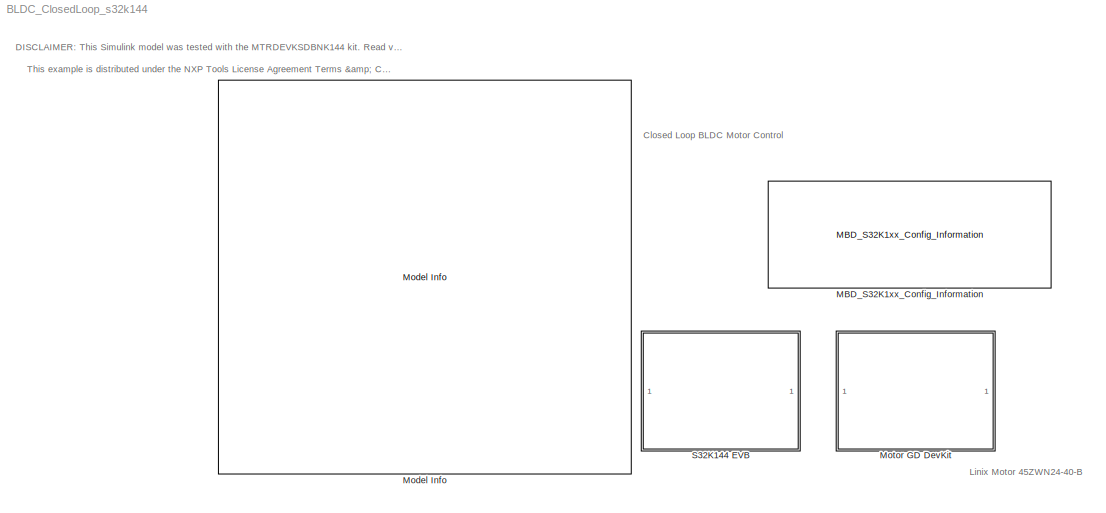
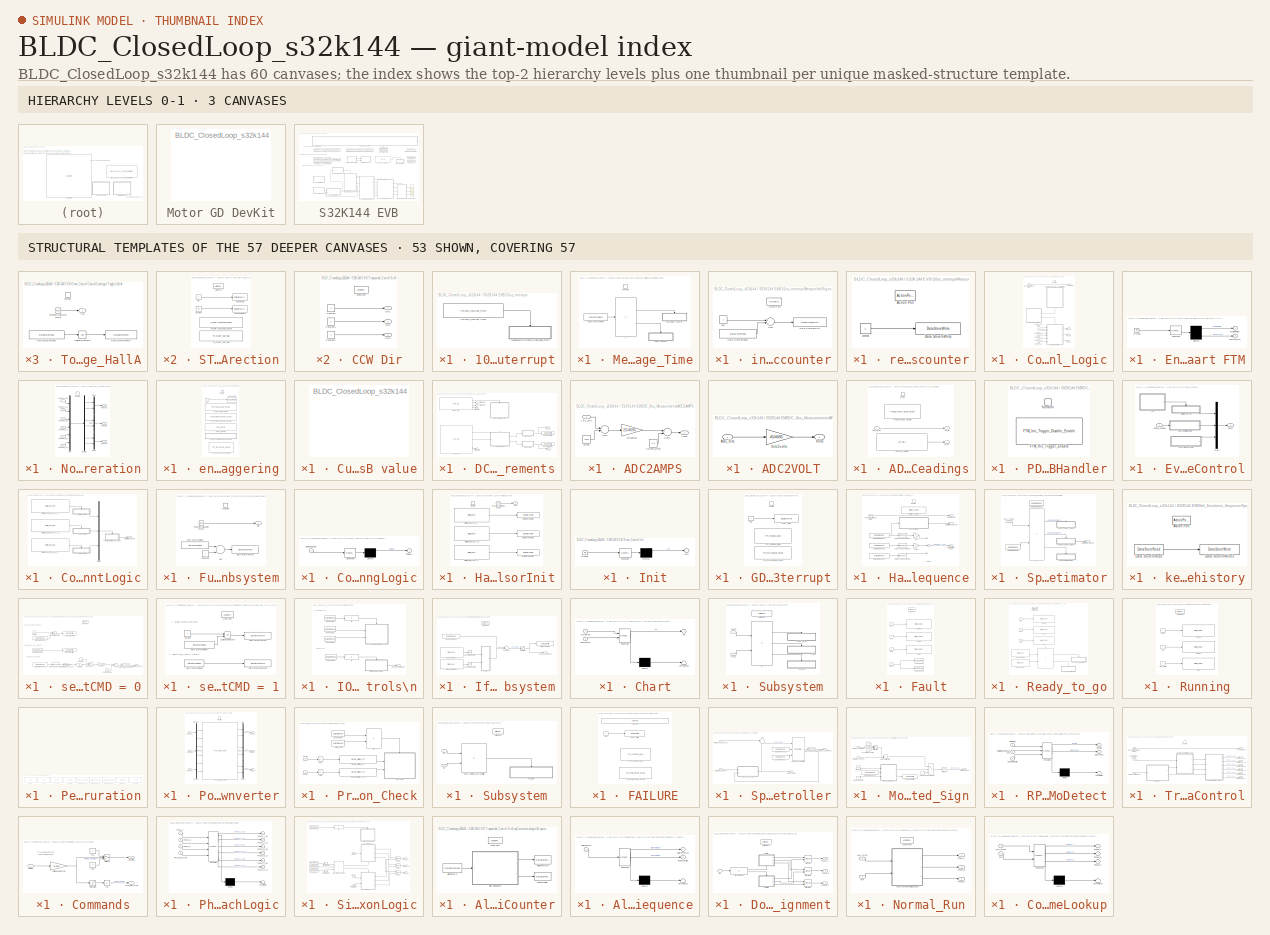
[diagram: thumbnail index - top-2 hierarchy levels (3 canvases) + 53 structural-template representatives of the remaining 57 canvases]
MODEL BLDC_ClosedLoop_s32k144
KIND model
CONFIG InitFcn = mbd_s32k_consistency_checks(bdroot(gcs));
BLOCK [Reference] MBD_S32K1xx_Config_Information  REF=mbd_s32k1xx_ec_toolbox/MBD_S32K1xx_Config_Information
  ADC_PcrCheckEnDis = on
  AMMCLIB_PcrCheckEnDis = on
  CMP_PcrCheckEnDis = on
  CSEc_PcrCheckEnDis = on
  ConfigParams_PcrCheckEnDis = on
  FM_PcrCheckEnDis = on
  FTM_Dual_Edge_Inputs_PcrCheckEnDis = on
  FTM_Hall_Sensor_Inputs_PcrCheckEnDis = on
  FTM_Input_Edge_Inputs_PcrCheckEnDis = on
  FTM_PWM_PcrCheckEnDis = on
  FTM_Quadrature_Inputs_PcrCheckEnDis = on
  FlexCAN_PcrCheckEnDis = on
  FlexIO_PcrCheckEnDis = on
  GPIO_InputPcrCheckEnDis = on
  GPIO_OutputPcrCheckEnDis = on
  LIN_PcrCheckEnDis = on
  LPI2C_PcrCheckEnDis = on
  LPSPI_PcrCheckEnDis = on
  LPTMR_PcrCheckEnDis = on
  LPUART_PcrCheckEnDis = on
  ModelRef_PcrCheckEnDis = on
  MultiThreadCoSim = auto
  PDB0_PcrCheckEnDis = on
  PIT_PcrCheckEnDis = on
  Ports = []
  Profile_PcrCheckEnDis = on
  RTC_PcrCheckEnDis = on
  SBC_PcrCheckEnDis = on
  SID = 2747
  SourceBlock = mbd_s32k1xx_ec_toolbox/MBD_S32K1xx_Config_Information
  SourceType = MBDTBX_EC_S32K
  WDOG_PcrCheckEnDis = on
  config_params = []
  disp_str = Target : S32K144-64KB_SRAM\nPackage : 100-pin\nSystem clock : 80 MHz\nXTAL clock : External 8 MHz\nCompiler : IAR\nTarget Type : FLASH\nDownload Code after build : off\nStep Tick Interrupt Priority : 15
  ds_import_enable = on
  eDMA_PcrCheckEnDis = on
  gcc_target_assemble_opts = -mcpu=cortex-m4 -mthumb -mfloat-abi=hard -mfpu=fpv4-sp-d16 -g
  gcc_target_compile_opts = -mcpu=cortex-m4 -mthumb -mfloat-abi=hard -mfpu=fpv4-sp-d16 -O1 -g -gstrict-dwarf
  gcc_target_default_lcf = on
  gcc_target_link_opts = -mcpu=cortex-m4 -mthumb -mfloat-abi=hard -mfpu=fpv4-sp-d16
  gcc_target_user_lcf = S32K144_64_flash.ld
  ghs_target_assemble_opts = -cpu=cortexm4f -fpu=vfpv4_d16
  ghs_target_compile_opts = -cpu=cortexm4f -thumb -fpu=vfpv4_d16 -fsingle -Ogeneral -Wundef -Wimplicit-int -Wshadow -Wtrigraphs --no_commons --gnu_asm -gnu99 -gdwarf-2 -G
  ghs_target_default_lcf = on
  ghs_target_link_opts = -cpu=cortexm4f -thumb -fpu=vfpv4_d16
  ghs_target_user_lcf = S32K144_64_flash.ld
  iar_target_assemble_opts = --cpu Cortex-M4F --thumb --fpu VFPv4_sp
  iar_target_compile_opts = --cpu=Cortex-M4F --thumb --fpu=VFPv4_sp -Ol -e --debug --dlib_config normal
  iar_target_default_lcf = on
  iar_target_link_opts = --no_exceptions --vfe --inline
  iar_target_user_lcf = S32K144_64_flash.icf
  mbdt_ver = 0
  mcu_steptick_prio = 10
  mcu_steptick_timer = LPIT Channel 0
  mcu_system_clock_freq = 80
  mcu_target_name = S32K144
  mcu_target_package = 64-LQFP
  mcu_target_sram_size = 64KB
  mcu_xtal_freq = External 8
  pil_download_enable = off
  pil_download_rate = 57600
  pil_opensda_drive = Custom
  pil_opensda_drive_custom = D
  pil_uart_instance = 1
  pil_uart_rx = PTC6: [LPUART1_RX | Receive]
  pil_uart_tx = PTC7: [LPUART1_TX | Transmit]
  rbl_com_port = Custom
  rbl_com_port_custom = COM1
  rbl_download_enable = on
  rbl_download_interface = OpenSDA
  rbl_restart_request = off
  rbl_start_delay = 5000
  target_compiler = GCC
  target_memory = FLASH
BLOCK [Reference] Model Info  REF=simulink/Model-Wide\nUtilities/Model Info
  DisplayStringWithTags = Model Name: %<ModelName>\n\nDescription: %<Description>
  Frame = off
  HorizontalTextAlignment = Left
  LeftAlignmentValue = 0.02
  MaskDisplayString = Model Name: BLDC_ClosedLoop_s32k144\\n\\nDescription: Closed Loop BLDC example for S32K144 and DevKit MotorGD. \\nThis Simulink model is designed to work with Linix 45ZWN24-40 Motor and validate\\nthat the motor can be rotated with 6-step commutation method and closed speed loop.\\n\\nFEATURES:\\n- Speed command is read via SW2 (CW direction) or SW3 (CCW direction)\\n- Read hall sensors in interru...<+1440ch>
  Ports = []
  SID = 1384
  SourceBlock = simulink/Model-Wide\nUtilities/Model Info
  SourceProductBaseCode = SL
  SourceProductName = Simulink
  SourceType = CMBlock
BLOCK [SubSystem] Motor GD DevKit
  Ports = []
  RequestExecContextInheritance = off
  SID = 467
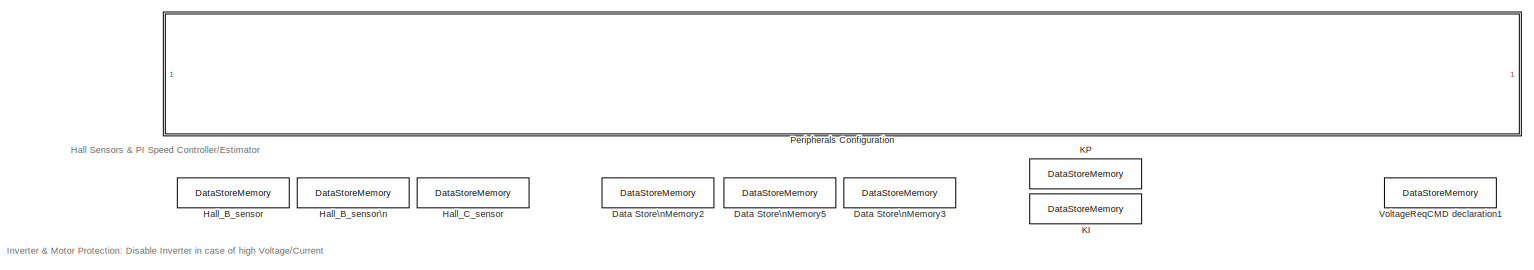
[diagram: S32K144 EVB - part 1/2, full width, top band]
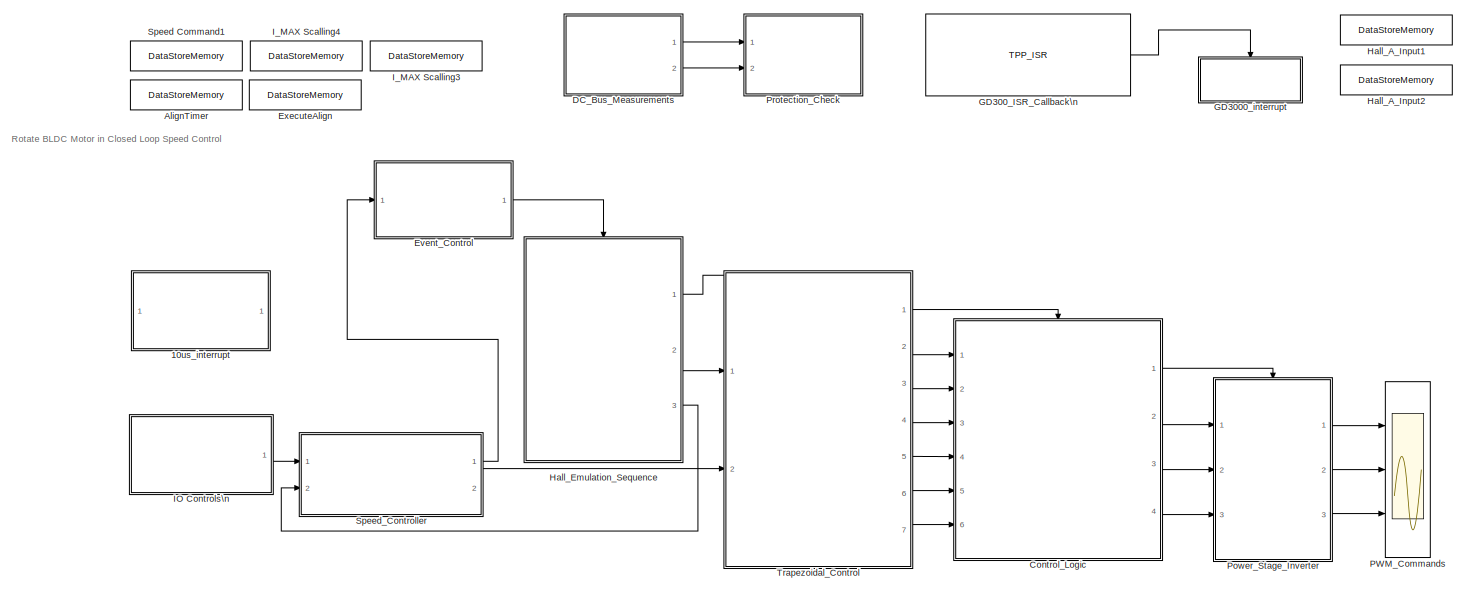
[diagram: S32K144 EVB - part 2/2, full width, middle band]
BLOCK [SubSystem] S32K144 EVB
  Ports = []
  RequestExecContextInheritance = off
  SID = 229
BLOCK [SubSystem] S32K144 EVB/10us_interrupt
  Ports = []
  RequestExecContextInheritance = off
  SID = 3562
BLOCK [SubSystem] S32K144 EVB/10us_interrupt/MeasureHallSignal_HighEdge_Time
  Ports = [0, 0, 0, 1]
  RequestExecContextInheritance = off
  SID = 3563
  TreatAsAtomicUnit = on
BLOCK [DataStoreRead] S32K144 EVB/10us_interrupt/MeasureHallSignal_HighEdge_Time/Data Store\nRead
  DataStoreName = SPD_COUNTS_CMD
  Ports = [0, 1]
  SID = 3565
BLOCK [If] S32K144 EVB/10us_interrupt/MeasureHallSignal_HighEdge_Time/If
  IfExpression = (u1 == 1)
  Ports = [1, 2]
  SID = 3566
BLOCK [TriggerPort] S32K144 EVB/10us_interrupt/MeasureHallSignal_HighEdge_Time/function
  Ports = []
  SID = 3564
  StatesWhenEnabling = held
  TriggerType = function-call
  VariantControl = (inherit)
BLOCK [SubSystem] S32K144 EVB/10us_interrupt/MeasureHallSignal_HighEdge_Time/increment counter
  Ports = [0, 0, 0, 0, 0, 0, 0, 1]
  RequestExecContextInheritance = off
  SID = 3567
  TreatAsAtomicUnit = on
BLOCK [ActionPort] S32K144 EVB/10us_interrupt/MeasureHallSignal_HighEdge_Time/increment counter/Action Port
  ActionPortLabel = if((u1 == 1))
  SID = 3568
BLOCK [DataStoreRead] S32K144 EVB/10us_interrupt/MeasureHallSignal_HighEdge_Time/increment counter/Data Store\nRead1
  DataStoreName = SPD_COUNTS
  Ports = [0, 1]
  SID = 3569
BLOCK [DataStoreWrite] S32K144 EVB/10us_interrupt/MeasureHallSignal_HighEdge_Time/increment counter/Data Store\nWrite
  DataStoreName = SPD_COUNTS
  Ports = [1]
  SID = 3570
BLOCK [Sum] S32K144 EVB/10us_interrupt/MeasureHallSignal_HighEdge_Time/increment counter/Sum
  InputSameDT = off
  OutDataTypeStr = Inherit: Inherit via internal rule
  Ports = [2, 1]
  SID = 3571
  SaturateOnIntegerOverflow = off
BLOCK [Constant] S32K144 EVB/10us_interrupt/MeasureHallSignal_HighEdge_Time/increment counter/one
  OutDataTypeStr = uint32
  SID = 3572
BLOCK [SubSystem] S32K144 EVB/10us_interrupt/MeasureHallSignal_HighEdge_Time/reset counter
  Ports = [0, 0, 0, 0, 0, 0, 0, 1]
  RequestExecContextInheritance = off
  SID = 3573
  TreatAsAtomicUnit = on
BLOCK [ActionPort] S32K144 EVB/10us_interrupt/MeasureHallSignal_HighEdge_Time/reset counter/Action Port
  ActionPortLabel = else
  SID = 3574
BLOCK [DataStoreWrite] S32K144 EVB/10us_interrupt/MeasureHallSignal_HighEdge_Time/reset counter/Data Store\nWrite
  DataStoreName = SPD_COUNTS
  Ports = [1]
  SID = 3575
BLOCK [Constant] S32K144 EVB/10us_interrupt/MeasureHallSignal_HighEdge_Time/reset counter/zero
  OutDataTypeStr = uint32
  SID = 3576
  Value = 0
BLOCK [Reference] S32K144 EVB/10us_interrupt/Periodic_Interrupt_Timer  REF=mbd_s32k1xx_ec_toolbox/Utility Blocks/Periodic_Interrupt_Timer
  MultiThreadCoSim = auto
  Ports = [0, 1]
  SID = 3577
  SourceBlock = mbd_s32k1xx_ec_toolbox/Utility Blocks/Periodic_Interrupt_Timer
  SourceType = timer_s32k_lpit
  channel = 1
  period = 10
  prio = 5
  startCounter = off
BLOCK [DataStoreMemory] S32K144 EVB/AlignTimer
  DataStoreName = AlignTimer
  OutDataTypeStr = uint16
  ReadBeforeWriteMsg = warning
  SID = 3578
  ShowAdditionalParam = off
  WriteAfterReadMsg = warning
  WriteAfterWriteMsg = warning
BLOCK [SubSystem] S32K144 EVB/Control_Logic
  Ports = [6, 4, 0, 1]
  RequestExecContextInheritance = off
  SID = 3579
BLOCK [SubSystem] S32K144 EVB/Control_Logic/Enable PDB and start FTM
  ErrorFcn = Stateflow.Translate.translate
  PermitHierarchicalResolution = ExplicitOnly
  Ports = [0, 2]
  RequestExecContextInheritance = off
  SFBlockType = Chart
  SID = 3588
  TreatAsAtomicUnit = on
BLOCK [Demux] S32K144 EVB/Control_Logic/Enable PDB and start FTM/ Demux 
  Outputs = 2
  Ports = [1, 2]
  SID = 3588::33
BLOCK [Ground] S32K144 EVB/Control_Logic/Enable PDB and start FTM/ Ground 
  SID = 3588::34
BLOCK [S-Function] S32K144 EVB/Control_Logic/Enable PDB and start FTM/ SFunction 
  EnableBusSupport = on
  FunctionName = sf_sfun
  PortCounts = [1 1]
  Ports = [1, 1]
  SFcnIsStateOwnerBlock = off
  SFunctionDeploymentMode = off
  SID = 3588::32
  Tag = Stateflow S-Function BLDC_ClosedLoop_s32k144 2
BLOCK [Outport] S32K144 EVB/Control_Logic/Enable PDB and start FTM/Normal_Op()
  IconDisplay = Port number
  Port = 2
  SID = 3588::9
BLOCK [Outport] S32K144 EVB/Control_Logic/Enable PDB and start FTM/enablePDB()
  IconDisplay = Port number
  SID = 3588::28
BLOCK [Reference] S32K144 EVB/Control_Logic/Function-Call\nGenerator  REF=simulink/Ports &\nSubsystems/Function-Call\nGenerator
  MultiThreadCoSim = auto
  Ports = [0, 1]
  SID = 3589
  SourceBlock = simulink/Ports &\nSubsystems/Function-Call\nGenerator
  SourceProductBaseCode = SL
  SourceProductName = Simulink
  SourceType = Function-Call Generator
  numberOfIterations = 1
  sample_time = -1
BLOCK [Outport] S32K144 EVB/Control_Logic/FunctionCall
  IconDisplay = Port number
  SID = 3663
BLOCK [SubSystem] S32K144 EVB/Control_Logic/Normal Operation
  Ports = [6, 3, 0, 1]
  RequestExecContextInheritance = off
  SID = 3595
  TreatAsAtomicUnit = on
BLOCK [Demux] S32K144 EVB/Control_Logic/Normal Operation/Demux
  DisplayOption = bar
  Outputs = 6
  Ports = [1, 6]
  SID = 4091
BLOCK [Mux] S32K144 EVB/Control_Logic/Normal Operation/Mux
  DisplayOption = bar
  Inputs = 6
  Ports = [6, 1]
  SID = 3591
BLOCK [Mux] S32K144 EVB/Control_Logic/Normal Operation/Mux1
  DisplayOption = bar
  Inputs = 2
  Ports = [2, 1]
  SID = 4092
BLOCK [Mux] S32K144 EVB/Control_Logic/Normal Operation/Mux2
  DisplayOption = bar
  Inputs = 2
  Ports = [2, 1]
  SID = 4093
BLOCK [Mux] S32K144 EVB/Control_Logic/Normal Operation/Mux3
  DisplayOption = bar
  Inputs = 2
  Ports = [2, 1]
  SID = 4094
BLOCK [Outport] S32K144 EVB/Control_Logic/Normal Operation/PhaseA
  IconDisplay = Port number
  SID = 4095
BLOCK [Inport] S32K144 EVB/Control_Logic/Normal Operation/PhaseA_HS
  IconDisplay = Port number
  SID = 4085
BLOCK [Inport] S32K144 EVB/Control_Logic/Normal Operation/PhaseA_LS
  IconDisplay = Port number
  Port = 2
  SID = 4086
BLOCK [Outport] S32K144 EVB/Control_Logic/Normal Operation/PhaseB
  IconDisplay = Port number
  Port = 2
  SID = 4096
BLOCK [Inport] S32K144 EVB/Control_Logic/Normal Operation/PhaseB_HS
  IconDisplay = Port number
  Port = 3
  SID = 4087
BLOCK [Inport] S32K144 EVB/Control_Logic/Normal Operation/PhaseB_LS
  IconDisplay = Port number
  Port = 4
  SID = 4088
BLOCK [Outport] S32K144 EVB/Control_Logic/Normal Operation/PhaseC
  IconDisplay = Port number
  Port = 3
  SID = 4097
BLOCK [Inport] S32K144 EVB/Control_Logic/Normal Operation/PhaseC_HS
  IconDisplay = Port number
  Port = 5
  SID = 4089
BLOCK [Inport] S32K144 EVB/Control_Logic/Normal Operation/PhaseC_LS
  IconDisplay = Port number
  Port = 6
  SID = 4090
BLOCK [TriggerPort] S32K144 EVB/Control_Logic/Normal Operation/function
  Ports = []
  SID = 3597
  StatesWhenEnabling = held
  TriggerType = function-call
  VariantControl = (inherit)
BLOCK [Outport] S32K144 EVB/Control_Logic/PhaseA
  IconDisplay = Port number
  Port = 2
  SID = 3664
BLOCK [Inport] S32K144 EVB/Control_Logic/PhaseA_HS
  IconDisplay = Port number
  SID = 3580
BLOCK [Inport] S32K144 EVB/Control_Logic/PhaseA_LS
  IconDisplay = Port number
  Port = 2
  SID = 3581
BLOCK [Outport] S32K144 EVB/Control_Logic/PhaseB
  IconDisplay = Port number
  Port = 3
  SID = 3665
BLOCK [Inport] S32K144 EVB/Control_Logic/PhaseB_HS
  IconDisplay = Port number
  Port = 3
  SID = 3582
BLOCK [Inport] S32K144 EVB/Control_Logic/PhaseB_LS
  IconDisplay = Port number
  Port = 4
  SID = 3583
BLOCK [Outport] S32K144 EVB/Control_Logic/PhaseC
  IconDisplay = Port number
  Port = 4
  SID = 3666
BLOCK [Inport] S32K144 EVB/Control_Logic/PhaseC_HS
  IconDisplay = Port number
  Port = 5
  SID = 3584
BLOCK [Inport] S32K144 EVB/Control_Logic/PhaseC_LS
  IconDisplay = Port number
  Port = 6
  SID = 3585
BLOCK [SubSystem] S32K144 EVB/Control_Logic/enable_FTM_PDB_ADC_triggering
  Ports = [0, 0, 0, 1]
  RTWSystemCode = Inline
  RequestExecContextInheritance = off
  SID = 3604
  TreatAsAtomicUnit = on
BLOCK [SubSystem] S32K144 EVB/Control_Logic/enable_FTM_PDB_ADC_triggering/Custom code to reload the PDB value
  CopyFcn = cccopyfcn(gcb)
  OpenFcn = ccopenfcn('System Outputs Function')
  Ports = []
  Priority = 4
  RequestExecContextInheritance = off
  SID = 3606
BLOCK [Reference] S32K144 EVB/Control_Logic/enable_FTM_PDB_ADC_triggering/FTM3_PWM_Enable  REF=mbd_s32k1xx_ec_toolbox/Motor Control Blocks/FTM Blocks/FTM_PWM_Disable_Enable
  MultiThreadCoSim = auto
  Ports = []
  Priority = 1
  SID = 4072
  SourceBlock = mbd_s32k1xx_ec_toolbox/Motor Control Blocks/FTM Blocks/FTM_PWM_Disable_Enable
  SourceType = FTM_s32k_pwm_disen
  action = Enable
  ftmModule = 3
BLOCK [Reference] S32K144 EVB/Control_Logic/enable_FTM_PDB_ADC_triggering/FTM_Init_Trigger_Disable_Enable  REF=mbd_s32k1xx_ec_toolbox/Motor Control Blocks/FTM Blocks/FTM_Init_Trigger_Disable_Enable
  MultiThreadCoSim = auto
  Ports = []
  Priority = 2
  SID = 3607
  SourceBlock = mbd_s32k1xx_ec_toolbox/Motor Control Blocks/FTM Blocks/FTM_Init_Trigger_Disable_Enable
  SourceType = FTM_s32k_init_disen
  action = Enable
  ftmModule = 3
BLOCK [Constant] S32K144 EVB/Control_Logic/enable_FTM_PDB_ADC_triggering/ON
  OutDataTypeStr = boolean
  Priority = 1
  SID = 3608
BLOCK [Reference] S32K144 EVB/Control_Logic/enable_FTM_PDB_ADC_triggering/PDB1_Enable  REF=mbd_s32k1xx_ec_toolbox/Motor Control Blocks/PDB Blocks/PDB_Enable
  MultiThreadCoSim = auto
  Ports = []
  Priority = 3
  SID = 3609
  SourceBlock = mbd_s32k1xx_ec_toolbox/Motor Control Blocks/PDB Blocks/PDB_Enable
  SourceType = pdb_s32k_enable_block
  pdbAction = Enable
  pdbModule = 1
BLOCK [DataStoreWrite] S32K144 EVB/Control_Logic/enable_FTM_PDB_ADC_triggering/SpeedCmd 
  DataStoreName = READY
  Ports = [1]
  SID = 3610
BLOCK [Reference] S32K144 EVB/Control_Logic/enable_FTM_PDB_ADC_triggering/TPP_ISR_Enable_Disable\n  REF=mbd_msd_ec_toolbox/TPP/TPP_ISR_Enable_Disable
  MultiThreadCoSim = auto
  Ports = []
  Priority = 4
  SID = 4098
  SourceBlock = mbd_msd_ec_toolbox/TPP/TPP_ISR_Enable_Disable
  SourceType = tpp_s32k_int_en_dis
  mcuTppIntEn = on
  prioInt = 15
  tppInstance = 0
BLOCK [TriggerPort] S32K144 EVB/Control_Logic/enable_FTM_PDB_ADC_triggering/function
  Ports = []
  SID = 3605
  StatesWhenEnabling = held
  TriggerType = function-call
  VariantControl = (inherit)
BLOCK [TriggerPort] S32K144 EVB/Control_Logic/function
  Ports = []
  SID = 3586
  StatesWhenEnabling = held
  TriggerType = function-call
  VariantControl = (inherit)
BLOCK [SubSystem] S32K144 EVB/DC_Bus_Measurements
  Ports = [0, 2]
  RequestExecContextInheritance = off
  SID = 3667
BLOCK [Reference] S32K144 EVB/DC_Bus_Measurements/ADC1_ISR  REF=mbd_s32k1xx_ec_toolbox/Motor Control Blocks/ADC Blocks/ADC_ISR
  MultiThreadCoSim = auto
  Ports = [0, 3]
  SID = 3668
  SourceBlock = mbd_s32k1xx_ec_toolbox/Motor Control Blocks/ADC Blocks/ADC_ISR
  SourceType = adc_s32k_isr_block
  instance = 1
  pri = 1
  sc1n = B
BLOCK [SubSystem] S32K144 EVB/DC_Bus_Measurements/ADC2AMPS
  Ports = [1, 1]
  RequestExecContextInheritance = off
  SID = 3669
BLOCK [Inport] S32K144 EVB/DC_Bus_Measurements/ADC2AMPS/ADC_bits
  IconDisplay = Port number
  SID = 3670
BLOCK [Outport] S32K144 EVB/DC_Bus_Measurements/ADC2AMPS/Amps
  IconDisplay = Port number
  SID = 3676
BLOCK [Constant] S32K144 EVB/DC_Bus_Measurements/ADC2AMPS/Current_offset
  OutDataTypeStr = Inherit: Inherit via back propagation
  SID = 3671
  Value = 0.2
BLOCK [Sum] S32K144 EVB/DC_Bus_Measurements/ADC2AMPS/Sum
  InputSameDT = off
  Inputs = +-
  OutDataTypeStr = single
  Ports = [2, 1]
  SID = 3672
  SaturateOnIntegerOverflow = off
BLOCK [Sum] S32K144 EVB/DC_Bus_Measurements/ADC2AMPS/Sum1
  InputSameDT = off
  Inputs = +-
  OutDataTypeStr = single
  Ports = [2, 1]
  SID = 3673
  SaturateOnIntegerOverflow = off
BLOCK [Gain] S32K144 EVB/DC_Bus_Measurements/ADC2AMPS/bits2amps
  Gain = 25/4095
  OutDataTypeStr = single
  ParamDataTypeStr = Inherit: Inherit via internal rule
  SID = 3674
  SaturateOnIntegerOverflow = off
BLOCK [Constant] S32K144 EVB/DC_Bus_Measurements/ADC2AMPS/offset
  OutDataTypeStr = uint32
  SID = 3675
  Value = 2048
BLOCK [SubSystem] S32K144 EVB/DC_Bus_Measurements/ADC2VOLT
  Ports = [1, 1]
  RequestExecContextInheritance = off
  SID = 3677
BLOCK [Inport] S32K144 EVB/DC_Bus_Measurements/ADC2VOLT/ADC_bits
  IconDisplay = Port number
  SID = 3678
BLOCK [Outport] S32K144 EVB/DC_Bus_Measurements/ADC2VOLT/Volts
  IconDisplay = Port number
  SID = 3680
BLOCK [Gain] S32K144 EVB/DC_Bus_Measurements/ADC2VOLT/bits2volts
  Gain = 45/4095
  OutDataTypeStr = single
  ParamDataTypeStr = Inherit: Inherit via internal rule
  SID = 3679
  SaturateOnIntegerOverflow = off
BLOCK [SubSystem] S32K144 EVB/DC_Bus_Measurements/ADC_readings
  Ports = [1, 2, 0, 1]
  RTWSystemCode = Nonreusable function
  RequestExecContextInheritance = off
  SID = 3681
  TreatAsAtomicUnit = on
BLOCK [Inport] S32K144 EVB/DC_Bus_Measurements/ADC_readings/ADC_DC_BI
  IconDisplay = Port number
  Priority = 3
  SID = 3682
BLOCK [Outport] S32K144 EVB/DC_Bus_Measurements/ADC_readings/DC_BI
  IconDisplay = Port number
  Port = 2
  SID = 3687
BLOCK [Outport] S32K144 EVB/DC_Bus_Measurements/ADC_readings/DC_BV
  IconDisplay = Port number
  SID = 3686
BLOCK [Reference] S32K144 EVB/DC_Bus_Measurements/ADC_readings/FTM_Init_Trigger_Disable  REF=mbd_s32k1xx_ec_toolbox/Motor Control Blocks/FTM Blocks/FTM_Init_Trigger_Disable_Enable
  MultiThreadCoSim = auto
  Ports = []
  Priority = 2
  SID = 3684
  SourceBlock = mbd_s32k1xx_ec_toolbox/Motor Control Blocks/FTM Blocks/FTM_Init_Trigger_Disable_Enable
  SourceType = FTM_s32k_init_disen
  action = Disable
  ftmModule = 3
BLOCK [Reference] S32K144 EVB/DC_Bus_Measurements/ADC_readings/Read_DC_Voltage  REF=mbd_s32k1xx_ec_toolbox/Motor Control Blocks/ADC Blocks/ADC_Start
  MultiThreadCoSim = auto
  Ports = [0, 1]
  Priority = 4
  SID = 3685
  SourceBlock = mbd_s32k1xx_ec_toolbox/Motor Control Blocks/ADC Blocks/ADC_Start
  SourceType = adc_s32k_start_block
  adc_chan = PTB12: [ADC1_SE7 | ADC Single Ended Input]
  adc_r = A
  aien = off
  instance = 1
  mcuTargetUpdate = on
BLOCK [TriggerPort] S32K144 EVB/DC_Bus_Measurements/ADC_readings/function
  Ports = []
  SID = 3683
  StatesWhenEnabling = held
  TriggerType = function-call
  VariantControl = Variant
BLOCK [Outport] S32K144 EVB/DC_Bus_Measurements/DC_BI
  IconDisplay = Port number
  Port = 2
  SID = 3699
BLOCK [Outport] S32K144 EVB/DC_Bus_Measurements/DC_BV
  IconDisplay = Port number
  SID = 3698
BLOCK [DataStoreWrite] S32K144 EVB/DC_Bus_Measurements/Data Store\nWrite1
  DataStoreName = DC_BusVoltage
  Ports = [1]
  SID = 3688
BLOCK [DataStoreWrite] S32K144 EVB/DC_Bus_Measurements/Data Store\nWrite2
  DataStoreName = DC_BusCurrent
  Ports = [1]
  SID = 3689
BLOCK [SubSystem] S32K144 EVB/DC_Bus_Measurements/PDB1_IRQHandler
  Ports = [0, 0, 0, 1]
  RTWSystemCode = Nonreusable function
  RequestExecContextInheritance = off
  SID = 3690
  TreatAsAtomicUnit = on
BLOCK [Reference] S32K144 EVB/DC_Bus_Measurements/PDB1_IRQHandler/FTM_Init_Trigger_Enable  REF=mbd_s32k1xx_ec_toolbox/Motor Control Blocks/FTM Blocks/FTM_Init_Trigger_Disable_Enable
  MultiThreadCoSim = auto
  Ports = []
  SID = 3692
  SourceBlock = mbd_s32k1xx_ec_toolbox/Motor Control Blocks/FTM Blocks/FTM_Init_Trigger_Disable_Enable
  SourceType = FTM_s32k_init_disen
  action = Enable
  ftmModule = 3
BLOCK [TriggerPort] S32K144 EVB/DC_Bus_Measurements/PDB1_IRQHandler/function
  Ports = []
  SID = 3691
  StatesWhenEnabling = held
  TriggerType = function-call
  VariantControl = (inherit)
BLOCK [Reference] S32K144 EVB/DC_Bus_Measurements/PDB1_ISR  REF=mbd_s32k1xx_ec_toolbox/Motor Control Blocks/PDB Blocks/PDB_ISR
  MultiThreadCoSim = auto
  Ports = [0, 4]
  SID = 3693
  SourceBlock = mbd_s32k1xx_ec_toolbox/Motor Control Blocks/PDB Blocks/PDB_ISR
  SourceType = pdb_s32k_isr_block
  pdbModule = 1
  prioInterrupt = 2
  regIdlyIdly = 4999
  regScPdbeie = off
  regScPdbie = on
BLOCK [Terminator] S32K144 EVB/DC_Bus_Measurements/Terminator
  SID = 3694
BLOCK [Terminator] S32K144 EVB/DC_Bus_Measurements/Terminator1
  SID = 3695
BLOCK [Terminator] S32K144 EVB/DC_Bus_Measurements/Terminator2
  SID = 3696
BLOCK [Terminator] S32K144 EVB/DC_Bus_Measurements/Terminator6
  SID = 3697
BLOCK [DataStoreMemory] S32K144 EVB/Data Store\nMemory2
  DataStoreName = HallChangeCount
  OutDataTypeStr = uint32
  ReadBeforeWriteMsg = warning
  SID = 3700
  ShowAdditionalParam = off
  WriteAfterReadMsg = warning
  WriteAfterWriteMsg = warning
BLOCK [DataStoreMemory] S32K144 EVB/Data Store\nMemory3
  DataStoreName = SPD_COUNTS
  OutDataTypeStr = uint32
  RTWStateStorageClass = ExportedGlobal
  ReadBeforeWriteMsg = warning
  SID = 3701
  ShowAdditionalParam = off
  SignalType = real
  WriteAfterReadMsg = warning
  WriteAfterWriteMsg = warning
BLOCK [DataStoreMemory] S32K144 EVB/Data Store\nMemory5
  DataStoreName = SPD_COUNTS_CMD
  OutDataTypeStr = boolean
  RTWStateStorageClass = ExportedGlobal
  ReadBeforeWriteMsg = warning
  SID = 3702
  ShowAdditionalParam = off
  SignalType = real
  WriteAfterReadMsg = warning
  WriteAfterWriteMsg = warning
BLOCK [SubSystem] S32K144 EVB/Event_Control
  Ports = [1, 1]
  RTWFcnNameOpts = Use subsystem name
  RTWFileNameOpts = Use subsystem name
  RequestExecContextInheritance = off
  SID = 3703
  TreatAsAtomicUnit = on
BLOCK [SubSystem] S32K144 EVB/Event_Control/ControlEventLogic
  Ports = [0, 1]
  Priority = 3
  RequestExecContextInheritance = off
  SID = 3705
BLOCK [Reference] S32K144 EVB/Event_Control/ControlEventLogic/Digital_Input_ISR_HALL_A  REF=mbd_s32k1xx_ec_toolbox/GPIO Blocks/Digital_Input_ISR
  MultiThreadCoSim = auto
  Ports = [0, 1]
  SID = 3706
  SourceBlock = mbd_s32k1xx_ec_toolbox/GPIO Blocks/Digital_Input_ISR
  SourceType = gpi_s32k_isr
  gpio_pin = PTD11: [PTD11 | Port D I/O]
  irqc = on either-edge
  prio = 5
BLOCK [Reference] S32K144 EVB/Event_Control/ControlEventLogic/Digital_Input_ISR_HALL_B  REF=mbd_s32k1xx_ec_toolbox/GPIO Blocks/Digital_Input_ISR
  MultiThreadCoSim = auto
  Ports = [0, 1]
  SID = 3707
  SourceBlock = mbd_s32k1xx_ec_toolbox/GPIO Blocks/Digital_Input_ISR
  SourceType = gpi_s32k_isr
  gpio_pin = PTD10: [PTD10 | Port D I/O]
  irqc = on either-edge
  prio = 5
BLOCK [Reference] S32K144 EVB/Event_Control/ControlEventLogic/Digital_Input_ISR_HALL_C  REF=mbd_s32k1xx_ec_toolbox/GPIO Blocks/Digital_Input_ISR
  MultiThreadCoSim = auto
  Ports = [0, 1]
  SID = 3708
  SourceBlock = mbd_s32k1xx_ec_toolbox/GPIO Blocks/Digital_Input_ISR
  SourceType = gpi_s32k_isr
  gpio_pin = PTA1: [PTA1 | Port A I/O]
  irqc = on either-edge
  prio = 5
BLOCK [SubSystem] S32K144 EVB/Event_Control/ControlEventLogic/Function-Call\nSubsystem
  Ports = [0, 1, 0, 1]
  RequestExecContextInheritance = off
  SID = 3709
  TreatAsAtomicUnit = on
BLOCK [Sum] S32K144 EVB/Event_Control/ControlEventLogic/Function-Call\nSubsystem/Add
  AccumDataTypeStr = uint32
  InputSameDT = off
  OutDataTypeStr = Inherit: Inherit via internal rule
  Ports = [2, 1]
  SID = 3711
  SaturateOnIntegerOverflow = off
BLOCK [Outport] S32K144 EVB/Event_Control/ControlEventLogic/Function-Call\nSubsystem/Call
  IconDisplay = Port number
  SID = 3716
BLOCK [Constant] S32K144 EVB/Event_Control/ControlEventLogic/Function-Call\nSubsystem/Constant
  OutDataTypeStr = uint32
  SID = 3712
BLOCK [DataStoreRead] S32K144 EVB/Event_Control/ControlEventLogic/Function-Call\nSubsystem/Data Store\nRead
  DataStoreElements = HallChangeCount
  DataStoreName = HallChangeCount
  Ports = [0, 1]
  SID = 3713
BLOCK [DataStoreWrite] S32K144 EVB/Event_Control/ControlEventLogic/Function-Call\nSubsystem/Data Store\nWrite
  DataStoreElements = HallChangeCount
  DataStoreName = HallChangeCount
  Ports = [1]
  SID = 3714
BLOCK [Reference] S32K144 EVB/Event_Control/ControlEventLogic/Function-Call\nSubsystem/Function-Call\nGenerator  REF=simulink/Ports &\nSubsystems/Function-Call\nGenerator
  MultiThreadCoSim = auto
  Ports = [0, 1]
  SID = 3715
  SourceBlock = simulink/Ports &\nSubsystems/Function-Call\nGenerator
  SourceProductBaseCode = SL
  SourceProductName = Simulink
  SourceType = Function-Call Generator
  numberOfIterations = 1
  sample_time = -1
BLOCK [TriggerPort] S32K144 EVB/Event_Control/ControlEventLogic/Function-Call\nSubsystem/function
  Ports = []
  SID = 3710
  StatesWhenEnabling = held
  TriggerType = function-call
  VariantControl = Variant
BLOCK [Outport] S32K144 EVB/Event_Control/ControlEventLogic/HallStateChange
  IconDisplay = Port number
  SID = 3739
BLOCK [Mux] S32K144 EVB/Event_Control/ControlEventLogic/Mux2
  DisplayOption = bar
  Inputs = 3
  Ports = [3, 1]
  SID = 3717
BLOCK [SubSystem] S32K144 EVB/Event_Control/ControlEventLogic/Toggle_HallA
  Ports = [0, 1, 0, 1]
  RequestExecContextInheritance = off
  SID = 3718
BLOCK [Outport] S32K144 EVB/Event_Control/ControlEventLogic/Toggle_HallA/Call
  IconDisplay = Port number
  SID = 3724
BLOCK [DataStoreRead] S32K144 EVB/Event_Control/ControlEventLogic/Toggle_HallA/Data Store\nRead1
  DataStoreName = Hall_A_sensor
  Ports = [0, 1]
  SID = 3720
BLOCK [DataStoreWrite] S32K144 EVB/Event_Control/ControlEventLogic/Toggle_HallA/Data Store\nWrite1
  DataStoreName = Hall_A_sensor
  Ports = [1]
  SID = 3721
BLOCK [Reference] S32K144 EVB/Event_Control/ControlEventLogic/Toggle_HallA/Function-Call\nGenerator  REF=simulink/Ports &\nSubsystems/Function-Call\nGenerator
  MultiThreadCoSim = auto
  Ports = [0, 1]
  SID = 3722
  SourceBlock = simulink/Ports &\nSubsystems/Function-Call\nGenerator
  SourceProductBaseCode = SL
  SourceProductName = Simulink
  SourceType = Function-Call Generator
  numberOfIterations = 1
  sample_time = -1
BLOCK [Logic] S32K144 EVB/Event_Control/ControlEventLogic/Toggle_HallA/Logical\nOperator
  AllPortsSameDT = off
  Operator = NOT
  OutDataTypeStr = boolean
  Ports = [1, 1]
  SID = 3723
BLOCK [TriggerPort] S32K144 EVB/Event_Control/ControlEventLogic/Toggle_HallA/function
  Ports = []
  SID = 3719
  StatesWhenEnabling = held
  TriggerType = function-call
  VariantControl = Variant
BLOCK [SubSystem] S32K144 EVB/Event_Control/ControlEventLogic/Toggle_HallB
  Ports = [0, 1, 0, 1]
  RequestExecContextInheritance = off
  SID = 3725
BLOCK [Outport] S32K144 EVB/Event_Control/ControlEventLogic/Toggle_HallB/Call
  IconDisplay = Port number
  SID = 3731
BLOCK [DataStoreRead] S32K144 EVB/Event_Control/ControlEventLogic/Toggle_HallB/Data Store\nRead1
  DataStoreName = Hall_B_sensor
  Ports = [0, 1]
  SID = 3727
BLOCK [DataStoreWrite] S32K144 EVB/Event_Control/ControlEventLogic/Toggle_HallB/Data Store\nWrite1
  DataStoreName = Hall_B_sensor
  Ports = [1]
  SID = 3728
BLOCK [Reference] S32K144 EVB/Event_Control/ControlEventLogic/Toggle_HallB/Function-Call\nGenerator  REF=simulink/Ports &\nSubsystems/Function-Call\nGenerator
  MultiThreadCoSim = auto
  Ports = [0, 1]
  SID = 3729
  SourceBlock = simulink/Ports &\nSubsystems/Function-Call\nGenerator
  SourceProductBaseCode = SL
  SourceProductName = Simulink
  SourceType = Function-Call Generator
  numberOfIterations = 1
  sample_time = -1
BLOCK [Logic] S32K144 EVB/Event_Control/ControlEventLogic/Toggle_HallB/Logical\nOperator
  AllPortsSameDT = off
  Operator = NOT
  OutDataTypeStr = boolean
  Ports = [1, 1]
  SID = 3730
BLOCK [TriggerPort] S32K144 EVB/Event_Control/ControlEventLogic/Toggle_HallB/function
  Ports = []
  SID = 3726
  StatesWhenEnabling = held
  TriggerType = function-call
  VariantControl = Variant
BLOCK [SubSystem] S32K144 EVB/Event_Control/ControlEventLogic/Toggle_HallC
  Ports = [0, 1, 0, 1]
  RequestExecContextInheritance = off
  SID = 3732
BLOCK [Outport] S32K144 EVB/Event_Control/ControlEventLogic/Toggle_HallC/Call
  IconDisplay = Port number
  SID = 3738
BLOCK [DataStoreRead] S32K144 EVB/Event_Control/ControlEventLogic/Toggle_HallC/Data Store\nRead1
  DataStoreName = Hall_C_sensor
  Ports = [0, 1]
  SID = 3734
BLOCK [DataStoreWrite] S32K144 EVB/Event_Control/ControlEventLogic/Toggle_HallC/Data Store\nWrite1
  DataStoreName = Hall_C_sensor
  Ports = [1]
  SID = 3735
BLOCK [Reference] S32K144 EVB/Event_Control/ControlEventLogic/Toggle_HallC/Function-Call\nGenerator  REF=simulink/Ports &\nSubsystems/Function-Call\nGenerator
  MultiThreadCoSim = auto
  Ports = [0, 1]
  SID = 3736
  SourceBlock = simulink/Ports &\nSubsystems/Function-Call\nGenerator
  SourceProductBaseCode = SL
  SourceProductName = Simulink
  SourceType = Function-Call Generator
  numberOfIterations = 1
  sample_time = -1
BLOCK [Logic] S32K144 EVB/Event_Control/ControlEventLogic/Toggle_HallC/Logical\nOperator
  AllPortsSameDT = off
  Operator = NOT
  OutDataTypeStr = boolean
  Ports = [1, 1]
  SID = 3737
BLOCK [TriggerPort] S32K144 EVB/Event_Control/ControlEventLogic/Toggle_HallC/function
  Ports = []
  SID = 3733
  StatesWhenEnabling = held
  TriggerType = function-call
  VariantControl = Variant
BLOCK [SubSystem] S32K144 EVB/Event_Control/ControlPollingLogic
  ErrorFcn = Stateflow.Translate.translate
  PermitHierarchicalResolution = ExplicitOnly
  Ports = [1, 1]
  Priority = 2
  RequestExecContextInheritance = off
  SFBlockType = Chart
  SID = 3740
  TreatAsAtomicUnit = on
BLOCK [Demux] S32K144 EVB/Event_Control/ControlPollingLogic/ Demux 
  Outputs = 1
  Ports = [1, 1]
  SID = 3740::28
BLOCK [S-Function] S32K144 EVB/Event_Control/ControlPollingLogic/ SFunction 
  EnableBusSupport = on
  FunctionName = sf_sfun
  Parameters = S0
  PortCounts = [1 1]
  Ports = [1, 1]
  SFcnIsStateOwnerBlock = off
  SFunctionDeploymentMode = off
  SID = 3740::27
  Tag = Stateflow S-Function BLDC_ClosedLoop_s32k144 3
BLOCK [Inport] S32K144 EVB/Event_Control/ControlPollingLogic/SpeedChange
  IconDisplay = Port number
  SID = 3740::11
BLOCK [Outport] S32K144 EVB/Event_Control/ControlPollingLogic/Trigger()
  IconDisplay = Port number
  SID = 3740::12
BLOCK [Outport] S32K144 EVB/Event_Control/Event
  IconDisplay = Port number
  SID = 3753
BLOCK [SubSystem] S32K144 EVB/Event_Control/HallSensorInit
  Ports = [0, 1, 0, 1]
  RTWFcnNameOpts = Use subsystem name
  RTWFileNameOpts = Use subsystem name
  RequestExecContextInheritance = off
  SID = 3741
BLOCK [Outport] S32K144 EVB/Event_Control/HallSensorInit/Call
  IconDisplay = Port number
  SID = 3750
BLOCK [DataStoreWrite] S32K144 EVB/Event_Control/HallSensorInit/Data Store\nWrite
  DataStoreName = Hall_A_sensor
  Ports = [1]
  SID = 3743
BLOCK [DataStoreWrite] S32K144 EVB/Event_Control/HallSensorInit/Data Store\nWrite1
  DataStoreName = Hall_B_sensor
  Ports = [1]
  SID = 3744
BLOCK [DataStoreWrite] S32K144 EVB/Event_Control/HallSensorInit/Data Store\nWrite2
  DataStoreName = Hall_C_sensor
  Ports = [1]
  SID = 3745
BLOCK [Reference] S32K144 EVB/Event_Control/HallSensorInit/Digital_Input_HALL_A  REF=mbd_s32k1xx_ec_toolbox/GPIO Blocks/Digital_Input
  MultiThreadCoSim = auto
  Ports = [0, 1]
  SID = 3746
  SourceBlock = mbd_s32k1xx_ec_toolbox/GPIO Blocks/Digital_Input
  SourceType = gpio_s32k_input
  gpio_pin = PTD11: [PTD11 | Port D I/O]
  passive_filter = off
  pull_resistor = None
BLOCK [Reference] S32K144 EVB/Event_Control/HallSensorInit/Digital_Input_HALL_B  REF=mbd_s32k1xx_ec_toolbox/GPIO Blocks/Digital_Input
  MultiThreadCoSim = auto
  Ports = [0, 1]
  SID = 3747
  SourceBlock = mbd_s32k1xx_ec_toolbox/GPIO Blocks/Digital_Input
  SourceType = gpio_s32k_input
  gpio_pin = PTD10: [PTD10 | Port D I/O]
  passive_filter = off
  pull_resistor = None
BLOCK [Reference] S32K144 EVB/Event_Control/HallSensorInit/Digital_Input_HALL_C  REF=mbd_s32k1xx_ec_toolbox/GPIO Blocks/Digital_Input
  MultiThreadCoSim = auto
  Ports = [0, 1]
  SID = 3748
  SourceBlock = mbd_s32k1xx_ec_toolbox/GPIO Blocks/Digital_Input
  SourceType = gpio_s32k_input
  gpio_pin = PTA1: [PTA1 | Port A I/O]
  passive_filter = off
  pull_resistor = None
BLOCK [Reference] S32K144 EVB/Event_Control/HallSensorInit/Function-Call\nGenerator  REF=simulink/Ports &\nSubsystems/Function-Call\nGenerator
  MultiThreadCoSim = auto
  Ports = [0, 1]
  SID = 3749
  SourceBlock = simulink/Ports &\nSubsystems/Function-Call\nGenerator
  SourceProductBaseCode = SL
  SourceProductName = Simulink
  SourceType = Function-Call Generator
  numberOfIterations = 1
  sample_time = -1
BLOCK [TriggerPort] S32K144 EVB/Event_Control/HallSensorInit/function
  Ports = []
  SID = 3742
  StatesWhenEnabling = held
  TriggerType = function-call
  VariantControl = Variant
BLOCK [SubSystem] S32K144 EVB/Event_Control/Init
  ErrorFcn = Stateflow.Translate.translate
  PermitHierarchicalResolution = ExplicitOnly
  Ports = [0, 1]
  Priority = 1
  RequestExecContextInheritance = off
  SFBlockType = Chart
  SID = 3751
  TreatAsAtomicUnit = on
BLOCK [Demux] S32K144 EVB/Event_Control/Init/ Demux 
  Outputs = 1
  Ports = [1, 1]
  SID = 3751::40
BLOCK [Ground] S32K144 EVB/Event_Control/Init/ Ground 
  SID = 3751::41
BLOCK [S-Function] S32K144 EVB/Event_Control/Init/ SFunction 
  EnableBusSupport = on
  FunctionName = sf_sfun
  PortCounts = [1 1]
  Ports = [1, 1]
  SFcnIsStateOwnerBlock = off
  SFunctionDeploymentMode = off
  SID = 3751::39
  Tag = Stateflow S-Function BLDC_ClosedLoop_s32k144 7
BLOCK [Outport] S32K144 EVB/Event_Control/Init/Init()
  IconDisplay = Port number
  SID = 3751::7
BLOCK [Mux] S32K144 EVB/Event_Control/Mux1
  DisplayOption = bar
  Inputs = 3
  Ports = [3, 1]
  SID = 3752
BLOCK [Inport] S32K144 EVB/Event_Control/Speed_Change
  IconDisplay = Port number
  SID = 3704
BLOCK [DataStoreMemory] S32K144 EVB/ExecuteAlign
  DataStoreName = ExecuteAlign
  InitialValue = 1
  OutDataTypeStr = boolean
  ReadBeforeWriteMsg = warning
  SID = 3754
  ShowAdditionalParam = off
  WriteAfterReadMsg = warning
  WriteAfterWriteMsg = warning
BLOCK [SubSystem] S32K144 EVB/GD3000_interrupt
  Ports = [0, 0, 0, 1]
  RequestExecContextInheritance = off
  SID = 4077
  TreatAsAtomicUnit = on
BLOCK [DataStoreWrite] S32K144 EVB/GD3000_interrupt/FAULT_write
  DataStoreName = FAULT
  Ports = [1]
  SID = 4081
BLOCK [Reference] S32K144 EVB/GD3000_interrupt/FTM_PWM_Disable_Enable  REF=mbd_s32k1xx_ec_toolbox/Motor Control Blocks/FTM Blocks/FTM_PWM_Disable_Enable
  MultiThreadCoSim = auto
  Ports = []
  SID = 4082
  SourceBlock = mbd_s32k1xx_ec_toolbox/Motor Control Blocks/FTM Blocks/FTM_PWM_Disable_Enable
  SourceType = FTM_s32k_pwm_disen
  action = Disable
  ftmModule = 3
BLOCK [Constant] S32K144 EVB/GD3000_interrupt/NOK
  OutDataTypeStr = boolean
  SID = 4083
BLOCK [Reference] S32K144 EVB/GD3000_interrupt/TPP_Functional_Mode  REF=mbd_msd_ec_toolbox/TPP/TPP_Functional_Mode
  MultiThreadCoSim = auto
  Ports = []
  SID = 4084
  SourceBlock = mbd_msd_ec_toolbox/TPP/TPP_Functional_Mode
  SourceType = TPP_functional_mode
  action = Sleep
  tppInstance = 0
BLOCK [TriggerPort] S32K144 EVB/GD3000_interrupt/function
  Ports = []
  SID = 4079
  StatesWhenEnabling = held
  TriggerType = function-call
  VariantControl = Variant
BLOCK [Reference] S32K144 EVB/GD300_ISR_Callback\n  REF=mbd_msd_ec_toolbox/TPP/TPP_ISR
  MultiThreadCoSim = auto
  Ports = [0, 1]
  SID = 4075
  SourceBlock = mbd_msd_ec_toolbox/TPP/TPP_ISR
  SourceType = tpp_s32k_isr
  tppInstance = 0
BLOCK [DataStoreMemory] S32K144 EVB/Hall_A_Input1
  DataStoreName = DC_BusVoltage
  OutDataTypeStr = single
  ReadBeforeWriteMsg = warning
  SID = 3755
  ShowAdditionalParam = off
  WriteAfterReadMsg = warning
  WriteAfterWriteMsg = warning
BLOCK [DataStoreMemory] S32K144 EVB/Hall_A_Input2
  DataStoreName = DC_BusCurrent
  OutDataTypeStr = single
  ReadBeforeWriteMsg = warning
  SID = 3756
  ShowAdditionalParam = off
  WriteAfterReadMsg = warning
  WriteAfterWriteMsg = warning
BLOCK [DataStoreMemory] S32K144 EVB/Hall_B_sensor
  DataStoreName = Hall_A_sensor
  OutDataTypeStr = boolean
  ReadBeforeWriteMsg = warning
  SID = 3757
  ShowAdditionalParam = off
  WriteAfterReadMsg = warning
  WriteAfterWriteMsg = warning
BLOCK [DataStoreMemory] S32K144 EVB/Hall_B_sensor\n
  DataStoreName = Hall_B_sensor
  OutDataTypeStr = boolean
  ReadBeforeWriteMsg = warning
  SID = 3758
  ShowAdditionalParam = off
  WriteAfterReadMsg = warning
  WriteAfterWriteMsg = warning
BLOCK [DataStoreMemory] S32K144 EVB/Hall_C_sensor 
  DataStoreName = Hall_C_sensor
  OutDataTypeStr = boolean
  ReadBeforeWriteMsg = warning
  SID = 3759
  ShowAdditionalParam = off
  WriteAfterReadMsg = warning
  WriteAfterWriteMsg = warning
BLOCK [SubSystem] S32K144 EVB/Hall_Emulation_Sequence
  Ports = [0, 3, 0, 1]
  PropExecContextOutsideSubsystem = on
  RTWFileNameOpts = Use subsystem name
  RTWSystemCode = Nonreusable function
  RequestExecContextInheritance = off
  SID = 3760
BLOCK [Outport] S32K144 EVB/Hall_Emulation_Sequence/Commutation_Sector
  IconDisplay = Port number
  OutDataTypeStr = uint8
  Port = 2
  SID = 3816
BLOCK [DataStoreRead] S32K144 EVB/Hall_Emulation_Sequence/Data Store\nRead1
  DataStoreName = Hall_A_sensor
  Ports = [0, 1]
  SID = 3762
BLOCK [DataStoreRead] S32K144 EVB/Hall_Emulation_Sequence/Data Store\nRead2
  DataStoreName = Hall_B_sensor
  Ports = [0, 1]
  SID = 3763
BLOCK [DataStoreRead] S32K144 EVB/Hall_Emulation_Sequence/Data Store\nRead3
  DataStoreName = Hall_C_sensor
  Ports = [0, 1]
  SID = 3764
BLOCK [DataTypeConversion] S32K144 EVB/Hall_Emulation_Sequence/Data Type Conversion1
  OutDataTypeStr = uint8
  RndMeth = Floor
  SID = 3765
  SaturateOnIntegerOverflow = off
BLOCK [DataTypeConversion] S32K144 EVB/Hall_Emulation_Sequence/Data Type Conversion2
  OutDataTypeStr = uint8
  RndMeth = Floor
  SID = 3766
  SaturateOnIntegerOverflow = off
BLOCK [DataTypeConversion] S32K144 EVB/Hall_Emulation_Sequence/Data Type Conversion3
  OutDataTypeStr = uint8
  RndMeth = Floor
  SID = 3767
  SaturateOnIntegerOverflow = off
BLOCK [Outport] S32K144 EVB/Hall_Emulation_Sequence/Estimated_Speed
  IconDisplay = Port number
  Port = 3
  SID = 3817
BLOCK [Reference] S32K144 EVB/Hall_Emulation_Sequence/Function-Call\nGenerator  REF=simulink/Ports &\nSubsystems/Function-Call\nGenerator
  MultiThreadCoSim = auto
  Ports = [0, 1]
  SID = 3768
  SourceBlock = simulink/Ports &\nSubsystems/Function-Call\nGenerator
  SourceProductBaseCode = SL
  SourceProductName = Simulink
  SourceType = Function-Call Generator
  numberOfIterations = 1
  sample_time = -1
BLOCK [Outport] S32K144 EVB/Hall_Emulation_Sequence/FunctionCall
  IconDisplay = Port number
  SID = 3815
BLOCK [Gain] S32K144 EVB/Hall_Emulation_Sequence/Gain3
  Gain = 4
  OutDataTypeStr = uint8
  SID = 3769
  SaturateOnIntegerOverflow = off
BLOCK [Gain] S32K144 EVB/Hall_Emulation_Sequence/Gain4
  Gain = 2
  OutDataTypeStr = uint8
  SID = 3770
  SaturateOnIntegerOverflow = off
BLOCK [Reference] S32K144 EVB/Hall_Emulation_Sequence/Profiler_Function  REF=mbd_s32k1xx_ec_toolbox/Utility Blocks/Profiler_Function
  MultiThreadCoSim = auto
  Ports = []
  SID = 3771
  SourceBlock = mbd_s32k1xx_ec_toolbox/Utility Blocks/Profiler_Function
  SourceType = profiler_s32k_func
  profile_indx = 0
  showOut = off
BLOCK [SubSystem] S32K144 EVB/Hall_Emulation_Sequence/Speed Estimator
  Ports = [1, 1]
  RequestExecContextInheritance = off
  SID = 3772
BLOCK [DataStoreMemory] S32K144 EVB/Hall_Emulation_Sequence/Speed Estimator/Data Store\nMemory2
  DataStoreName = HALL_A_Input_1
  OutDataTypeStr = boolean
  RTWStateStorageClass = ExportedGlobal
  ReadBeforeWriteMsg = warning
  SID = 3774
  ShowAdditionalParam = off
  SignalType = real
  WriteAfterReadMsg = warning
  WriteAfterWriteMsg = warning
BLOCK [DataStoreRead] S32K144 EVB/Hall_Emulation_Sequence/Speed Estimator/Data Store\nRead
  DataStoreName = HALL_A_Input_1
  Ports = [0, 1]
  SID = 3775
BLOCK [Outport] S32K144 EVB/Hall_Emulation_Sequence/Speed Estimator/Estimated_Speed
  IconDisplay = Port number
  SID = 3813
BLOCK [Inport] S32K144 EVB/Hall_Emulation_Sequence/Speed Estimator/HALL_A_Input
  IconDisplay = Port number
  SID = 3773
BLOCK [If] S32K144 EVB/Hall_Emulation_Sequence/Speed Estimator/If
  ElseIfExpressions = (u1 == 0)&(u2 == 1)
  IfExpression = (u1 == 1)&(u2 == 0)
  NumInputs = 2
  Ports = [2, 3]
  SID = 3776
BLOCK [SubSystem] S32K144 EVB/Hall_Emulation_Sequence/Speed Estimator/keep updating history
  Ports = [0, 0, 0, 0, 0, 0, 0, 1]
  RequestExecContextInheritance = off
  SID = 3777
  TreatAsAtomicUnit = on
BLOCK [ActionPort] S32K144 EVB/Hall_Emulation_Sequence/Speed Estimator/keep updating history/Action Port
  ActionPortLabel = else
  SID = 3778
BLOCK [DataStoreRead] S32K144 EVB/Hall_Emulation_Sequence/Speed Estimator/keep updating history/Data Store\nRead
  DataStoreName = Hall_A_sensor
  Ports = [0, 1]
  SID = 3779
BLOCK [DataStoreWrite] S32K144 EVB/Hall_Emulation_Sequence/Speed Estimator/keep updating history/Data Store\nWrite3
  DataStoreName = HALL_A_Input_1
  Ports = [1]
  SID = 3780
BLOCK [SubSystem] S32K144 EVB/Hall_Emulation_Sequence/Speed Estimator/set SPD_COUNT_CMD = 0
  Ports = [0, 1, 0, 0, 0, 0, 0, 1]
  RequestExecContextInheritance = off
  SID = 3781
  TreatAsAtomicUnit = on
BLOCK [ActionPort] S32K144 EVB/Hall_Emulation_Sequence/Speed Estimator/set SPD_COUNT_CMD = 0/Action Port
  ActionPortLabel = elseif((u1 == 0)&(u2 == 1))
  SID = 3782
BLOCK [Constant] S32K144 EVB/Hall_Emulation_Sequence/Speed Estimator/set SPD_COUNT_CMD = 0/Constant
  OutDataTypeStr = single
  SID = 3783
BLOCK [DataStoreRead] S32K144 EVB/Hall_Emulation_Sequence/Speed Estimator/set SPD_COUNT_CMD = 0/Data Store\nRead
  DataStoreName = Hall_A_sensor
  Ports = [0, 1]
  SID = 3784
BLOCK [DataStoreRead] S32K144 EVB/Hall_Emulation_Sequence/Speed Estimator/set SPD_COUNT_CMD = 0/Data Store\nRead1
  DataStoreName = SPD_COUNTS_CMD
  Ports = [0, 1]
  SID = 3785
BLOCK [DataStoreRead] S32K144 EVB/Hall_Emulation_Sequence/Speed Estimator/set SPD_COUNT_CMD = 0/Data Store\nRead2
  DataStoreName = SPD_COUNTS
  Ports = [0, 1]
  SID = 3786
BLOCK [DataStoreWrite] S32K144 EVB/Hall_Emulation_Sequence/Speed Estimator/set SPD_COUNT_CMD = 0/Data Store\nWrite
  DataStoreName = SPD_COUNTS_CMD
  Ports = [1]
  SID = 3787
BLOCK [DataStoreWrite] S32K144 EVB/Hall_Emulation_Sequence/Speed Estimator/set SPD_COUNT_CMD = 0/Data Store\nWrite3
  DataStoreName = HALL_A_Input_1
  Ports = [1]
  SID = 3788
BLOCK [DataTypeConversion] S32K144 EVB/Hall_Emulation_Sequence/Speed Estimator/set SPD_COUNT_CMD = 0/Data Type Conversion
  OutDataTypeStr = single
  RndMeth = Floor
  SID = 3789
  SaturateOnIntegerOverflow = off
BLOCK [DataTypeConversion] S32K144 EVB/Hall_Emulation_Sequence/Speed Estimator/set SPD_COUNT_CMD = 0/Data Type Conversion1
  OutDataTypeStr = int16
  RndMeth = Floor
  SID = 3790
  SaturateOnIntegerOverflow = off
BLOCK [Outport] S32K144 EVB/Hall_Emulation_Sequence/Speed Estimator/set SPD_COUNT_CMD = 0/Estimated_Speed
  IconDisplay = Port number
  SID = 3799
BLOCK [Gain] S32K144 EVB/Hall_Emulation_Sequence/Speed Estimator/set SPD_COUNT_CMD = 0/InterruptBase 10usec
  Gain = 0.00001
  OutDataTypeStr = single
  ParamDataTypeStr = Inherit: Inherit via internal rule
  SID = 3791
  SaturateOnIntegerOverflow = off
BLOCK [Logic] S32K144 EVB/Hall_Emulation_Sequence/Speed Estimator/set SPD_COUNT_CMD = 0/Logical\nOperator
  AllPortsSameDT = off
  OutDataTypeStr = boolean
  Ports = [2, 1]
  SID = 3792
BLOCK [Product] S32K144 EVB/Hall_Emulation_Sequence/Speed Estimator/set SPD_COUNT_CMD = 0/div
  InputSameDT = off
  Inputs = */
  OutDataTypeStr = single
  Ports = [2, 1]
  RndMeth = Floor
  SID = 3793
  SaturateOnIntegerOverflow = off
BLOCK [Gain] S32K144 EVB/Hall_Emulation_Sequence/Speed Estimator/set SPD_COUNT_CMD = 0/full period
  Gain = 2
  OutDataTypeStr = single
  ParamDataTypeStr = Inherit: Inherit via internal rule
  SID = 3794
  SaturateOnIntegerOverflow = off
BLOCK [Constant] S32K144 EVB/Hall_Emulation_Sequence/Speed Estimator/set SPD_COUNT_CMD = 0/no of poles pairs
  OutDataTypeStr = single
  SID = 3795
  Value = PP
BLOCK [Gain] S32K144 EVB/Hall_Emulation_Sequence/Speed Estimator/set SPD_COUNT_CMD = 0/rps2rpm
  Gain = 60
  OutDataTypeStr = single
  ParamDataTypeStr = Inherit: Inherit via internal rule
  SID = 3796
  SaturateOnIntegerOverflow = off
BLOCK [Constant] S32K144 EVB/Hall_Emulation_Sequence/Speed Estimator/set SPD_COUNT_CMD = 0/setZero
  OutDataTypeStr = boolean
  SID = 3797
  Value = 0
BLOCK [Product] S32K144 EVB/Hall_Emulation_Sequence/Speed Estimator/set SPD_COUNT_CMD = 0/time2frequency
  InputSameDT = off
  Inputs = */
  OutDataTypeStr = single
  Ports = [2, 1]
  RndMeth = Floor
  SID = 3798
  SaturateOnIntegerOverflow = off
BLOCK [SubSystem] S32K144 EVB/Hall_Emulation_Sequence/Speed Estimator/set SPD_COUNT_CMD = 1
  Ports = [0, 0, 0, 0, 0, 0, 0, 1]
  RequestExecContextInheritance = off
  SID = 3803
  TreatAsAtomicUnit = on
BLOCK [ActionPort] S32K144 EVB/Hall_Emulation_Sequence/Speed Estimator/set SPD_COUNT_CMD = 1/Action Port
  ActionPortLabel = if((u1 == 1)&(u2 == 0))
  SID = 3804
BLOCK [DataStoreRead] S32K144 EVB/Hall_Emulation_Sequence/Speed Estimator/set SPD_COUNT_CMD = 1/Data Store\nRead
  DataStoreName = Hall_A_sensor
  Ports = [0, 1]
  SID = 3805
BLOCK [DataStoreRead] S32K144 EVB/Hall_Emulation_Sequence/Speed Estimator/set SPD_COUNT_CMD = 1/Data Store\nRead1
  DataStoreName = SPD_COUNTS_CMD
  Ports = [0, 1]
  SID = 3806
BLOCK [DataStoreWrite] S32K144 EVB/Hall_Emulation_Sequence/Speed Estimator/set SPD_COUNT_CMD = 1/Data Store\nWrite
  DataStoreName = SPD_COUNTS_CMD
  Ports = [1]
  SID = 3807
BLOCK [DataStoreWrite] S32K144 EVB/Hall_Emulation_Sequence/Speed Estimator/set SPD_COUNT_CMD = 1/Data Store\nWrite3
  DataStoreName = HALL_A_Input_1
  Ports = [1]
  SID = 3808
BLOCK [Logic] S32K144 EVB/Hall_Emulation_Sequence/Speed Estimator/set SPD_COUNT_CMD = 1/Logical\nOperator
  AllPortsSameDT = off
  Operator = OR
  OutDataTypeStr = boolean
  Ports = [2, 1]
  SID = 3809
BLOCK [Constant] S32K144 EVB/Hall_Emulation_Sequence/Speed Estimator/set SPD_COUNT_CMD = 1/setOne
  OutDataTypeStr = boolean
  SID = 3810
BLOCK [Sum] S32K144 EVB/Hall_Emulation_Sequence/Sum1
  AccumDataTypeStr = uint8
  InputSameDT = off
  Inputs = +++
  OutDataTypeStr = Inherit: Inherit via internal rule
  Ports = [3, 1]
  SID = 3814
  SaturateOnIntegerOverflow = off
BLOCK [TriggerPort] S32K144 EVB/Hall_Emulation_Sequence/function
  Ports = []
  SID = 3761
  StatesWhenEnabling = held
  TriggerType = function-call
  VariantControl = Variant
BLOCK [SubSystem] S32K144 EVB/IO Controls\n
  Ports = [0, 1]
  RequestExecContextInheritance = off
  SID = 3818
BLOCK [SubSystem] S32K144 EVB/IO Controls\n/If Action\nSubsystem
  Ports = [0, 1, 0, 0, 0, 0, 0, 1]
  RequestExecContextInheritance = off
  SID = 3820
  TreatAsAtomicUnit = on
BLOCK [ActionPort] S32K144 EVB/IO Controls\n/If Action\nSubsystem/Action Port
  ActionPortLabel = if((u1 == 1))
  SID = 3821
BLOCK [SubSystem] S32K144 EVB/IO Controls\n/If Action\nSubsystem/Chart
  ErrorFcn = Stateflow.Translate.translate
  PermitHierarchicalResolution = ExplicitOnly
  Ports = [2, 1]
  RequestExecContextInheritance = off
  SFBlockType = Chart
  SID = 3822
  TreatAsAtomicUnit = on
BLOCK [Demux] S32K144 EVB/IO Controls\n/If Action\nSubsystem/Chart/ Demux 
  Outputs = 1
  Ports = [1, 1]
  SID = 3822::633
BLOCK [S-Function] S32K144 EVB/IO Controls\n/If Action\nSubsystem/Chart/ SFunction 
  EnableBusSupport = on
  FunctionName = sf_sfun
  PortCounts = [2 2]
  Ports = [2, 2]
  SFcnIsStateOwnerBlock = off
  SFunctionDeploymentMode = off
  SID = 3822::632
  Tag = Stateflow S-Function BLDC_ClosedLoop_s32k144 4
BLOCK [Terminator] S32K144 EVB/IO Controls\n/If Action\nSubsystem/Chart/ Terminator 
  SID = 3822::634
BLOCK [Inport] S32K144 EVB/IO Controls\n/If Action\nSubsystem/Chart/Decrement
  IconDisplay = Port number
  Port = 2
  SID = 3822::27
BLOCK [Inport] S32K144 EVB/IO Controls\n/If Action\nSubsystem/Chart/Increment
  IconDisplay = Port number
  SID = 3822::26
BLOCK [Outport] S32K144 EVB/IO Controls\n/If Action\nSubsystem/Chart/out
  IconDisplay = Port number
  SID = 3822::25
BLOCK [Sum] S32K144 EVB/IO Controls\n/If Action\nSubsystem/Increment
  AccumDataTypeStr = Inherit: Same as first input
  InputSameDT = off
  OutDataTypeStr = Inherit: Inherit via back propagation
  OutMax = 12
  OutMin = -12
  Ports = [2, 1]
  SID = 3823
  SaturateOnIntegerOverflow = off
BLOCK [Logic] S32K144 EVB/IO Controls\n/If Action\nSubsystem/Logical\nOperator
  AllPortsSameDT = off
  Operator = NOT
  OutDataTypeStr = boolean
  Ports = [1, 1]
  SID = 3824
BLOCK [Logic] S32K144 EVB/IO Controls\n/If Action\nSubsystem/Logical\nOperator1
  AllPortsSameDT = off
  Operator = NOT
  OutDataTypeStr = boolean
  Ports = [1, 1]
  SID = 3825
BLOCK [DataStoreRead] S32K144 EVB/IO Controls\n/If Action\nSubsystem/Read Command
  DataStoreElements = SpeedReqCMD
  DataStoreName = SpeedReqCMD
  Ports = [0, 1]
  Priority = 0
  SID = 3826
BLOCK [Reference] S32K144 EVB/IO Controls\n/If Action\nSubsystem/SW2_increment  REF=mbd_s32k1xx_ec_toolbox/GPIO Blocks/Digital_Input
  MultiThreadCoSim = auto
  Ports = [0, 1]
  SID = 3827
  SourceBlock = mbd_s32k1xx_ec_toolbox/GPIO Blocks/Digital_Input
  SourceType = gpio_s32k_input
  gpio_pin = PTC12: [PTC12 | Port C I/O]
  passive_filter = off
  pull_resistor = None
BLOCK [Reference] S32K144 EVB/IO Controls\n/If Action\nSubsystem/SW3_increment  REF=mbd_s32k1xx_ec_toolbox/GPIO Blocks/Digital_Input
  MultiThreadCoSim = auto
  Ports = [0, 1]
  SID = 3828
  SourceBlock = mbd_s32k1xx_ec_toolbox/GPIO Blocks/Digital_Input
  SourceType = gpio_s32k_input
  gpio_pin = PTC13: [PTC13 | Port C I/O]
  passive_filter = off
  pull_resistor = None
BLOCK [Saturate] S32K144 EVB/IO Controls\n/If Action\nSubsystem/Saturation
  InputPortMap = u0
  LowerLimit = -5000
  Ports = [1, 1]
  SID = 3829
  UpperLimit = 5000
BLOCK [Outport] S32K144 EVB/IO Controls\n/If Action\nSubsystem/Speed_Command
  IconDisplay = Port number
  SID = 3831
BLOCK [DataStoreWrite] S32K144 EVB/IO Controls\n/If Action\nSubsystem/Store Command
  DataStoreName = SpeedReqCMD
  Ports = [1]
  SID = 3830
BLOCK [If] S32K144 EVB/IO Controls\n/If1
  IfExpression = (u1 == 1)
  Ports = [1, 1]
  SID = 3832
  ShowElse = off
BLOCK [If] S32K144 EVB/IO Controls\n/If2
  IfExpression = (u1 == 1)
  Ports = [1, 1]
  SID = 3833
  ShowElse = off
BLOCK [DataStoreRead] S32K144 EVB/IO Controls\n/SpeedCmd1
  DataStoreName = START
  Ports = [0, 1]
  SID = 3834
BLOCK [DataStoreRead] S32K144 EVB/IO Controls\n/SpeedCmd2
  DataStoreName = FAULT
  Ports = [0, 1]
  SID = 3835
BLOCK [DataStoreRead] S32K144 EVB/IO Controls\n/SpeedCmd3
  DataStoreName = START
  Ports = [0, 1]
  SID = 3836
BLOCK [DataStoreRead] S32K144 EVB/IO Controls\n/SpeedCmd4
  DataStoreName = READY
  Ports = [0, 1]
  SID = 3837
BLOCK [Outport] S32K144 EVB/IO Controls\n/Speed_Command
  IconDisplay = Port number
  SID = 3889
BLOCK [SubSystem] S32K144 EVB/IO Controls\n/Subsystem
  Ports = [2, 0, 0, 0, 0, 0, 0, 1]
  RequestExecContextInheritance = off
  SID = 3838
BLOCK [ActionPort] S32K144 EVB/IO Controls\n/Subsystem/Action Port
  ActionPortLabel = if((u1 == 1))
  SID = 3841
BLOCK [Inport] S32K144 EVB/IO Controls\n/Subsystem/FAULT
  IconDisplay = Port number
  Port = 2
  SID = 3840
BLOCK [SubSystem] S32K144 EVB/IO Controls\n/Subsystem/Fault
  Ports = [0, 0, 0, 0, 0, 0, 0, 1]
  RequestExecContextInheritance = off
  SID = 3842
  TreatAsAtomicUnit = on
BLOCK [ActionPort] S32K144 EVB/IO Controls\n/Subsystem/Fault/Action Port
  ActionPortLabel = elseif((u2 == 1))
  SID = 3843
BLOCK [Reference] S32K144 EVB/IO Controls\n/Subsystem/Fault/BLUE  REF=mbd_s32k1xx_ec_toolbox/GPIO Blocks/Digital_Output
  MultiThreadCoSim = auto
  Ports = [1]
  SID = 3844
  SourceBlock = mbd_s32k1xx_ec_toolbox/GPIO Blocks/Digital_Output
  SourceType = gpio_s32k_output
  drive_strength = Low
  gpio_pin = PTD0: [PTD0 | Port D I/O]
  init_val = Low
BLOCK [Reference] S32K144 EVB/IO Controls\n/Subsystem/Fault/GREEN  REF=mbd_s32k1xx_ec_toolbox/GPIO Blocks/Digital_Output
  MultiThreadCoSim = auto
  Ports = [1]
  SID = 3845
  SourceBlock = mbd_s32k1xx_ec_toolbox/GPIO Blocks/Digital_Output
  SourceType = gpio_s32k_output
  drive_strength = Low
  gpio_pin = PTD16: [PTD16 | Port D I/O]
  init_val = Low
BLOCK [Constant] S32K144 EVB/IO Controls\n/Subsystem/Fault/OFF
  OutDataTypeStr = boolean
  SID = 3846
BLOCK [Constant] S32K144 EVB/IO Controls\n/Subsystem/Fault/OFF 
  OutDataTypeStr = boolean
  SID = 3847
BLOCK [Constant] S32K144 EVB/IO Controls\n/Subsystem/Fault/OFF \n
  OutDataTypeStr = boolean
  SID = 3848
  Value = 0
BLOCK [Constant] S32K144 EVB/IO Controls\n/Subsystem/Fault/ON\n
  OutDataTypeStr = boolean
  SID = 3849
  Value = 0
BLOCK [Reference] S32K144 EVB/IO Controls\n/Subsystem/Fault/RED  REF=mbd_s32k1xx_ec_toolbox/GPIO Blocks/Digital_Output
  MultiThreadCoSim = auto
  Ports = [1]
  SID = 3850
  SourceBlock = mbd_s32k1xx_ec_toolbox/GPIO Blocks/Digital_Output
  SourceType = gpio_s32k_output
  drive_strength = Low
  gpio_pin = PTD15: [PTD15 | Port D I/O]
  init_val = Low
BLOCK [DataStoreWrite] S32K144 EVB/IO Controls\n/Subsystem/Fault/SpeedCmd 
  DataStoreName = START
  Ports = [1]
  SID = 3851
BLOCK [DataStoreWrite] S32K144 EVB/IO Controls\n/Subsystem/Fault/SpeedCmd 1
  DataStoreName = READY
  Ports = [1]
  SID = 3852
BLOCK [If] S32K144 EVB/IO Controls\n/Subsystem/If
  ElseIfExpressions = (u2 == 1)
  IfExpression = (u1 == 0) & (u2 == 0)
  NumInputs = 2
  Ports = [2, 3]
  SID = 3853
BLOCK [SubSystem] S32K144 EVB/IO Controls\n/Subsystem/Ready_to_go
  Ports = [0, 0, 0, 0, 0, 0, 0, 1]
  RequestExecContextInheritance = off
  SID = 3854
  TreatAsAtomicUnit = on
BLOCK [ActionPort] S32K144 EVB/IO Controls\n/Subsystem/Ready_to_go/Action Port
  ActionPortLabel = if((u1 == 0) & (u2 == 0))
  SID = 3855
BLOCK [Reference] S32K144 EVB/IO Controls\n/Subsystem/Ready_to_go/BLUE  REF=mbd_s32k1xx_ec_toolbox/GPIO Blocks/Digital_Output
  MultiThreadCoSim = auto
  Ports = [1]
  SID = 3856
  SourceBlock = mbd_s32k1xx_ec_toolbox/GPIO Blocks/Digital_Output
  SourceType = gpio_s32k_output
  drive_strength = Low
  gpio_pin = PTD0: [PTD0 | Port D I/O]
  init_val = Low
BLOCK [Reference] S32K144 EVB/IO Controls\n/Subsystem/Ready_to_go/GREEN  REF=mbd_s32k1xx_ec_toolbox/GPIO Blocks/Digital_Output
  MultiThreadCoSim = auto
  Ports = [1]
  SID = 3857
  SourceBlock = mbd_s32k1xx_ec_toolbox/GPIO Blocks/Digital_Output
  SourceType = gpio_s32k_output
  drive_strength = Low
  gpio_pin = PTD16: [PTD16 | Port D I/O]
  init_val = Low
BLOCK [If] S32K144 EVB/IO Controls\n/Subsystem/Ready_to_go/If1
  ElseIfExpressions = (u1 == 1) & (u2 == 0)
  IfExpression = (u1 == 0) & (u2 == 1)
  NumInputs = 2
  Ports = [2, 2]
  SID = 3858
  ShowElse = off
BLOCK [Constant] S32K144 EVB/IO Controls\n/Subsystem/Ready_to_go/OFF 
  OutDataTypeStr = boolean
  SID = 3859
BLOCK [Constant] S32K144 EVB/IO Controls\n/Subsystem/Ready_to_go/OFF \n
  OutDataTypeStr = boolean
  SID = 3860
BLOCK [Constant] S32K144 EVB/IO Controls\n/Subsystem/Ready_to_go/ON\n 
  OutDataTypeStr = boolean
  SID = 3861
  Value = 0
BLOCK [Reference] S32K144 EVB/IO Controls\n/Subsystem/Ready_to_go/RED  REF=mbd_s32k1xx_ec_toolbox/GPIO Blocks/Digital_Output
  MultiThreadCoSim = auto
  Ports = [1]
  SID = 3862
  SourceBlock = mbd_s32k1xx_ec_toolbox/GPIO Blocks/Digital_Output
  SourceType = gpio_s32k_output
  drive_strength = Low
  gpio_pin = PTD15: [PTD15 | Port D I/O]
  init_val = Low
BLOCK [SubSystem] S32K144 EVB/IO Controls\n/Subsystem/Ready_to_go/START_CCW_Direction
  Ports = [0, 0, 0, 0, 0, 0, 0, 1]
  RequestExecContextInheritance = off
  SID = 3863
  TreatAsAtomicUnit = on
BLOCK [ActionPort] S32K144 EVB/IO Controls\n/Subsystem/Ready_to_go/START_CCW_Direction/Action Port
  ActionPortLabel = elseif((u1 == 1) & (u2 == 0) )
  SID = 3864
BLOCK [Constant] S32K144 EVB/IO Controls\n/Subsystem/Ready_to_go/START_CCW_Direction/Constant
  OutDataTypeStr = Inherit: Inherit via back propagation
  SID = 3865
  Value = -S0
BLOCK [Constant] S32K144 EVB/IO Controls\n/Subsystem/Ready_to_go/START_CCW_Direction/ON
  OutDataTypeStr = boolean
  SID = 3866
BLOCK [Reference] S32K144 EVB/IO Controls\n/Subsystem/Ready_to_go/START_CCW_Direction/PIT_Counter_Start_Stop  REF=mbd_s32k1xx_ec_toolbox/Utility Blocks/PIT_Counter_Start_Stop
  MultiThreadCoSim = auto
  Ports = []
  SID = 3867
  SourceBlock = mbd_s32k1xx_ec_toolbox/Utility Blocks/PIT_Counter_Start_Stop
  SourceType = timer_s32k_lpit_counter_start_stop
  action = Start
  channel = 1
BLOCK [Reference] S32K144 EVB/IO Controls\n/Subsystem/Ready_to_go/START_CCW_Direction/PIT_Interrupt_Enable_Disable  REF=mbd_s32k1xx_ec_toolbox/Utility Blocks/PIT_Interrupt_Enable_Disable
  MultiThreadCoSim = auto
  Ports = []
  SID = 3868
  SourceBlock = mbd_s32k1xx_ec_toolbox/Utility Blocks/PIT_Interrupt_Enable_Disable
  SourceType = timer_s32k_lpit_isr_control
  channel = 1
  enable = on
BLOCK [DataStoreWrite] S32K144 EVB/IO Controls\n/Subsystem/Ready_to_go/START_CCW_Direction/SpeedCmd 
  DataStoreName = START
  Ports = [1]
  SID = 3869
BLOCK [DataStoreWrite] S32K144 EVB/IO Controls\n/Subsystem/Ready_to_go/START_CCW_Direction/Store Command
  DataStoreName = SpeedReqCMD
  Ports = [1]
  SID = 3870
BLOCK [SubSystem] S32K144 EVB/IO Controls\n/Subsystem/Ready_to_go/START_CW_Direction
  Ports = [0, 0, 0, 0, 0, 0, 0, 1]
  RequestExecContextInheritance = off
  SID = 3871
  TreatAsAtomicUnit = on
BLOCK [ActionPort] S32K144 EVB/IO Controls\n/Subsystem/Ready_to_go/START_CW_Direction/Action Port
  ActionPortLabel = if((u1 == 0) & (u2 == 1) )
  SID = 3872
BLOCK [Constant] S32K144 EVB/IO Controls\n/Subsystem/Ready_to_go/START_CW_Direction/Constant
  OutDataTypeStr = Inherit: Inherit via back propagation
  SID = 3873
  Value = S0
BLOCK [Constant] S32K144 EVB/IO Controls\n/Subsystem/Ready_to_go/START_CW_Direction/ON
  OutDataTypeStr = boolean
  SID = 3874
BLOCK [Reference] S32K144 EVB/IO Controls\n/Subsystem/Ready_to_go/START_CW_Direction/PIT_Counter_Start_Stop  REF=mbd_s32k1xx_ec_toolbox/Utility Blocks/PIT_Counter_Start_Stop
  MultiThreadCoSim = auto
  Ports = []
  SID = 3875
  SourceBlock = mbd_s32k1xx_ec_toolbox/Utility Blocks/PIT_Counter_Start_Stop
  SourceType = timer_s32k_lpit_counter_start_stop
  action = Start
  channel = 1
BLOCK [Reference] S32K144 EVB/IO Controls\n/Subsystem/Ready_to_go/START_CW_Direction/PIT_Interrupt_Enable_Disable  REF=mbd_s32k1xx_ec_toolbox/Utility Blocks/PIT_Interrupt_Enable_Disable
  MultiThreadCoSim = auto
  Ports = []
  SID = 3876
  SourceBlock = mbd_s32k1xx_ec_toolbox/Utility Blocks/PIT_Interrupt_Enable_Disable
  SourceType = timer_s32k_lpit_isr_control
  channel = 1
  enable = on
BLOCK [DataStoreWrite] S32K144 EVB/IO Controls\n/Subsystem/Ready_to_go/START_CW_Direction/SpeedCmd 
  DataStoreName = START
  Ports = [1]
  SID = 3877
BLOCK [DataStoreWrite] S32K144 EVB/IO Controls\n/Subsystem/Ready_to_go/START_CW_Direction/Store Command
  DataStoreName = SpeedReqCMD
  Ports = [1]
  SID = 3878
BLOCK [Reference] S32K144 EVB/IO Controls\n/Subsystem/Ready_to_go/SW2_increment  REF=mbd_s32k1xx_ec_toolbox/GPIO Blocks/Digital_Input
  MultiThreadCoSim = auto
  Ports = [0, 1]
  SID = 3879
  SourceBlock = mbd_s32k1xx_ec_toolbox/GPIO Blocks/Digital_Input
  SourceType = gpio_s32k_input
  gpio_pin = PTC12: [PTC12 | Port C I/O]
  passive_filter = off
  pull_resistor = None
BLOCK [Reference] S32K144 EVB/IO Controls\n/Subsystem/Ready_to_go/SW3_increment  REF=mbd_s32k1xx_ec_toolbox/GPIO Blocks/Digital_Input
  MultiThreadCoSim = auto
  Ports = [0, 1]
  SID = 3880
  SourceBlock = mbd_s32k1xx_ec_toolbox/GPIO Blocks/Digital_Input
  SourceType = gpio_s32k_input
  gpio_pin = PTC13: [PTC13 | Port C I/O]
  passive_filter = off
  pull_resistor = None
BLOCK [SubSystem] S32K144 EVB/IO Controls\n/Subsystem/Running
  Ports = [0, 0, 0, 0, 0, 0, 0, 1]
  RequestExecContextInheritance = off
  SID = 3881
  TreatAsAtomicUnit = on
BLOCK [ActionPort] S32K144 EVB/IO Controls\n/Subsystem/Running/Action Port
  ActionPortLabel = else
  SID = 3882
BLOCK [Reference] S32K144 EVB/IO Controls\n/Subsystem/Running/BLUE  REF=mbd_s32k1xx_ec_toolbox/GPIO Blocks/Digital_Output
  MultiThreadCoSim = auto
  Ports = [1]
  SID = 3883
  SourceBlock = mbd_s32k1xx_ec_toolbox/GPIO Blocks/Digital_Output
  SourceType = gpio_s32k_output
  drive_strength = Low
  gpio_pin = PTD0: [PTD0 | Port D I/O]
  init_val = Low
BLOCK [Reference] S32K144 EVB/IO Controls\n/Subsystem/Running/GREEN  REF=mbd_s32k1xx_ec_toolbox/GPIO Blocks/Digital_Output
  MultiThreadCoSim = auto
  Ports = [1]
  SID = 3884
  SourceBlock = mbd_s32k1xx_ec_toolbox/GPIO Blocks/Digital_Output
  SourceType = gpio_s32k_output
  drive_strength = Low
  gpio_pin = PTD16: [PTD16 | Port D I/O]
  init_val = Low
BLOCK [Constant] S32K144 EVB/IO Controls\n/Subsystem/Running/OFF\n
  OutDataTypeStr = boolean
  SID = 3885
BLOCK [Constant] S32K144 EVB/IO Controls\n/Subsystem/Running/OFF_RED
  OutDataTypeStr = boolean
  SID = 3886
BLOCK [Constant] S32K144 EVB/IO Controls\n/Subsystem/Running/ON 
  OutDataTypeStr = boolean
  SID = 3887
  Value = 0
BLOCK [Reference] S32K144 EVB/IO Controls\n/Subsystem/Running/RED  REF=mbd_s32k1xx_ec_toolbox/GPIO Blocks/Digital_Output
  MultiThreadCoSim = auto
  Ports = [1]
  SID = 3888
  SourceBlock = mbd_s32k1xx_ec_toolbox/GPIO Blocks/Digital_Output
  SourceType = gpio_s32k_output
  drive_strength = Low
  gpio_pin = PTD15: [PTD15 | Port D I/O]
  init_val = Low
BLOCK [Inport] S32K144 EVB/IO Controls\n/Subsystem/START
  IconDisplay = Port number
  SID = 3839
BLOCK [DataStoreMemory] S32K144 EVB/I_MAX Scalling3
  DataStoreName = FAULT
  OutDataTypeStr = boolean
  ReadBeforeWriteMsg = warning
  SID = 3892
  ShowAdditionalParam = off
  WriteAfterReadMsg = warning
  WriteAfterWriteMsg = warning
BLOCK [DataStoreMemory] S32K144 EVB/I_MAX Scalling4
  DataStoreName = START
  OutDataTypeStr = boolean
  ReadBeforeWriteMsg = warning
  SID = 3893
  ShowAdditionalParam = off
  WriteAfterReadMsg = warning
  WriteAfterWriteMsg = warning
BLOCK [DataStoreMemory] S32K144 EVB/KI
  DataStoreName = SpeedController_KI
  InitialValue = 0.7
  OutDataTypeStr = single
  ReadBeforeWriteMsg = warning
  SID = 3894
  ShowAdditionalParam = off
  SignalType = real
  WriteAfterReadMsg = warning
  WriteAfterWriteMsg = warning
BLOCK [DataStoreMemory] S32K144 EVB/KP
  DataStoreName = SpeedController_KP
  InitialValue = 0.2
  OutDataTypeStr = single
  ReadBeforeWriteMsg = warning
  SID = 3895
  ShowAdditionalParam = off
  SignalType = real
  WriteAfterReadMsg = warning
  WriteAfterWriteMsg = warning
BLOCK [Scope] S32K144 EVB/PWM_Commands
  Floating = off
  NumInputPorts = 3
  Ports = [3]
  SID = 3896
  ScopeSpecificationString = Simulink.scopes.TimeScopeBlockCfg('CurrentConfiguration', extmgr.ConfigurationSet(extmgr.Configuration('Core','General UI',true),extmgr.Configuration('Core','Source UI',true),extmgr.Configuration('Sources','WiredSimulink',true),extmgr.Configuration('Visuals','Time Domain',true,'SerializedDisplays',{struct('MinYLimReal','-0.125','MaxYLimReal','1.125','YLabelReal','','MinYLimMag','0.00000','MaxYLimM...<+2842ch>
BLOCK [SubSystem] S32K144 EVB/Peripherals Configuration
  Ports = []
  Priority = 1
  RequestExecContextInheritance = off
  SID = 3897
BLOCK [Reference] S32K144 EVB/Peripherals Configuration/ADC1_IRQ  REF=mbd_s32k1xx_ec_toolbox/Motor Control Blocks/ADC Blocks/ADC_Start
  MultiThreadCoSim = auto
  Ports = []
  Priority = 3
  SID = 3898
  SourceBlock = mbd_s32k1xx_ec_toolbox/Motor Control Blocks/ADC Blocks/ADC_Start
  SourceType = adc_s32k_start_block
  adc_chan = PTD4: [ADC1_SE6 | ADC Single Ended Input]
  adc_r = B
  aien = on
  instance = 1
  mcuTargetUpdate = on
BLOCK [Reference] S32K144 EVB/Peripherals Configuration/ADC_Config  REF=mbd_s32k1xx_ec_toolbox/Motor Control Blocks/ADC Blocks/ADC_Config
  MultiThreadCoSim = auto
  Ports = []
  Priority = 2
  SID = 3899
  SourceBlock = mbd_s32k1xx_ec_toolbox/Motor Control Blocks/ADC Blocks/ADC_Config
  SourceType = adc_s32k_config_block
  acfe = off
  acfgt = off
  acren = off
  adco = off
  adiclk = alternate clock 1
  adiv = input clock
  adtrg = hardware
  avge = off
  avgs = 16 samples
  cv1 = 0
  cv2 = 0
  instance = 1
  mode = 12-bit conversion
  pretrgsel = PDB pre-trigger
  refsel = Vrefh and Vrefl
  show_adv_opts = on
  smplts = 2
  supply_monitoring = off
  swpretrg = Disabled
  trgsel = PDB output
BLOCK [Reference] S32K144 EVB/Peripherals Configuration/Digital_Input_ISR_Enable_HALL_A  REF=mbd_s32k1xx_ec_toolbox/GPIO Blocks/Digital_Input_ISR_Enable_Disable
  MultiThreadCoSim = auto
  Ports = []
  SID = 3900
  SourceBlock = mbd_s32k1xx_ec_toolbox/GPIO Blocks/Digital_Input_ISR_Enable_Disable
  SourceType = gpi_s32k_isr_control
  gpio_pin = PTD11: [PTD11 | Port D I/O]
  irqc = on either-edge
BLOCK [Reference] S32K144 EVB/Peripherals Configuration/Digital_Input_ISR_Enable_HALL_B  REF=mbd_s32k1xx_ec_toolbox/GPIO Blocks/Digital_Input_ISR_Enable_Disable
  MultiThreadCoSim = auto
  Ports = []
  SID = 3901
  SourceBlock = mbd_s32k1xx_ec_toolbox/GPIO Blocks/Digital_Input_ISR_Enable_Disable
  SourceType = gpi_s32k_isr_control
  gpio_pin = PTD10: [PTD10 | Port D I/O]
  irqc = on either-edge
BLOCK [Reference] S32K144 EVB/Peripherals Configuration/Digital_Input_ISR_Enable_HALL_C  REF=mbd_s32k1xx_ec_toolbox/GPIO Blocks/Digital_Input_ISR_Enable_Disable
  MultiThreadCoSim = auto
  Ports = []
  SID = 3902
  SourceBlock = mbd_s32k1xx_ec_toolbox/GPIO Blocks/Digital_Input_ISR_Enable_Disable
  SourceType = gpi_s32k_isr_control
  gpio_pin = PTA1: [PTA1 | Port A I/O]
  irqc = on either-edge
BLOCK [Reference] S32K144 EVB/Peripherals Configuration/FreeMaster_Config  REF=mbd_s32k1xx_ec_toolbox/Utility Blocks/FreeMaster_Config
  MultiThreadCoSim = auto
  Ports = []
  SID = 3903
  SourceBlock = mbd_s32k1xx_ec_toolbox/Utility Blocks/FreeMaster_Config
  SourceType = fm_s32k_config
  baudrate = 115200
  comm_buffer_size = 255
  comm_buffer_size_auto = on
  comm_rqueue_size = 32
  comm_rqueue_size_default = on
  interface = LPUART1
  isr_prio = 5
  max_rec_vars = 8
  max_scope_vars = 8
  mode = Short Interrupt
  rec_buff_size = 2048
  rec_timebase = 1
  rec_timebase_unit = milliseconds
  rxd = PTC6: [LPUART1_RX | Receive]
  show_adv_opts = on
  txd = PTC7: [LPUART1_TX | Transmit]
  use_recorder = on
  use_scope = on
BLOCK [Reference] S32K144 EVB/Peripherals Configuration/GD3000_Config  REF=mbd_msd_ec_toolbox/TPP/TPP_Config
  MultiThreadCoSim = auto
  Ports = []
  Priority = 1
  SID = 4071
  SourceBlock = mbd_msd_ec_toolbox/TPP/TPP_Config
  SourceType = tpp_s32k_config
  desatEvent = off
  desatMode = on
  framingEvent = on
  fullonMode = off
  initTppNow = on
  lockMode = off
  mcuTppIntEn = off
  overcurrentEvent = on
  overtempEvent = on
  phaseEvent = off
  prioInt = 15
  resetEvent = on
  tppCsPin = PTB5: [PTB5 | Port B I/O]
  tppDeadtime = 500
  tppEn1Pin = PTA2: [PTA2 | Port A I/O]
  tppEn2Pin = PTA2: [PTA2 | Port A I/O]
  tppFirstChHS = on
  tppInstance = 0
  tppIntPin = PTE10: [PTE10 | Port E I/O]
  tppPair0_1 = on
  tppPair2_3 = on
  tppPair4_5 = on
  tppPair6_7 = off
  tppPwmModule = 3
  tppRstPin = PTA3: [PTA3 | Port A I/O]
  tppSpiInst = 0
  vlsEvent = on
  writeErrEvent = on
BLOCK [Reference] S32K144 EVB/Peripherals Configuration/LPSPI_Config\n  REF=mbd_s32k1xx_ec_toolbox/Communication Blocks/SPI Blocks/LPSPI_Config\n
  BaudRate = 1000000
  BitOrder = MSB first
  CPHA = 1
  CPOL = 0
  ContinuousTransfer = off
  InstanceNumber = 0
  MultiThreadCoSim = auto
  PCSPol = ActiveLow
  Ports = []
  Role = Master
  SID = 3904
  ShowAdvanced = on
  SourceBlock = mbd_s32k1xx_ec_toolbox/Communication Blocks/SPI Blocks/LPSPI_Config\n
  SourceType = lpspi_s32k_config
  TransferSize = 8
  WhichPCS = 1
  pcs0 = None
  pcs1 = PTB5: [LPSPI0_PCS1 | Peripheral Chip Select 1]
  pcs2 = None
  pcs3 = None
  sck = PTB2: [LPSPI0_SCK | LPSPI Serial Clock I/O]
  sin = PTB3: [LPSPI0_SIN | LPSPI Serial Data Input]
  sout = PTB4: [LPSPI0_SOUT | LPSPI Serial Data Output]
BLOCK [Reference] S32K144 EVB/Peripherals Configuration/PDB_Config  REF=mbd_s32k1xx_ec_toolbox/Motor Control Blocks/PDB Blocks/PDB_Config
  MultiThreadCoSim = auto
  Ports = []
  Priority = 1
  SID = 3905
  SourceBlock = mbd_s32k1xx_ec_toolbox/Motor Control Blocks/PDB Blocks/PDB_Config
  SourceType = pdb_s32k_config_block
  enable_pdb_init = off
  pdbModule = 1
  regCh0C1Bb0 = off
  regCh0C1Bb1 = off
  regCh0C1Bb2 = off
  regCh0C1Bb3 = off
  regCh0C1Bb4 = off
  regCh0C1Bb5 = off
  regCh0C1Bb6 = off
  regCh0C1Bb7 = off
  regCh0C1En0 = on
  regCh0C1En1 = on
  regCh0C1En2 = off
  regCh0C1En3 = off
  regCh0C1En4 = off
  regCh0C1En5 = off
  regCh0C1En6 = off
  regCh0C1En7 = off
  regCh0C1Tos0 = Pre-trigger is in delay mode
  regCh0C1Tos1 = Pre-trigger is in delay mode
  regCh0C1Tos2 = Pre-trigger is in delay mode
  regCh0C1Tos3 = Pre-trigger is in delay mode
  regCh0C1Tos4 = Pre-trigger is in delay mode
  regCh0C1Tos5 = Pre-trigger is in delay mode
  regCh0C1Tos6 = Pre-trigger is in delay mode
  regCh0C1Tos7 = Pre-trigger is in delay mode
  regCh0DlyDly0 = 0
  regCh0DlyDly1 = 200
  regCh0DlyDly2 = 0
  regCh0DlyDly3 = 0
  regCh0DlyDly4 = 0
  regCh0DlyDly5 = 0
  regCh0DlyDly6 = 0
  regCh0DlyDly7 = 0
  regCh1C1Bb0 = off
  regCh1C1Bb1 = off
  regCh1C1Bb2 = off
  regCh1C1Bb3 = off
  regCh1C1Bb4 = off
  regCh1C1Bb5 = off
  regCh1C1Bb6 = off
  regCh1C1Bb7 = off
  regCh1C1En0 = off
  regCh1C1En1 = off
  regCh1C1En2 = off
  regCh1C1En3 = off
  regCh1C1En4 = off
  regCh1C1En5 = off
  regCh1C1En6 = off
  regCh1C1En7 = off
  regCh1C1Tos0 = Pre-trigger is in delay mode
  regCh1C1Tos1 = Pre-trigger is in delay mode
  regCh1C1Tos2 = Pre-trigger is in delay mode
  regCh1C1Tos3 = Pre-trigger is in delay mode
  regCh1C1Tos4 = Pre-trigger is in delay mode
  regCh1C1Tos5 = Pre-trigger is in delay mode
  regCh1C1Tos6 = Pre-trigger is in delay mode
  regCh1C1Tos7 = Pre-trigger is in delay mode
  regCh1DlyDly0 = 100
  regCh1DlyDly1 = 200
  regCh1DlyDly2 = 300
  regCh1DlyDly3 = 400
  regCh1DlyDly4 = 500
  regCh1DlyDly5 = 600
  regCh1DlyDly6 = 700
  regCh1DlyDly7 = 800
  regModModulus = 5000
  regPo0DlyDly1 = 0
  regPo0DlyDly2 = 1000
  regPoenPoen0 = off
  regScCont = One-Shot
  regScMult = 1
  regScPrescaler = 1
  regScTrgsel = External (TRGMUX_PDB_TRIG)
  show_adv_opts = on
  trgMuxSel = FTM3 Initialize Trigger
  trgMuxSelPin = PTB5: [TRGMUX_IN0 | Trigger Mux Input]
BLOCK [SubSystem] S32K144 EVB/Power_Stage_Inverter
  Ports = [3, 3, 0, 1]
  RTWSystemCode = Nonreusable function
  RequestExecContextInheritance = off
  SID = 3906
  TreatAsAtomicUnit = on
BLOCK [Demux] S32K144 EVB/Power_Stage_Inverter/Demux1
  DisplayOption = bar
  Outputs = 2
  Ports = [1, 2]
  SID = 3911
BLOCK [Demux] S32K144 EVB/Power_Stage_Inverter/Demux2
  DisplayOption = bar
  Outputs = 2
  Ports = [1, 2]
  SID = 3912
BLOCK [Demux] S32K144 EVB/Power_Stage_Inverter/Demux3
  DisplayOption = bar
  Outputs = 2
  Ports = [1, 2]
  SID = 3913
BLOCK [Reference] S32K144 EVB/Power_Stage_Inverter/FTM_PWM_Config  REF=mbd_s32k1xx_ec_toolbox/Motor Control Blocks/FTM Blocks/FTM_PWM_Config
  MultiThreadCoSim = auto
  Ports = [6, 6]
  SID = 3914
  SourceBlock = mbd_s32k1xx_ec_toolbox/Motor Control Blocks/FTM Blocks/FTM_PWM_Config
  SourceType = FTM_s32k_pwm_config_block
  chTrigger0 = off
  chTrigger1 = off
  chTrigger2 = off
  chTrigger3 = off
  chTrigger4 = off
  chTrigger5 = off
  chTrigger6 = off
  chTrigger7 = off
  chan0En = on
  chan0Type = Independent
  chan2En = on
  chan2Type = Independent
  chan4En = on
  chan4Type = Independent
  chan6En = off
  chan6Type = Independent
  chnMatch0 = off
  chnMatch1 = off
  chnMatch2 = off
  chnMatch3 = off
  chnMatch4 = off
  chnMatch5 = off
  chnMatch6 = off
  chnMatch7 = off
  deadtimeNs = 0
  deadtimePrescaler = Divide by 1
  deadtimeTicks = 0
  deadtimeUnits = Nanoseconds
  dutyCycleCh0 = 0
  dutyCycleCh1 = 0
  dutyCycleCh2 = 0
  dutyCycleCh3 = 0
  dutyCycleCh4 = 0
  dutyCycleCh5 = 0
  dutyCycleCh6 = 0.25
  dutyCycleCh7 = 0.25
  dutyCycleSim = on
  fault_disen_0 = off
  fault_disen_1 = off
  fault_disen_2 = off
  fault_disen_3 = off
  fault_filter_0 = off
  fault_filter_1 = off
  fault_filter_2 = off
  fault_filter_3 = off
  fault_pin_0 = None
  fault_pin_1 = None
  fault_pin_2 = None
  fault_pin_3 = None
  fault_polarity_0 = Active High
  fault_polarity_1 = Active high
  fault_polarity_2 = Active high
  fault_polarity_3 = Active high
  ftmMode = Center-Aligned PWM
  ftmModule = 3
  ftmPeriod = 4000
  ftmPrescaler = Divide by 1
  ftmPwmUnits = Hz
  ftmSourceClock = 80 MHz
  initTrigger = off
  mcuTargetUpdate = on
  outFrequency = 20000
  outputComplem0 = Main duplicated
  outputComplem2 = Main duplicated
  outputComplem4 = Main duplicated
  outputComplem6 = Main duplicated
  outputLevel0 = Low
  outputLevel1 = Low
  outputLevel2 = Low
  outputLevel3 = Low
  outputLevel4 = Low
  outputLevel5 = Low
  outputLevel6 = Low
  outputLevel7 = Low
  pinFtmCh0 = PTB8: [FTM3_CH0 | FTM Channel]
  pinFtmCh1 = PTB9: [FTM3_CH1 | FTM Channel]
  pinFtmCh2 = PTB10: [FTM3_CH2 | FTM Channel]
  pinFtmCh3 = PTB11: [FTM3_CH3 | FTM Channel]
  pinFtmCh4 = PTC10: [FTM3_CH4 | FTM Channel]
  pinFtmCh5 = PTC11: [FTM3_CH5 | FTM Channel]
  pinFtmCh6 = PTC12: [FTM3_CH6 | FTM Channel]
  pinFtmCh7 = None
  pinPolCh0 = Active Low
  pinPolCh1 = Active High
  pinPolCh2 = Active Low
  pinPolCh3 = Active High
  pinPolCh4 = Active Low
  pinPolCh5 = Active High
  pinPolCh6 = Active Low
  pinPolCh7 = Active Low
  pwmFaultClearing = Fault control disabled
  pwmFaultFilterValue = 0
  pwmFaultInterrupt = off
  pwmFaultPinState = Safe Value
  pwmFaultPriority = 15
  pwmFaultProtection = off
  pwmSyncAutoClear = off
  pwmSyncCounterInitial = PWM Syncronization
  pwmSyncHwRouting = TRGMUX_FTM7
  pwmSyncInvert = PWM Syncronization
  pwmSyncMaxLoad = on
  pwmSyncMinLoad = off
  pwmSyncOutControl = PWM Syncronization
  pwmSyncOutMask = PWM Syncronization
  pwmSyncPoints = Wait Loading Points
  pwmSyncTrg = Software trigger
  pwmSyncTrg0 = off
  pwmSyncTrg1 = off
  pwmSyncTrg2 = off
  reloadEnable = off
  reloadFrequency = 0
  reloadHCR = 0
  reloadHalfCycle = off
  reloadPriority = 15
  showAdvOpt = on
  startAfterInit = off
  swcontrol_enable = off
BLOCK [Mux] S32K144 EVB/Power_Stage_Inverter/Mux
  DisplayOption = bar
  Inputs = 2
  Ports = [2, 1]
  SID = 3915
BLOCK [Mux] S32K144 EVB/Power_Stage_Inverter/Mux1
  DisplayOption = bar
  Inputs = 2
  Ports = [2, 1]
  SID = 3916
BLOCK [Mux] S32K144 EVB/Power_Stage_Inverter/Mux2
  DisplayOption = bar
  Inputs = 2
  Ports = [2, 1]
  SID = 3917
BLOCK [Inport] S32K144 EVB/Power_Stage_Inverter/PhaseA
  IconDisplay = Port number
  SID = 3907
BLOCK [Inport] S32K144 EVB/Power_Stage_Inverter/PhaseB
  IconDisplay = Port number
  Port = 2
  SID = 3908
BLOCK [Inport] S32K144 EVB/Power_Stage_Inverter/PhaseC
  IconDisplay = Port number
  Port = 3
  SID = 3909
BLOCK [TriggerPort] S32K144 EVB/Power_Stage_Inverter/function
  Ports = []
  SID = 3910
  StatesWhenEnabling = held
  TriggerType = function-call
  VariantControl = Variant
BLOCK [Outport] S32K144 EVB/Power_Stage_Inverter/pwm_a
  IconDisplay = Port number
  SID = 3918
BLOCK [Outport] S32K144 EVB/Power_Stage_Inverter/pwm_b
  IconDisplay = Port number
  Port = 2
  SID = 3919
BLOCK [Outport] S32K144 EVB/Power_Stage_Inverter/pwm_c
  IconDisplay = Port number
  Port = 3
  SID = 3920
BLOCK [SubSystem] S32K144 EVB/Protection_Check
  Ports = [2]
  RequestExecContextInheritance = off
  SID = 3921
BLOCK [DataStoreRead] S32K144 EVB/Protection_Check/ ALIGN_TMR
  DataStoreName = ExecuteAlign
  Ports = [0, 1]
  SID = 3924
BLOCK [Abs] S32K144 EVB/Protection_Check/Abs
  SID = 3925
  SaturateOnIntegerOverflow = off
BLOCK [Abs] S32K144 EVB/Protection_Check/Abs1
  SID = 3926
  SaturateOnIntegerOverflow = off
BLOCK [Inport] S32K144 EVB/Protection_Check/DC_BI
  IconDisplay = Port number
  Port = 2
  SID = 3923
BLOCK [Inport] S32K144 EVB/Protection_Check/DC_BV
  IconDisplay = Port number
  SID = 3922
BLOCK [Reference] S32K144 EVB/Protection_Check/GDFLIB_FilterMA_FLT  REF=ammclib_bam_s32k14x/GDFLIB/bam_flt/GDFLIB_FilterMA_FLT  (lib defined in mdl_f341c9dd7fd9)
  Ports = [1, 1]
  SID = 3927
  SourceBlock = ammclib_bam_s32k14x/GDFLIB/bam_flt/GDFLIB_FilterMA_FLT
  SourceType = GDFLIB_FilterMA_FLT
  fltLambda = 10
BLOCK [Reference] S32K144 EVB/Protection_Check/GDFLIB_FilterMA_FLT1  REF=ammclib_bam_s32k14x/GDFLIB/bam_flt/GDFLIB_FilterMA_FLT  (lib defined in mdl_f341c9dd7fd9)
  Ports = [1, 1]
  SID = 3928
  SourceBlock = ammclib_bam_s32k14x/GDFLIB/bam_flt/GDFLIB_FilterMA_FLT
  SourceType = GDFLIB_FilterMA_FLT
  fltLambda = 10
BLOCK [If] S32K144 EVB/Protection_Check/If1
  IfExpression = (u1 == 1) & (u2 == 0)
  NumInputs = 2
  Ports = [2, 1]
  SID = 3929
  ShowElse = off
BLOCK [DataStoreRead] S32K144 EVB/Protection_Check/SpeedCmd1
  DataStoreName = START
  Ports = [0, 1]
  SID = 3930
BLOCK [SubSystem] S32K144 EVB/Protection_Check/Subsystem
  Ports = [2, 0, 0, 0, 0, 0, 0, 1]
  RequestExecContextInheritance = off
  SID = 3931
BLOCK [ActionPort] S32K144 EVB/Protection_Check/Subsystem/Action Port
  ActionPortLabel = if((u1 == 1) & (u2 == 0))
  SID = 3934
BLOCK [If] S32K144 EVB/Protection_Check/Subsystem/Check_Voltage_Current_limits
  IfExpression = (u1 < VDC_UNDERVOLTAGE) | (u1 > VDC_OVERVOLTAGE) | (u2 > IDC_OVERCURRENT)
  NumInputs = 2
  Ports = [2, 1]
  SID = 3935
  ShowElse = off
BLOCK [SubSystem] S32K144 EVB/Protection_Check/Subsystem/FAILURE
  Ports = [0, 0, 0, 0, 0, 0, 0, 1]
  RequestExecContextInheritance = off
  SID = 3936
  TreatAsAtomicUnit = on
BLOCK [ActionPort] S32K144 EVB/Protection_Check/Subsystem/FAILURE/Action Port
  ActionPortLabel = if((u1 < VDC_UNDERVOLTAGE) | (u1 > VDC_OVERVOLTAGE) | (u2 > IDC_OVERCURRENT))
  SID = 3937
BLOCK [DataStoreWrite] S32K144 EVB/Protection_Check/Subsystem/FAILURE/FAULT_write
  DataStoreName = FAULT
  Ports = [1]
  SID = 3940
BLOCK [Reference] S32K144 EVB/Protection_Check/Subsystem/FAILURE/FTM_PWM_Disable_Enable  REF=mbd_s32k1xx_ec_toolbox/Motor Control Blocks/FTM Blocks/FTM_PWM_Disable_Enable
  MultiThreadCoSim = auto
  Ports = []
  SID = 3941
  SourceBlock = mbd_s32k1xx_ec_toolbox/Motor Control Blocks/FTM Blocks/FTM_PWM_Disable_Enable
  SourceType = FTM_s32k_pwm_disen
  action = Disable
  ftmModule = 3
BLOCK [Constant] S32K144 EVB/Protection_Check/Subsystem/FAILURE/NOK
  OutDataTypeStr = boolean
  SID = 3944
BLOCK [Reference] S32K144 EVB/Protection_Check/Subsystem/FAILURE/TPP_Functional_Mode  REF=mbd_msd_ec_toolbox/TPP/TPP_Functional_Mode
  MultiThreadCoSim = auto
  Ports = []
  SID = 4073
  SourceBlock = mbd_msd_ec_toolbox/TPP/TPP_Functional_Mode
  SourceType = TPP_functional_mode
  action = Sleep
  tppInstance = 0
BLOCK [Inport] S32K144 EVB/Protection_Check/Subsystem/In1
  IconDisplay = Port number
  SID = 3932
BLOCK [Inport] S32K144 EVB/Protection_Check/Subsystem/In2
  IconDisplay = Port number
  Port = 2
  SID = 3933
BLOCK [DataStoreMemory] S32K144 EVB/Speed Command1
  DataStoreName = READY
  OutDataTypeStr = boolean
  OutMax = 1
  OutMin = 0
  ReadBeforeWriteMsg = warning
  SID = 3945
  ShowAdditionalParam = off
  WriteAfterReadMsg = warning
  WriteAfterWriteMsg = warning
BLOCK [SubSystem] S32K144 EVB/Speed_Controller
  Ports = [2, 2]
  RequestExecContextInheritance = off
  SID = 3946
BLOCK [Sum] S32K144 EVB/Speed_Controller/Add
  AccumDataTypeStr = Inherit: Same as first input
  IconShape = round
  InputSameDT = off
  Inputs = |+-
  OutDataTypeStr = Inherit: Inherit via internal rule
  Ports = [2, 1]
  SID = 3949
  SaturateOnIntegerOverflow = off
BLOCK [DataStoreRead] S32K144 EVB/Speed_Controller/Data Store\nRead1
  DataStoreName = SpeedController_KP
  Ports = [0, 1]
  SID = 3950
BLOCK [DataStoreRead] S32K144 EVB/Speed_Controller/Data Store\nRead2
  DataStoreName = SpeedController_KI
  Ports = [0, 1]
  SID = 3951
BLOCK [DataTypeConversion] S32K144 EVB/Speed_Controller/Data Type Conversion
  OutDataTypeStr = int16
  RndMeth = Floor
  SID = 3952
  SaturateOnIntegerOverflow = off
BLOCK [Inport] S32K144 EVB/Speed_Controller/Estimated_Speed
  IconDisplay = Port number
  Port = 2
  SID = 3948
BLOCK [Outport] S32K144 EVB/Speed_Controller/Motor_Speed
  IconDisplay = Port number
  SID = 3970
BLOCK [SubSystem] S32K144 EVB/Speed_Controller/Motor_Speed_Sign
  Ports = [2, 1]
  RequestExecContextInheritance = off
  SID = 3953
BLOCK [Constant] S32K144 EVB/Speed_Controller/Motor_Speed_Sign/ClockWise
  OutDataTypeStr = int16
  SID = 3956
BLOCK [Constant] S32K144 EVB/Speed_Controller/Motor_Speed_Sign/CounterClockWise
  OutDataTypeStr = int16
  SID = 3957
  Value = -1
BLOCK [DataStoreRead] S32K144 EVB/Speed_Controller/Motor_Speed_Sign/Data Store\nRead1
  DataStoreName = HallChangeCount
  Ports = [0, 1]
  SID = 3958
BLOCK [DataStoreWrite] S32K144 EVB/Speed_Controller/Motor_Speed_Sign/Data Store\nWrite2
  DataStoreName = HallChangeCount
  Ports = [1]
  Priority = 50
  SID = 3959
BLOCK [Switch] S32K144 EVB/Speed_Controller/Motor_Speed_Sign/Direction
  InputSameDT = off
  OutDataTypeStr = int16
  SID = 3960
  SaturateOnIntegerOverflow = off
BLOCK [Constant] S32K144 EVB/Speed_Controller/Motor_Speed_Sign/EdgeDetectMin
  OutDataTypeStr = int16
  SID = 3961
  Value = 4
BLOCK [Inport] S32K144 EVB/Speed_Controller/Motor_Speed_Sign/Estimated_Speed
  IconDisplay = Port number
  SID = 3954
BLOCK [Outport] S32K144 EVB/Speed_Controller/Motor_Speed_Sign/Motor_Speed
  IconDisplay = Port number
  SID = 3968
BLOCK [Switch] S32K144 EVB/Speed_Controller/Motor_Speed_Sign/MovingOrNot
  Criteria = u2 ~= 0
  InputSameDT = off
  OutDataTypeStr = int16
  Priority = 1
  SID = 3962
  SaturateOnIntegerOverflow = off
BLOCK [SubSystem] S32K144 EVB/Speed_Controller/Motor_Speed_Sign/RPM_ZeroDetect
  ErrorFcn = Stateflow.Translate.translate
  PermitHierarchicalResolution = ExplicitOnly
  Ports = [3, 2]
  RequestExecContextInheritance = off
  SFBlockType = Chart
  SID = 3963
  TreatAsAtomicUnit = on
BLOCK [Demux] S32K144 EVB/Speed_Controller/Motor_Speed_Sign/RPM_ZeroDetect/ Demux 
  Outputs = 1
  Ports = [1, 1]
  SID = 3963::21
BLOCK [S-Function] S32K144 EVB/Speed_Controller/Motor_Speed_Sign/RPM_ZeroDetect/ SFunction 
  EnableBusSupport = on
  FunctionName = sf_sfun
  PortCounts = [3 3]
  Ports = [3, 3]
  SFcnIsStateOwnerBlock = off
  SFunctionDeploymentMode = off
  SID = 3963::20
  Tag = Stateflow S-Function BLDC_ClosedLoop_s32k144 8
BLOCK [Terminator] S32K144 EVB/Speed_Controller/Motor_Speed_Sign/RPM_ZeroDetect/ Terminator 
  SID = 3963::22
BLOCK [Outport] S32K144 EVB/Speed_Controller/Motor_Speed_Sign/RPM_ZeroDetect/ClearCount
  IconDisplay = Port number
  Port = 2
  SID = 3963::13
BLOCK [Inport] S32K144 EVB/Speed_Controller/Motor_Speed_Sign/RPM_ZeroDetect/EdgeDetectMin
  IconDisplay = Port number
  Port = 3
  SID = 3963::11
BLOCK [Outport] S32K144 EVB/Speed_Controller/Motor_Speed_Sign/RPM_ZeroDetect/Enable
  IconDisplay = Port number
  SID = 3963::12
BLOCK [Inport] S32K144 EVB/Speed_Controller/Motor_Speed_Sign/RPM_ZeroDetect/HallStateChangeCount
  IconDisplay = Port number
  Port = 2
  SID = 3963::10
BLOCK [Inport] S32K144 EVB/Speed_Controller/Motor_Speed_Sign/RPM_ZeroDetect/TimeDelay
  IconDisplay = Port number
  SID = 3963::1
BLOCK [Product] S32K144 EVB/Speed_Controller/Motor_Speed_Sign/SignForDirection
  InputSameDT = off
  Inputs = **
  OutDataTypeStr = int16
  Ports = [2, 1]
  SID = 3964
  SaturateOnIntegerOverflow = off
BLOCK [Constant] S32K144 EVB/Speed_Controller/Motor_Speed_Sign/TimeDelay
  OutDataTypeStr = int16
  SID = 3965
  Value = 100
BLOCK [UnitDelay] S32K144 EVB/Speed_Controller/Motor_Speed_Sign/UnitDelay
  HasFrameUpgradeWarning = on
  SID = 3966
  SampleTime = -1
BLOCK [Inport] S32K144 EVB/Speed_Controller/Motor_Speed_Sign/Voltage_Command
  IconDisplay = Port number
  Port = 2
  SID = 3955
BLOCK [Constant] S32K144 EVB/Speed_Controller/Motor_Speed_Sign/ZeroRPM
  OutDataTypeStr = int16
  SID = 3967
  Value = 0
BLOCK [Reference] S32K144 EVB/Speed_Controller/PI_Speed_Controller  REF=simulink/Continuous/PID Controller
  AWVariant = DiscClampingParallel
  AntiWindupMode = clamping
  Controller = PI
  ControllerParametersSource = external
  D = 0
  DGainOutDataTypeStr = single
  DOutMax = []
  DOutMin = []
  DParamDataTypeStr = single
  DParamMax = []
  DParamMin = []
  DProdOutDataTypeStr = single
  DVariant = Disabled
  DerivativeFilterVariant = Disabled
  DifferentiatorICPrevScaledInput = 0
  DifferentiatorOutDataTypeStr = Inherit: Inherit via internal rule
  DifferentiatorOutMax = []
  DifferentiatorOutMin = []
  DivideOutDataTypeStr = Inherit: Inherit via internal rule
  DivideOutMax = []
  DivideOutMin = []
  ExternalReset = none
  ExternalResetVariant = Disabled
  FdbkBlocksVariant = Forward
  FilterContinuousStateAttributes = ''
  FilterDiffDenAccumDataTypeStr = Inherit: Inherit via internal rule
  FilterDiffDenProductOutputDataTypeStr = Inherit: Inherit via internal rule
  FilterDiffNumAccumDataTypeStr = Inherit: Inherit via internal rule
  FilterDiffNumProductOutputDataTypeStr = Inherit: Inherit via internal rule
  FilterDiffOutCoefDataTypeStr = Inherit: Inherit via internal rule
  FilterDiffOutCoefMax = []
  FilterDiffOutCoefMin = []
  FilterICVariant = Disabled
  FilterMethod = Forward Euler
  FilterOutDataTypeStr = single
  FilterOutMax = []
  FilterOutMin = []
  FilterRTWStateStorageClass = Auto
  FilterStateMustResolveToSignalObject = off
  Form = Parallel
  I = 1
  IGainOutDataTypeStr = single
  IOutMax = []
  IOutMin = []
  IParamDataTypeStr = single
  IParamMax = []
  IParamMin = []
  IProdOutDataTypeStr = single
  IVariant = ExternalParameters
  IdealPFdbkVariant = Disabled
  IdealPVariant = Disabled
  IgnoreLimit = off
  InitialConditionForFilter = 0
  InitialConditionForIntegrator = 0
  InitialConditionSetting = Auto
  InitialConditionSource = internal
  IntegratorContinuousStateAttributes = ''
  IntegratorICVariant = InternalICs
  IntegratorMethod = Forward Euler
  IntegratorOutDataTypeStr = single
  IntegratorOutMax = []
  IntegratorOutMin = []
  IntegratorRTWStateStorageClass = Auto
  IntegratorStateMustResolveToSignalObject = off
  IntegratorVariant = Discrete
  Kb = 1
  KbOutDataTypeStr = Inherit: Inherit via internal rule
  KbOutMax = []
  KbOutMin = []
  KbParamDataTypeStr = Inherit: Inherit via internal rule
  KbParamMax = []
  KbParamMin = []
  Kt = 1
  KtOutDataTypeStr = Inherit: Inherit via internal rule
  KtOutMax = []
  KtOutMin = []
  KtParamDataTypeStr = Inherit: Inherit via internal rule
  KtParamMax = []
  KtParamMin = []
  LimitOutput = on
  LinearizeAsGain = off
  LockScale = off
  LowerSaturationLimit = -4000
  N = 1
  NCopyVariant = Disabled_SignalSpec
  NGainOutDataTypeStr = single
  NOutMax = []
  NOutMin = []
  NParamDataTypeStr = single
  NParamMax = []
  NParamMin = []
  NProdOutDataTypeStr = single
  NVariant = Disabled
  P = 0.01
  PCopyVariant = Disabled
  PGainOutDataTypeStr = single
  POutMax = []
  POutMin = []
  PParamDataTypeStr = single
  PParamMax = []
  PParamMin = []
  PProdOutDataTypeStr = single
  ParallelPVariant = ExternalParameters
  Ports = [3, 1]
  ReciprocalOutDataTypeStr = Inherit: Inherit via internal rule
  ReciprocalOutMax = []
  ReciprocalOutMin = []
  RndMeth = Floor
  SID = 3969
  SampleTime = -1
  SatFdbkVariant = Disabled
  SatVariant = Enabled
  SaturateOnIntegerOverflow = off
  SaturationOutDataTypeStr = single
  SaturationOutMax = []
  SaturationOutMin = []
  SourceBlock = simulink/Continuous/PID Controller
  SourceProductBaseCode = SL
  SourceProductName = Simulink
  SourceType = PID 1dof
  SumAccumDataTypeStr = single
  SumDAccumDataTypeStr = single
  SumDOutDataTypeStr = single
  SumDOutMax = []
  SumDOutMin = []
  SumDenAccumDataTypeStr = Inherit: Inherit via internal rule
  SumDenOutDataTypeStr = Inherit: Inherit via internal rule
  SumDenOutMax = []
  SumDenOutMin = []
  SumFdbkVariant = Disabled
  SumI1AccumDataTypeStr = Inherit: Inherit via internal rule
  SumI1OutDataTypeStr = Inherit: Inherit via internal rule
  SumI1OutMax = []
  SumI1OutMin = []
  SumI2AccumDataTypeStr = Inherit: Inherit via internal rule
  SumI2OutDataTypeStr = Inherit: Inherit via internal rule
  SumI2OutMax = []
  SumI2OutMin = []
  SumI3AccumDataTypeStr = Inherit: Inherit via internal rule
  SumI3OutDataTypeStr = Inherit: Inherit via internal rule
  SumI3OutMax = []
  SumI3OutMin = []
  SumI4AccumDataTypeStr = Inherit: Inherit via internal rule
  SumI4OutDataTypeStr = Inherit: Inherit via internal rule
  SumI4OutMax = []
  SumI4OutMin = []
  SumNumAccumDataTypeStr = Inherit: Inherit via internal rule
  SumNumOutDataTypeStr = Inherit: Inherit via internal rule
  SumNumOutMax = []
  SumNumOutMin = []
  SumOutDataTypeStr = single
  SumOutMax = []
  SumOutMin = []
  SumVariant = Sum_PI
  TRSumVariant = Passthrough
  TRVariant = Disabled
  TimeDomain = Discrete-time
  TrackingMode = off
  TunerSelectOption = Transfer Function Based (PID Tuner App)
  UpperSaturationLimit = 4000
  UseFilter = on
  ZeroCross = on
BLOCK [Inport] S32K144 EVB/Speed_Controller/Referenced_Speed
  IconDisplay = Port number
  SID = 3947
BLOCK [Outport] S32K144 EVB/Speed_Controller/Voltage_Command 
  IconDisplay = Port number
  Port = 2
  SID = 3971
BLOCK [SubSystem] S32K144 EVB/Trapezoidal_Control
  Ports = [2, 7, 0, 1]
  RTWFcnNameOpts = Use subsystem name
  RTWSystemCode = Nonreusable function
  RequestExecContextInheritance = off
  SID = 3972
BLOCK [SubSystem] S32K144 EVB/Trapezoidal_Control/Commands
  Ports = [1, 2]
  RequestExecContextInheritance = off
  SID = 3976
BLOCK [Abs] S32K144 EVB/Trapezoidal_Control/Commands/Abs
  OutDataTypeStr = Inherit: Inherit via internal rule
  OutMax = 1
  OutMin = 0
  SID = 3978
  SaturateOnIntegerOverflow = off
BLOCK [Constant] S32K144 EVB/Trapezoidal_Control/Commands/CCW
  OutDataTypeStr = Inherit: Inherit via back propagation
  SID = 3979
  Value = -1
BLOCK [Constant] S32K144 EVB/Trapezoidal_Control/Commands/CW
  OutDataTypeStr = Inherit: Inherit via back propagation
  SID = 3980
BLOCK [Outport] S32K144 EVB/Trapezoidal_Control/Commands/Direction
  IconDisplay = Port number
  SID = 3984
BLOCK [Outport] S32K144 EVB/Trapezoidal_Control/Commands/PWM_Duty_Cycle
  IconDisplay = Port number
  Port = 2
  SID = 3985
BLOCK [Saturate] S32K144 EVB/Trapezoidal_Control/Commands/Saturation
  InputPortMap = u0
  LowerLimit = -1
  Ports = [1, 1]
  SID = 3981
  UpperLimit = 1
BLOCK [Switch] S32K144 EVB/Trapezoidal_Control/Commands/Switch2
  InputSameDT = off
  OutDataTypeStr = Inherit: Inherit via back propagation
  SID = 3982
  SaturateOnIntegerOverflow = off
BLOCK [Inport] S32K144 EVB/Trapezoidal_Control/Commands/Voltage
  IconDisplay = Port number
  SID = 3977
BLOCK [Gain] S32K144 EVB/Trapezoidal_Control/Commands/Voltage2DutyCycle
  Gain = 1/4000
  OutDataTypeStr = single
  OutMax = 100
  OutMin = -100
  ParamDataTypeStr = single
  SID = 3983
  SaturateOnIntegerOverflow = off
BLOCK [Inport] S32K144 EVB/Trapezoidal_Control/Commutation_Sector
  IconDisplay = Port number
  SID = 3973
BLOCK [Reference] S32K144 EVB/Trapezoidal_Control/Function-Call\nGenerator  REF=simulink/Ports &\nSubsystems/Function-Call\nGenerator
  MultiThreadCoSim = auto
  Ports = [0, 1]
  SID = 3988
  SourceBlock = simulink/Ports &\nSubsystems/Function-Call\nGenerator
  SourceProductBaseCode = SL
  SourceProductName = Simulink
  SourceType = Function-Call Generator
  numberOfIterations = 1
  sample_time = -1
BLOCK [Outport] S32K144 EVB/Trapezoidal_Control/FunctionCall
  IconDisplay = Port number
  SID = 4048
BLOCK [Outport] S32K144 EVB/Trapezoidal_Control/PhaseA_HS
  IconDisplay = Port number
  Port = 2
  SID = 4049
BLOCK [Outport] S32K144 EVB/Trapezoidal_Control/PhaseA_LS
  IconDisplay = Port number
  Port = 3
  SID = 4050
BLOCK [Outport] S32K144 EVB/Trapezoidal_Control/PhaseB_HS
  IconDisplay = Port number
  Port = 4
  SID = 4051
BLOCK [Outport] S32K144 EVB/Trapezoidal_Control/PhaseB_LS
  IconDisplay = Port number
  Port = 5
  SID = 4052
BLOCK [Outport] S32K144 EVB/Trapezoidal_Control/PhaseC_HS
  IconDisplay = Port number
  Port = 6
  SID = 4053
BLOCK [Outport] S32K144 EVB/Trapezoidal_Control/PhaseC_LS
  IconDisplay = Port number
  Port = 7
  SID = 4054
BLOCK [SubSystem] S32K144 EVB/Trapezoidal_Control/PhaseSwitchLogic
  ErrorFcn = Stateflow.Translate.translate
  PermitHierarchicalResolution = ExplicitOnly
  Ports = [4, 6]
  RequestExecContextInheritance = off
  SFBlockType = Chart
  SID = 3989
  TreatAsAtomicUnit = on
BLOCK [Demux] S32K144 EVB/Trapezoidal_Control/PhaseSwitchLogic/ Demux 
  Outputs = 1
  Ports = [1, 1]
  SID = 3989::37
BLOCK [S-Function] S32K144 EVB/Trapezoidal_Control/PhaseSwitchLogic/ SFunction 
  EnableBusSupport = on
  FunctionName = sf_sfun
  PortCounts = [4 7]
  Ports = [4, 7]
  SFcnIsStateOwnerBlock = off
  SFunctionDeploymentMode = off
  SID = 3989::36
  Tag = Stateflow S-Function BLDC_ClosedLoop_s32k144 6
BLOCK [Terminator] S32K144 EVB/Trapezoidal_Control/PhaseSwitchLogic/ Terminator 
  SID = 3989::38
BLOCK [Inport] S32K144 EVB/Trapezoidal_Control/PhaseSwitchLogic/PWM_Duty_Cycle
  IconDisplay = Port number
  Port = 4
  SID = 3989::4
BLOCK [Inport] S32K144 EVB/Trapezoidal_Control/PhaseSwitchLogic/Phase_A
  IconDisplay = Port number
  SID = 3989::1
BLOCK [Outport] S32K144 EVB/Trapezoidal_Control/PhaseSwitchLogic/Phase_A_HS
  IconDisplay = Port number
  SID = 3989::8
BLOCK [Outport] S32K144 EVB/Trapezoidal_Control/PhaseSwitchLogic/Phase_A_LS
  IconDisplay = Port number
  Port = 2
  SID = 3989::9
BLOCK [Inport] S32K144 EVB/Trapezoidal_Control/PhaseSwitchLogic/Phase_B
  IconDisplay = Port number
  Port = 2
  SID = 3989::2
BLOCK [Outport] S32K144 EVB/Trapezoidal_Control/PhaseSwitchLogic/Phase_B_HS
  IconDisplay = Port number
  Port = 3
  SID = 3989::10
BLOCK [Outport] S32K144 EVB/Trapezoidal_Control/PhaseSwitchLogic/Phase_B_LS
  IconDisplay = Port number
  Port = 4
  SID = 3989::11
BLOCK [Inport] S32K144 EVB/Trapezoidal_Control/PhaseSwitchLogic/Phase_C
  IconDisplay = Port number
  Port = 3
  SID = 3989::3
BLOCK [Outport] S32K144 EVB/Trapezoidal_Control/PhaseSwitchLogic/Phase_C_HS
  IconDisplay = Port number
  Port = 5
  SID = 3989::12
BLOCK [Outport] S32K144 EVB/Trapezoidal_Control/PhaseSwitchLogic/Phase_C_LS
  IconDisplay = Port number
  Port = 6
  SID = 3989::13
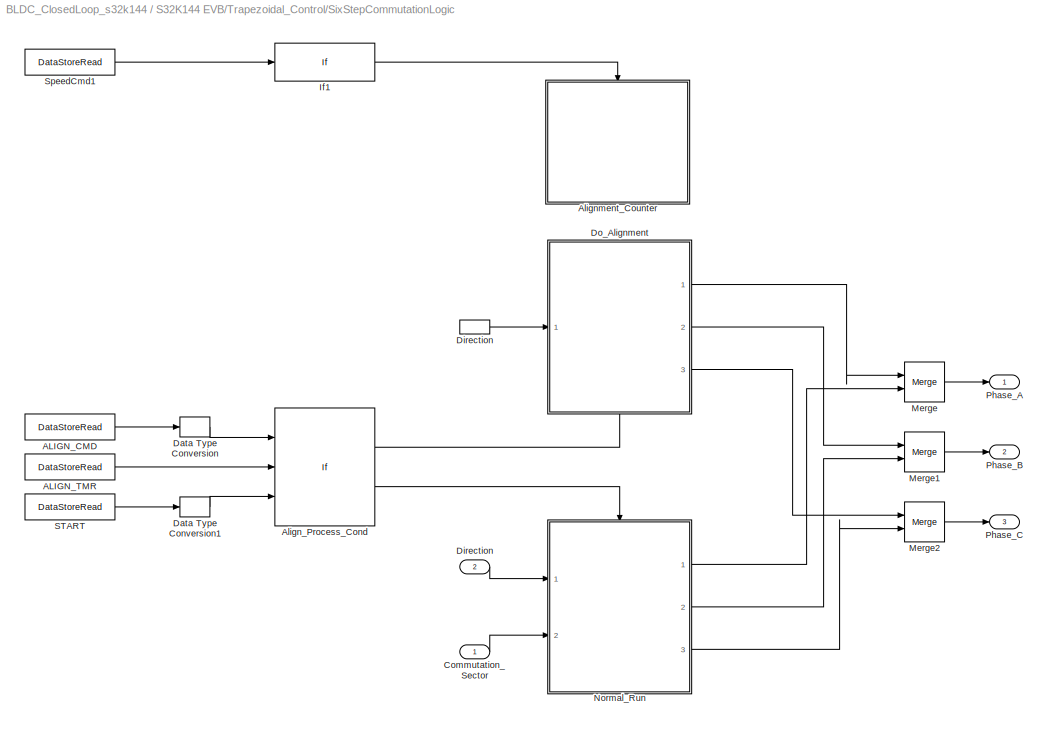
BLOCK [SubSystem] S32K144 EVB/Trapezoidal_Control/SixStepCommutationLogic
  Ports = [2, 3]
  RequestExecContextInheritance = off
  SID = 3990
BLOCK [DataStoreRead] S32K144 EVB/Trapezoidal_Control/SixStepCommutationLogic/ ALIGN_CMD
  DataStoreName = ExecuteAlign
  Ports = [0, 1]
  SID = 3993
BLOCK [DataStoreRead] S32K144 EVB/Trapezoidal_Control/SixStepCommutationLogic/ ALIGN_TMR
  DataStoreName = AlignTimer
  Ports = [0, 1]
  SID = 3994
BLOCK [DataStoreRead] S32K144 EVB/Trapezoidal_Control/SixStepCommutationLogic/ START
  DataStoreName = START
  Ports = [0, 1]
  SID = 3995
BLOCK [If] S32K144 EVB/Trapezoidal_Control/SixStepCommutationLogic/Align_Process_Cond
  ElseIfExpressions = (u1 == 0) & (u2 > 0) & (u3 == 1)
  IfExpression = (u1 == 1) & (u2 == 0) & (u3 == 1)
  NumInputs = 3
  Ports = [3, 2]
  Priority = 2
  SID = 3996
  ShowElse = off
BLOCK [SubSystem] S32K144 EVB/Trapezoidal_Control/SixStepCommutationLogic/Alignment_Counter
  Ports = [0, 0, 0, 0, 0, 0, 0, 1]
  RequestExecContextInheritance = off
  SID = 3997
BLOCK [ActionPort] S32K144 EVB/Trapezoidal_Control/SixStepCommutationLogic/Alignment_Counter/Action Port
  ActionPortLabel = if((u1 == 1))
  SID = 3998
BLOCK [SubSystem] S32K144 EVB/Trapezoidal_Control/SixStepCommutationLogic/Alignment_Counter/Align Sequence
  ErrorFcn = Stateflow.Translate.translate
  PermitHierarchicalResolution = ExplicitOnly
  Ports = [1, 2]
  RequestExecContextInheritance = off
  SFBlockType = Chart
  SID = 3999
  TreatAsAtomicUnit = on
BLOCK [Demux] S32K144 EVB/Trapezoidal_Control/SixStepCommutationLogic/Alignment_Counter/Align Sequence/ Demux 
  Outputs = 1
  Ports = [1, 1]
  SID = 3999::36
BLOCK [S-Function] S32K144 EVB/Trapezoidal_Control/SixStepCommutationLogic/Alignment_Counter/Align Sequence/ SFunction 
  EnableBusSupport = on
  FunctionName = sf_sfun
  Parameters = ALIGN_TIME
  PortCounts = [1 3]
  Ports = [1, 3]
  SFcnIsStateOwnerBlock = off
  SFunctionDeploymentMode = off
  SID = 3999::35
  Tag = Stateflow S-Function BLDC_ClosedLoop_s32k144 1
BLOCK [Terminator] S32K144 EVB/Trapezoidal_Control/SixStepCommutationLogic/Alignment_Counter/Align Sequence/ Terminator 
  SID = 3999::37
BLOCK [Inport] S32K144 EVB/Trapezoidal_Control/SixStepCommutationLogic/Alignment_Counter/Align Sequence/DelayTimeIn
  IconDisplay = Port number
  SID = 3999::18
BLOCK [Outport] S32K144 EVB/Trapezoidal_Control/SixStepCommutationLogic/Alignment_Counter/Align Sequence/DelayTimeOut
  IconDisplay = Port number
  SID = 3999::5
BLOCK [Outport] S32K144 EVB/Trapezoidal_Control/SixStepCommutationLogic/Alignment_Counter/Align Sequence/ExecuteAlign
  IconDisplay = Port number
  Port = 2
  SID = 3999::28
BLOCK [DataStoreRead] S32K144 EVB/Trapezoidal_Control/SixStepCommutationLogic/Alignment_Counter/AlignTimerIn
  DataStoreName = AlignTimer
  Ports = [0, 1]
  SID = 4000
BLOCK [DataStoreWrite] S32K144 EVB/Trapezoidal_Control/SixStepCommutationLogic/Alignment_Counter/AlignTimerOut
  DataStoreName = AlignTimer
  Ports = [1]
  SID = 4001
BLOCK [DataStoreWrite] S32K144 EVB/Trapezoidal_Control/SixStepCommutationLogic/Alignment_Counter/ExecureAlign
  DataStoreName = ExecuteAlign
  Ports = [1]
  SID = 4002
BLOCK [Inport] S32K144 EVB/Trapezoidal_Control/SixStepCommutationLogic/Commutation_Sector
  IconDisplay = Port number
  SID = 3991
BLOCK [DataTypeConversion] S32K144 EVB/Trapezoidal_Control/SixStepCommutationLogic/Data Type Conversion
  RndMeth = Floor
  SID = 4003
  SaturateOnIntegerOverflow = off
BLOCK [DataTypeConversion] S32K144 EVB/Trapezoidal_Control/SixStepCommutationLogic/Data Type Conversion1
  RndMeth = Floor
  SID = 4004
  SaturateOnIntegerOverflow = off
BLOCK [Inport] S32K144 EVB/Trapezoidal_Control/SixStepCommutationLogic/Direction
  IconDisplay = Port number
  Port = 2
  SID = 3992
BLOCK [InportShadow] S32K144 EVB/Trapezoidal_Control/SixStepCommutationLogic/Direction 
  IconDisplay = Port number
  Port = 2
  SID = 4005
BLOCK [SubSystem] S32K144 EVB/Trapezoidal_Control/SixStepCommutationLogic/Do_Alignment
  Ports = [1, 3, 0, 0, 0, 0, 0, 1]
  RequestExecContextInheritance = off
  SID = 4006
BLOCK [ActionPort] S32K144 EVB/Trapezoidal_Control/SixStepCommutationLogic/Do_Alignment/Action Port
  ActionPortLabel = if((u1 == 1) & (u2 == 0) & (u3 == 1))
  SID = 4008
BLOCK [SubSystem] S32K144 EVB/Trapezoidal_Control/SixStepCommutationLogic/Do_Alignment/CCW Dir
  Ports = [0, 3, 0, 0, 0, 0, 0, 1]
  RequestExecContextInheritance = off
  SID = 4009
BLOCK [ActionPort] S32K144 EVB/Trapezoidal_Control/SixStepCommutationLogic/Do_Alignment/CCW Dir/Action Port
  ActionPortLabel = else
  SID = 4010
BLOCK [Constant] S32K144 EVB/Trapezoidal_Control/SixStepCommutationLogic/Do_Alignment/CCW Dir/Constant
  OutDataTypeStr = Inherit: Inherit via back propagation
  SID = 4011
BLOCK [Constant] S32K144 EVB/Trapezoidal_Control/SixStepCommutationLogic/Do_Alignment/CCW Dir/Constant1
  OutDataTypeStr = Inherit: Inherit via back propagation
  SID = 4012
  Value = 0
BLOCK [Constant] S32K144 EVB/Trapezoidal_Control/SixStepCommutationLogic/Do_Alignment/CCW Dir/Constant2
  OutDataTypeStr = Inherit: Inherit via back propagation
  SID = 4013
  Value = 2
BLOCK [Outport] S32K144 EVB/Trapezoidal_Control/SixStepCommutationLogic/Do_Alignment/CCW Dir/Out1
  IconDisplay = Port number
  SID = 4014
BLOCK [Outport] S32K144 EVB/Trapezoidal_Control/SixStepCommutationLogic/Do_Alignment/CCW Dir/Out2
  IconDisplay = Port number
  Port = 2
  SID = 4015
BLOCK [Outport] S32K144 EVB/Trapezoidal_Control/SixStepCommutationLogic/Do_Alignment/CCW Dir/Out3
  IconDisplay = Port number
  Port = 3
  SID = 4016
BLOCK [SubSystem] S32K144 EVB/Trapezoidal_Control/SixStepCommutationLogic/Do_Alignment/CW Dir
  Ports = [0, 3, 0, 0, 0, 0, 0, 1]
  RequestExecContextInheritance = off
  SID = 4017
BLOCK [ActionPort] S32K144 EVB/Trapezoidal_Control/SixStepCommutationLogic/Do_Alignment/CW Dir/Action Port
  ActionPortLabel = if((u1 >= 0))
  SID = 4018
BLOCK [Constant] S32K144 EVB/Trapezoidal_Control/SixStepCommutationLogic/Do_Alignment/CW Dir/Constant
  OutDataTypeStr = Inherit: Inherit via back propagation
  SID = 4019
  Value = 2
BLOCK [Constant] S32K144 EVB/Trapezoidal_Control/SixStepCommutationLogic/Do_Alignment/CW Dir/Constant1
  OutDataTypeStr = Inherit: Inherit via back propagation
  SID = 4020
  Value = 0
BLOCK [Constant] S32K144 EVB/Trapezoidal_Control/SixStepCommutationLogic/Do_Alignment/CW Dir/Constant2
  OutDataTypeStr = Inherit: Inherit via back propagation
  SID = 4021
BLOCK [Outport] S32K144 EVB/Trapezoidal_Control/SixStepCommutationLogic/Do_Alignment/CW Dir/Out1
  IconDisplay = Port number
  SID = 4022
BLOCK [Outport] S32K144 EVB/Trapezoidal_Control/SixStepCommutationLogic/Do_Alignment/CW Dir/Out2
  IconDisplay = Port number
  Port = 2
  SID = 4023
BLOCK [Outport] S32K144 EVB/Trapezoidal_Control/SixStepCommutationLogic/Do_Alignment/CW Dir/Out3
  IconDisplay = Port number
  Port = 3
  SID = 4024
BLOCK [Inport] S32K144 EVB/Trapezoidal_Control/SixStepCommutationLogic/Do_Alignment/DIR
  IconDisplay = Port number
  SID = 4007
BLOCK [If] S32K144 EVB/Trapezoidal_Control/SixStepCommutationLogic/Do_Alignment/DirectionChk
  IfExpression = (u1 >= 0)
  Ports = [1, 2]
  Priority = 1
  SID = 4025
BLOCK [Merge] S32K144 EVB/Trapezoidal_Control/SixStepCommutationLogic/Do_Alignment/Merge
  Ports = [2, 1]
  SID = 4026
BLOCK [Merge] S32K144 EVB/Trapezoidal_Control/SixStepCommutationLogic/Do_Alignment/Merge1
  Ports = [2, 1]
  SID = 4027
BLOCK [Merge] S32K144 EVB/Trapezoidal_Control/SixStepCommutationLogic/Do_Alignment/Merge2
  Ports = [2, 1]
  SID = 4028
BLOCK [Outport] S32K144 EVB/Trapezoidal_Control/SixStepCommutationLogic/Do_Alignment/Phase_A
  IconDisplay = Port number
  SID = 4029
BLOCK [Outport] S32K144 EVB/Trapezoidal_Control/SixStepCommutationLogic/Do_Alignment/Phase_B
  IconDisplay = Port number
  Port = 2
  SID = 4030
BLOCK [Outport] S32K144 EVB/Trapezoidal_Control/SixStepCommutationLogic/Do_Alignment/Phase_C
  IconDisplay = Port number
  Port = 3
  SID = 4031
BLOCK [If] S32K144 EVB/Trapezoidal_Control/SixStepCommutationLogic/If1
  IfExpression = (u1 == 1)
  Ports = [1, 1]
  Priority = 1
  SID = 4032
  ShowElse = off
BLOCK [Merge] S32K144 EVB/Trapezoidal_Control/SixStepCommutationLogic/Merge
  Ports = [2, 1]
  SID = 4033
BLOCK [Merge] S32K144 EVB/Trapezoidal_Control/SixStepCommutationLogic/Merge1
  Ports = [2, 1]
  SID = 4034
BLOCK [Merge] S32K144 EVB/Trapezoidal_Control/SixStepCommutationLogic/Merge2
  Ports = [2, 1]
  SID = 4035
BLOCK [SubSystem] S32K144 EVB/Trapezoidal_Control/SixStepCommutationLogic/Normal_Run
  Ports = [2, 3, 0, 0, 0, 0, 0, 1]
  RequestExecContextInheritance = off
  SID = 4036
BLOCK [ActionPort] S32K144 EVB/Trapezoidal_Control/SixStepCommutationLogic/Normal_Run/Action Port
  ActionPortLabel = elseif((u1 == 0) & (u2 > 0) & (u3 == 1))
  SID = 4039
BLOCK [SubSystem] S32K144 EVB/Trapezoidal_Control/SixStepCommutationLogic/Normal_Run/CommutationTableLookup
  ErrorFcn = Stateflow.Translate.translate
  PermitHierarchicalResolution = ExplicitOnly
  Ports = [2, 3]
  RequestExecContextInheritance = off
  SFBlockType = Chart
  SID = 4040
  TreatAsAtomicUnit = on
BLOCK [Demux] S32K144 EVB/Trapezoidal_Control/SixStepCommutationLogic/Normal_Run/CommutationTableLookup/ Demux 
  Outputs = 1
  Ports = [1, 1]
  SID = 4040::84
BLOCK [S-Function] S32K144 EVB/Trapezoidal_Control/SixStepCommutationLogic/Normal_Run/CommutationTableLookup/ SFunction 
  EnableBusSupport = on
  FunctionName = sf_sfun
  PortCounts = [2 4]
  Ports = [2, 4]
  SFcnIsStateOwnerBlock = off
  SFunctionDeploymentMode = off
  SID = 4040::83
  Tag = Stateflow S-Function BLDC_ClosedLoop_s32k144 5
BLOCK [Terminator] S32K144 EVB/Trapezoidal_Control/SixStepCommutationLogic/Normal_Run/CommutationTableLookup/ Terminator 
  SID = 4040::85
BLOCK [Inport] S32K144 EVB/Trapezoidal_Control/SixStepCommutationLogic/Normal_Run/CommutationTableLookup/DIR
  IconDisplay = Port number
  Port = 2
  SID = 4040::61
BLOCK [Inport] S32K144 EVB/Trapezoidal_Control/SixStepCommutationLogic/Normal_Run/CommutationTableLookup/HALL_STATE
  IconDisplay = Port number
  SID = 4040::50
BLOCK [Outport] S32K144 EVB/Trapezoidal_Control/SixStepCommutationLogic/Normal_Run/CommutationTableLookup/Phase_A
  IconDisplay = Port number
  SID = 4040::51
BLOCK [Outport] S32K144 EVB/Trapezoidal_Control/SixStepCommutationLogic/Normal_Run/CommutationTableLookup/Phase_B
  IconDisplay = Port number
  Port = 2
  SID = 4040::52
BLOCK [Outport] S32K144 EVB/Trapezoidal_Control/SixStepCommutationLogic/Normal_Run/CommutationTableLookup/Phase_C
  IconDisplay = Port number
  Port = 3
  SID = 4040::53
BLOCK [Inport] S32K144 EVB/Trapezoidal_Control/SixStepCommutationLogic/Normal_Run/DIR
  IconDisplay = Port number
  SID = 4037
BLOCK [Inport] S32K144 EVB/Trapezoidal_Control/SixStepCommutationLogic/Normal_Run/HALL_STATE
  IconDisplay = Port number
  Port = 2
  SID = 4038
BLOCK [Outport] S32K144 EVB/Trapezoidal_Control/SixStepCommutationLogic/Normal_Run/Phase_A
  IconDisplay = Port number
  SID = 4041
BLOCK [Outport] S32K144 EVB/Trapezoidal_Control/SixStepCommutationLogic/Normal_Run/Phase_B
  IconDisplay = Port number
  Port = 2
  SID = 4042
BLOCK [Outport] S32K144 EVB/Trapezoidal_Control/SixStepCommutationLogic/Normal_Run/Phase_C
  IconDisplay = Port number
  Port = 3
  SID = 4043
BLOCK [Outport] S32K144 EVB/Trapezoidal_Control/SixStepCommutationLogic/Phase_A
  IconDisplay = Port number
  SID = 4045
BLOCK [Outport] S32K144 EVB/Trapezoidal_Control/SixStepCommutationLogic/Phase_B
  IconDisplay = Port number
  Port = 2
  SID = 4046
BLOCK [Outport] S32K144 EVB/Trapezoidal_Control/SixStepCommutationLogic/Phase_C
  IconDisplay = Port number
  Port = 3
  SID = 4047
BLOCK [DataStoreRead] S32K144 EVB/Trapezoidal_Control/SixStepCommutationLogic/SpeedCmd1
  DataStoreName = START
  Ports = [0, 1]
  SID = 4044
BLOCK [Inport] S32K144 EVB/Trapezoidal_Control/Voltage_Reference
  IconDisplay = Port number
  Port = 2
  SID = 3974
BLOCK [TriggerPort] S32K144 EVB/Trapezoidal_Control/function
  Ports = []
  SID = 3975
  StatesWhenEnabling = held
  TriggerType = function-call
  VariantControl = Variant
BLOCK [DataStoreMemory] S32K144 EVB/VoltageReqCMD declaration1
  DataStoreName = SpeedReqCMD
  OutDataTypeStr = int16
  OutMax = 4000
  OutMin = -4000
  Priority = 0
  ReadBeforeWriteMsg = warning
  SID = 4055
  ShowAdditionalParam = off
  SignalType = real
  WriteAfterReadMsg = warning
  WriteAfterWriteMsg = warning
ANNOTATION (root): \n \n \n Closed Loop BLDC Motor Control \n with MTRDEVKSBNK144 DevKit \n
ANNOTATION (root): \n \n DISCLAIMER: This Simulink model was tested with the MTRDEVKSDBNK144 kit. Read very carefully the HW&SW Setup below. \n This example is distributed under the NXP Tools License Agreement Terms & Conditions that can be found in LA_OPT_NXP_Software_License.htm
ANNOTATION (root): \n \n
ANNOTATION (root): \n \n Linix Motor 45ZWN24-40-B
ANNOTATION S32K144 EVB: Hall Sensors & PI Speed Controller/Estimator
ANNOTATION S32K144 EVB: Inverter & Motor Protection: Disable Inverter in case of high Voltage/Current
ANNOTATION S32K144 EVB: Rotate BLDC Motor in Closed Loop Speed Control
ANNOTATION S32K144 EVB/Hall_Emulation_Sequence/Speed Estimator/set SPD_COUNT_CMD = 0: 1. Reset counting command
ANNOTATION S32K144 EVB/Hall_Emulation_Sequence/Speed Estimator/set SPD_COUNT_CMD = 0: 2. Update Hall_A_Input_1 (history)
ANNOTATION S32K144 EVB/Hall_Emulation_Sequence/Speed Estimator/set SPD_COUNT_CMD = 0: 3. Compute Speed in rpm
ANNOTATION S32K144 EVB/Hall_Emulation_Sequence/Speed Estimator/set SPD_COUNT_CMD = 1: 1. Enable counting command
ANNOTATION S32K144 EVB/Hall_Emulation_Sequence/Speed Estimator/set SPD_COUNT_CMD = 1: 2. Update Hall_A_Input_1 (history)
ANNOTATION S32K144 EVB/IO Controls\n: RUN STATE
ANNOTATION S32K144 EVB/IO Controls\n: SYSTEM STATE
ANNOTATION S32K144 EVB/Trapezoidal_Control/Commands: 1.0 - PWM max duty cycle;\n4000 - RPM max value;
LINE S32K144 EVB/10us_interrupt/MeasureHallSignal_HighEdge_Time/Data Store\nRead:1 -> S32K144 EVB/10us_interrupt/MeasureHallSignal_HighEdge_Time/If:1
LINE S32K144 EVB/10us_interrupt/MeasureHallSignal_HighEdge_Time/If:1 -> S32K144 EVB/10us_interrupt/MeasureHallSignal_HighEdge_Time/increment counter:ifaction
LINE S32K144 EVB/10us_interrupt/MeasureHallSignal_HighEdge_Time/If:2 -> S32K144 EVB/10us_interrupt/MeasureHallSignal_HighEdge_Time/reset counter:ifaction
LINE S32K144 EVB/10us_interrupt/MeasureHallSignal_HighEdge_Time/increment counter/Data Store\nRead1:1 -> S32K144 EVB/10us_interrupt/MeasureHallSignal_HighEdge_Time/increment counter/Sum:2
LINE S32K144 EVB/10us_interrupt/MeasureHallSignal_HighEdge_Time/increment counter/Sum:1 -> S32K144 EVB/10us_interrupt/MeasureHallSignal_HighEdge_Time/increment counter/Data Store\nWrite:1
LINE S32K144 EVB/10us_interrupt/MeasureHallSignal_HighEdge_Time/increment counter/one:1 -> S32K144 EVB/10us_interrupt/MeasureHallSignal_HighEdge_Time/increment counter/Sum:1
LINE S32K144 EVB/10us_interrupt/MeasureHallSignal_HighEdge_Time/reset counter/zero:1 -> S32K144 EVB/10us_interrupt/MeasureHallSignal_HighEdge_Time/reset counter/Data Store\nWrite:1
LINE S32K144 EVB/10us_interrupt/Periodic_Interrupt_Timer:1 -> S32K144 EVB/10us_interrupt/MeasureHallSignal_HighEdge_Time:trigger
LINE S32K144 EVB/Control_Logic/Enable PDB and start FTM/ Demux :1 -> S32K144 EVB/Control_Logic/Enable PDB and start FTM/enablePDB():1
LINE S32K144 EVB/Control_Logic/Enable PDB and start FTM/ Demux :2 -> S32K144 EVB/Control_Logic/Enable PDB and start FTM/Normal_Op():1
LINE S32K144 EVB/Control_Logic/Enable PDB and start FTM/ Ground :1 -> S32K144 EVB/Control_Logic/Enable PDB and start FTM/ SFunction :1
LINE S32K144 EVB/Control_Logic/Enable PDB and start FTM/ SFunction :1 -> S32K144 EVB/Control_Logic/Enable PDB and start FTM/ Demux :1
LINE S32K144 EVB/Control_Logic/Enable PDB and start FTM:1 -> S32K144 EVB/Control_Logic/enable_FTM_PDB_ADC_triggering:trigger
LINE S32K144 EVB/Control_Logic/Enable PDB and start FTM:2 -> S32K144 EVB/Control_Logic/Normal Operation:trigger
LINE S32K144 EVB/Control_Logic/Function-Call\nGenerator:1 -> S32K144 EVB/Control_Logic/FunctionCall:1
LINE S32K144 EVB/Control_Logic/Normal Operation/Demux:1 -> S32K144 EVB/Control_Logic/Normal Operation/Mux1:1
LINE S32K144 EVB/Control_Logic/Normal Operation/Demux:2 -> S32K144 EVB/Control_Logic/Normal Operation/Mux1:2
LINE S32K144 EVB/Control_Logic/Normal Operation/Demux:3 -> S32K144 EVB/Control_Logic/Normal Operation/Mux2:1
LINE S32K144 EVB/Control_Logic/Normal Operation/Demux:4 -> S32K144 EVB/Control_Logic/Normal Operation/Mux2:2
LINE S32K144 EVB/Control_Logic/Normal Operation/Demux:5 -> S32K144 EVB/Control_Logic/Normal Operation/Mux3:1
LINE S32K144 EVB/Control_Logic/Normal Operation/Demux:6 -> S32K144 EVB/Control_Logic/Normal Operation/Mux3:2
LINE S32K144 EVB/Control_Logic/Normal Operation/Mux1:1 -> S32K144 EVB/Control_Logic/Normal Operation/PhaseA:1
LINE S32K144 EVB/Control_Logic/Normal Operation/Mux2:1 -> S32K144 EVB/Control_Logic/Normal Operation/PhaseB:1
LINE S32K144 EVB/Control_Logic/Normal Operation/Mux3:1 -> S32K144 EVB/Control_Logic/Normal Operation/PhaseC:1
LINE S32K144 EVB/Control_Logic/Normal Operation/Mux:1 -> S32K144 EVB/Control_Logic/Normal Operation/Demux:1
LINE S32K144 EVB/Control_Logic/Normal Operation/PhaseA_HS:1 -> S32K144 EVB/Control_Logic/Normal Operation/Mux:1
LINE S32K144 EVB/Control_Logic/Normal Operation/PhaseA_LS:1 -> S32K144 EVB/Control_Logic/Normal Operation/Mux:2
LINE S32K144 EVB/Control_Logic/Normal Operation/PhaseB_HS:1 -> S32K144 EVB/Control_Logic/Normal Operation/Mux:3
LINE S32K144 EVB/Control_Logic/Normal Operation/PhaseB_LS:1 -> S32K144 EVB/Control_Logic/Normal Operation/Mux:4
LINE S32K144 EVB/Control_Logic/Normal Operation/PhaseC_HS:1 -> S32K144 EVB/Control_Logic/Normal Operation/Mux:5
LINE S32K144 EVB/Control_Logic/Normal Operation/PhaseC_LS:1 -> S32K144 EVB/Control_Logic/Normal Operation/Mux:6
LINE S32K144 EVB/Control_Logic/Normal Operation:1 -> S32K144 EVB/Control_Logic/PhaseA:1
LINE S32K144 EVB/Control_Logic/Normal Operation:2 -> S32K144 EVB/Control_Logic/PhaseB:1
LINE S32K144 EVB/Control_Logic/Normal Operation:3 -> S32K144 EVB/Control_Logic/PhaseC:1
LINE S32K144 EVB/Control_Logic/PhaseA_HS:1 -> S32K144 EVB/Control_Logic/Normal Operation:1
LINE S32K144 EVB/Control_Logic/PhaseA_LS:1 -> S32K144 EVB/Control_Logic/Normal Operation:2
LINE S32K144 EVB/Control_Logic/PhaseB_HS:1 -> S32K144 EVB/Control_Logic/Normal Operation:3
LINE S32K144 EVB/Control_Logic/PhaseB_LS:1 -> S32K144 EVB/Control_Logic/Normal Operation:4
LINE S32K144 EVB/Control_Logic/PhaseC_HS:1 -> S32K144 EVB/Control_Logic/Normal Operation:5
LINE S32K144 EVB/Control_Logic/PhaseC_LS:1 -> S32K144 EVB/Control_Logic/Normal Operation:6
LINE S32K144 EVB/Control_Logic/enable_FTM_PDB_ADC_triggering/ON:1 -> S32K144 EVB/Control_Logic/enable_FTM_PDB_ADC_triggering/SpeedCmd :1
LINE S32K144 EVB/Control_Logic:1 -> S32K144 EVB/Power_Stage_Inverter:trigger
LINE S32K144 EVB/Control_Logic:2 -> S32K144 EVB/Power_Stage_Inverter:1
LINE S32K144 EVB/Control_Logic:3 -> S32K144 EVB/Power_Stage_Inverter:2
LINE S32K144 EVB/Control_Logic:4 -> S32K144 EVB/Power_Stage_Inverter:3
LINE S32K144 EVB/DC_Bus_Measurements/ADC1_ISR:1 -> S32K144 EVB/DC_Bus_Measurements/ADC_readings:trigger
LINE S32K144 EVB/DC_Bus_Measurements/ADC1_ISR:2 -> S32K144 EVB/DC_Bus_Measurements/ADC_readings:1
LINE S32K144 EVB/DC_Bus_Measurements/ADC1_ISR:3 -> S32K144 EVB/DC_Bus_Measurements/Terminator6:1
LINE S32K144 EVB/DC_Bus_Measurements/ADC2AMPS/ADC_bits:1 -> S32K144 EVB/DC_Bus_Measurements/ADC2AMPS/Sum:1
LINE S32K144 EVB/DC_Bus_Measurements/ADC2AMPS/Current_offset:1 -> S32K144 EVB/DC_Bus_Measurements/ADC2AMPS/Sum1:2
LINE S32K144 EVB/DC_Bus_Measurements/ADC2AMPS/Sum1:1 -> S32K144 EVB/DC_Bus_Measurements/ADC2AMPS/Amps:1
LINE S32K144 EVB/DC_Bus_Measurements/ADC2AMPS/Sum:1 -> S32K144 EVB/DC_Bus_Measurements/ADC2AMPS/bits2amps:1
LINE S32K144 EVB/DC_Bus_Measurements/ADC2AMPS/bits2amps:1 -> S32K144 EVB/DC_Bus_Measurements/ADC2AMPS/Sum1:1
LINE S32K144 EVB/DC_Bus_Measurements/ADC2AMPS/offset:1 -> S32K144 EVB/DC_Bus_Measurements/ADC2AMPS/Sum:2
NET S32K144 EVB/DC_Bus_Measurements/ADC2AMPS:1 -> S32K144 EVB/DC_Bus_Measurements/DC_BI:1, S32K144 EVB/DC_Bus_Measurements/Data Store\nWrite2:1
LINE S32K144 EVB/DC_Bus_Measurements/ADC2VOLT/ADC_bits:1 -> S32K144 EVB/DC_Bus_Measurements/ADC2VOLT/bits2volts:1
LINE S32K144 EVB/DC_Bus_Measurements/ADC2VOLT/bits2volts:1 -> S32K144 EVB/DC_Bus_Measurements/ADC2VOLT/Volts:1
NET S32K144 EVB/DC_Bus_Measurements/ADC2VOLT:1 -> S32K144 EVB/DC_Bus_Measurements/DC_BV:1, S32K144 EVB/DC_Bus_Measurements/Data Store\nWrite1:1
LINE S32K144 EVB/DC_Bus_Measurements/ADC_readings/ADC_DC_BI:1 -> S32K144 EVB/DC_Bus_Measurements/ADC_readings/DC_BI:1
LINE S32K144 EVB/DC_Bus_Measurements/ADC_readings/Read_DC_Voltage:1 -> S32K144 EVB/DC_Bus_Measurements/ADC_readings/DC_BV:1
LINE S32K144 EVB/DC_Bus_Measurements/ADC_readings:1 -> S32K144 EVB/DC_Bus_Measurements/ADC2VOLT:1
LINE S32K144 EVB/DC_Bus_Measurements/ADC_readings:2 -> S32K144 EVB/DC_Bus_Measurements/ADC2AMPS:1
LINE S32K144 EVB/DC_Bus_Measurements/PDB1_ISR:1 -> S32K144 EVB/DC_Bus_Measurements/PDB1_IRQHandler:trigger
LINE S32K144 EVB/DC_Bus_Measurements/PDB1_ISR:2 -> S32K144 EVB/DC_Bus_Measurements/Terminator1:1
LINE S32K144 EVB/DC_Bus_Measurements/PDB1_ISR:3 -> S32K144 EVB/DC_Bus_Measurements/Terminator2:1
LINE S32K144 EVB/DC_Bus_Measurements/PDB1_ISR:4 -> S32K144 EVB/DC_Bus_Measurements/Terminator:1
LINE S32K144 EVB/DC_Bus_Measurements:1 -> S32K144 EVB/Protection_Check:1
LINE S32K144 EVB/DC_Bus_Measurements:2 -> S32K144 EVB/Protection_Check:2
LINE S32K144 EVB/Event_Control/ControlEventLogic/Digital_Input_ISR_HALL_A:1 -> S32K144 EVB/Event_Control/ControlEventLogic/Toggle_HallA:trigger
LINE S32K144 EVB/Event_Control/ControlEventLogic/Digital_Input_ISR_HALL_B:1 -> S32K144 EVB/Event_Control/ControlEventLogic/Toggle_HallB:trigger
LINE S32K144 EVB/Event_Control/ControlEventLogic/Digital_Input_ISR_HALL_C:1 -> S32K144 EVB/Event_Control/ControlEventLogic/Toggle_HallC:trigger
LINE S32K144 EVB/Event_Control/ControlEventLogic/Function-Call\nSubsystem/Add:1 -> S32K144 EVB/Event_Control/ControlEventLogic/Function-Call\nSubsystem/Data Store\nWrite:1
LINE S32K144 EVB/Event_Control/ControlEventLogic/Function-Call\nSubsystem/Constant:1 -> S32K144 EVB/Event_Control/ControlEventLogic/Function-Call\nSubsystem/Add:2
LINE S32K144 EVB/Event_Control/ControlEventLogic/Function-Call\nSubsystem/Data Store\nRead:1 -> S32K144 EVB/Event_Control/ControlEventLogic/Function-Call\nSubsystem/Add:1
LINE S32K144 EVB/Event_Control/ControlEventLogic/Function-Call\nSubsystem/Function-Call\nGenerator:1 -> S32K144 EVB/Event_Control/ControlEventLogic/Function-Call\nSubsystem/Call:1
LINE S32K144 EVB/Event_Control/ControlEventLogic/Function-Call\nSubsystem:1 -> S32K144 EVB/Event_Control/ControlEventLogic/HallStateChange:1
LINE S32K144 EVB/Event_Control/ControlEventLogic/Mux2:1 -> S32K144 EVB/Event_Control/ControlEventLogic/Function-Call\nSubsystem:trigger
LINE S32K144 EVB/Event_Control/ControlEventLogic/Toggle_HallA/Data Store\nRead1:1 -> S32K144 EVB/Event_Control/ControlEventLogic/Toggle_HallA/Logical\nOperator:1
LINE S32K144 EVB/Event_Control/ControlEventLogic/Toggle_HallA/Function-Call\nGenerator:1 -> S32K144 EVB/Event_Control/ControlEventLogic/Toggle_HallA/Call:1
LINE S32K144 EVB/Event_Control/ControlEventLogic/Toggle_HallA/Logical\nOperator:1 -> S32K144 EVB/Event_Control/ControlEventLogic/Toggle_HallA/Data Store\nWrite1:1
LINE S32K144 EVB/Event_Control/ControlEventLogic/Toggle_HallA:1 -> S32K144 EVB/Event_Control/ControlEventLogic/Mux2:1
LINE S32K144 EVB/Event_Control/ControlEventLogic/Toggle_HallB/Data Store\nRead1:1 -> S32K144 EVB/Event_Control/ControlEventLogic/Toggle_HallB/Logical\nOperator:1
LINE S32K144 EVB/Event_Control/ControlEventLogic/Toggle_HallB/Function-Call\nGenerator:1 -> S32K144 EVB/Event_Control/ControlEventLogic/Toggle_HallB/Call:1
LINE S32K144 EVB/Event_Control/ControlEventLogic/Toggle_HallB/Logical\nOperator:1 -> S32K144 EVB/Event_Control/ControlEventLogic/Toggle_HallB/Data Store\nWrite1:1
LINE S32K144 EVB/Event_Control/ControlEventLogic/Toggle_HallB:1 -> S32K144 EVB/Event_Control/ControlEventLogic/Mux2:2
LINE S32K144 EVB/Event_Control/ControlEventLogic/Toggle_HallC/Data Store\nRead1:1 -> S32K144 EVB/Event_Control/ControlEventLogic/Toggle_HallC/Logical\nOperator:1
LINE S32K144 EVB/Event_Control/ControlEventLogic/Toggle_HallC/Function-Call\nGenerator:1 -> S32K144 EVB/Event_Control/ControlEventLogic/Toggle_HallC/Call:1
LINE S32K144 EVB/Event_Control/ControlEventLogic/Toggle_HallC/Logical\nOperator:1 -> S32K144 EVB/Event_Control/ControlEventLogic/Toggle_HallC/Data Store\nWrite1:1
LINE S32K144 EVB/Event_Control/ControlEventLogic/Toggle_HallC:1 -> S32K144 EVB/Event_Control/ControlEventLogic/Mux2:3
LINE S32K144 EVB/Event_Control/ControlEventLogic:1 -> S32K144 EVB/Event_Control/Mux1:3
LINE S32K144 EVB/Event_Control/ControlPollingLogic/ Demux :1 -> S32K144 EVB/Event_Control/ControlPollingLogic/Trigger():1
LINE S32K144 EVB/Event_Control/ControlPollingLogic/ SFunction :1 -> S32K144 EVB/Event_Control/ControlPollingLogic/ Demux :1
LINE S32K144 EVB/Event_Control/ControlPollingLogic/SpeedChange:1 -> S32K144 EVB/Event_Control/ControlPollingLogic/ SFunction :1
LINE S32K144 EVB/Event_Control/ControlPollingLogic:1 -> S32K144 EVB/Event_Control/Mux1:2
LINE S32K144 EVB/Event_Control/HallSensorInit/Digital_Input_HALL_A:1 -> S32K144 EVB/Event_Control/HallSensorInit/Data Store\nWrite:1
LINE S32K144 EVB/Event_Control/HallSensorInit/Digital_Input_HALL_B:1 -> S32K144 EVB/Event_Control/HallSensorInit/Data Store\nWrite1:1
LINE S32K144 EVB/Event_Control/HallSensorInit/Digital_Input_HALL_C:1 -> S32K144 EVB/Event_Control/HallSensorInit/Data Store\nWrite2:1
LINE S32K144 EVB/Event_Control/HallSensorInit/Function-Call\nGenerator:1 -> S32K144 EVB/Event_Control/HallSensorInit/Call:1
LINE S32K144 EVB/Event_Control/HallSensorInit:1 -> S32K144 EVB/Event_Control/Mux1:1
LINE S32K144 EVB/Event_Control/Init/ Demux :1 -> S32K144 EVB/Event_Control/Init/Init():1
LINE S32K144 EVB/Event_Control/Init/ Ground :1 -> S32K144 EVB/Event_Control/Init/ SFunction :1
LINE S32K144 EVB/Event_Control/Init/ SFunction :1 -> S32K144 EVB/Event_Control/Init/ Demux :1
LINE S32K144 EVB/Event_Control/Init:1 -> S32K144 EVB/Event_Control/HallSensorInit:trigger
LINE S32K144 EVB/Event_Control/Mux1:1 -> S32K144 EVB/Event_Control/Event:1
LINE S32K144 EVB/Event_Control/Speed_Change:1 -> S32K144 EVB/Event_Control/ControlPollingLogic:1
LINE S32K144 EVB/Event_Control:1 -> S32K144 EVB/Hall_Emulation_Sequence:trigger
LINE S32K144 EVB/GD3000_interrupt/NOK:1 -> S32K144 EVB/GD3000_interrupt/FAULT_write:1
LINE S32K144 EVB/GD300_ISR_Callback\n:1 -> S32K144 EVB/GD3000_interrupt:trigger
NET S32K144 EVB/Hall_Emulation_Sequence/Data Store\nRead1:1 -> S32K144 EVB/Hall_Emulation_Sequence/Data Type Conversion2:1, S32K144 EVB/Hall_Emulation_Sequence/Speed Estimator:1
LINE S32K144 EVB/Hall_Emulation_Sequence/Data Store\nRead2:1 -> S32K144 EVB/Hall_Emulation_Sequence/Data Type Conversion1:1
LINE S32K144 EVB/Hall_Emulation_Sequence/Data Store\nRead3:1 -> S32K144 EVB/Hall_Emulation_Sequence/Data Type Conversion3:1
LINE S32K144 EVB/Hall_Emulation_Sequence/Data Type Conversion1:1 -> S32K144 EVB/Hall_Emulation_Sequence/Gain4:1
LINE S32K144 EVB/Hall_Emulation_Sequence/Data Type Conversion2:1 -> S32K144 EVB/Hall_Emulation_Sequence/Gain3:1
LINE S32K144 EVB/Hall_Emulation_Sequence/Data Type Conversion3:1 -> S32K144 EVB/Hall_Emulation_Sequence/Sum1:3
LINE S32K144 EVB/Hall_Emulation_Sequence/Function-Call\nGenerator:1 -> S32K144 EVB/Hall_Emulation_Sequence/FunctionCall:1
LINE S32K144 EVB/Hall_Emulation_Sequence/Gain3:1 -> S32K144 EVB/Hall_Emulation_Sequence/Sum1:1
LINE S32K144 EVB/Hall_Emulation_Sequence/Gain4:1 -> S32K144 EVB/Hall_Emulation_Sequence/Sum1:2
LINE S32K144 EVB/Hall_Emulation_Sequence/Speed Estimator/Data Store\nRead:1 -> S32K144 EVB/Hall_Emulation_Sequence/Speed Estimator/If:2
LINE S32K144 EVB/Hall_Emulation_Sequence/Speed Estimator/HALL_A_Input:1 -> S32K144 EVB/Hall_Emulation_Sequence/Speed Estimator/If:1
LINE S32K144 EVB/Hall_Emulation_Sequence/Speed Estimator/If:1 -> S32K144 EVB/Hall_Emulation_Sequence/Speed Estimator/set SPD_COUNT_CMD = 1:ifaction
LINE S32K144 EVB/Hall_Emulation_Sequence/Speed Estimator/If:2 -> S32K144 EVB/Hall_Emulation_Sequence/Speed Estimator/set SPD_COUNT_CMD = 0:ifaction
LINE S32K144 EVB/Hall_Emulation_Sequence/Speed Estimator/If:3 -> S32K144 EVB/Hall_Emulation_Sequence/Speed Estimator/keep updating history:ifaction
LINE S32K144 EVB/Hall_Emulation_Sequence/Speed Estimator/keep updating history/Data Store\nRead:1 -> S32K144 EVB/Hall_Emulation_Sequence/Speed Estimator/keep updating history/Data Store\nWrite3:1
LINE S32K144 EVB/Hall_Emulation_Sequence/Speed Estimator/set SPD_COUNT_CMD = 0/Constant:1 -> S32K144 EVB/Hall_Emulation_Sequence/Speed Estimator/set SPD_COUNT_CMD = 0/time2frequency:1
LINE S32K144 EVB/Hall_Emulation_Sequence/Speed Estimator/set SPD_COUNT_CMD = 0/Data Store\nRead1:1 -> S32K144 EVB/Hall_Emulation_Sequence/Speed Estimator/set SPD_COUNT_CMD = 0/Logical\nOperator:2
LINE S32K144 EVB/Hall_Emulation_Sequence/Speed Estimator/set SPD_COUNT_CMD = 0/Data Store\nRead2:1 -> S32K144 EVB/Hall_Emulation_Sequence/Speed Estimator/set SPD_COUNT_CMD = 0/Data Type Conversion:1
LINE S32K144 EVB/Hall_Emulation_Sequence/Speed Estimator/set SPD_COUNT_CMD = 0/Data Store\nRead:1 -> S32K144 EVB/Hall_Emulation_Sequence/Speed Estimator/set SPD_COUNT_CMD = 0/Data Store\nWrite3:1
LINE S32K144 EVB/Hall_Emulation_Sequence/Speed Estimator/set SPD_COUNT_CMD = 0/Data Type Conversion1:1 -> S32K144 EVB/Hall_Emulation_Sequence/Speed Estimator/set SPD_COUNT_CMD = 0/Estimated_Speed:1
LINE S32K144 EVB/Hall_Emulation_Sequence/Speed Estimator/set SPD_COUNT_CMD = 0/Data Type Conversion:1 -> S32K144 EVB/Hall_Emulation_Sequence/Speed Estimator/set SPD_COUNT_CMD = 0/InterruptBase 10usec:1
LINE S32K144 EVB/Hall_Emulation_Sequence/Speed Estimator/set SPD_COUNT_CMD = 0/InterruptBase 10usec:1 -> S32K144 EVB/Hall_Emulation_Sequence/Speed Estimator/set SPD_COUNT_CMD = 0/full period:1
LINE S32K144 EVB/Hall_Emulation_Sequence/Speed Estimator/set SPD_COUNT_CMD = 0/Logical\nOperator:1 -> S32K144 EVB/Hall_Emulation_Sequence/Speed Estimator/set SPD_COUNT_CMD = 0/Data Store\nWrite:1
LINE S32K144 EVB/Hall_Emulation_Sequence/Speed Estimator/set SPD_COUNT_CMD = 0/div:1 -> S32K144 EVB/Hall_Emulation_Sequence/Speed Estimator/set SPD_COUNT_CMD = 0/Data Type Conversion1:1
LINE S32K144 EVB/Hall_Emulation_Sequence/Speed Estimator/set SPD_COUNT_CMD = 0/full period:1 -> S32K144 EVB/Hall_Emulation_Sequence/Speed Estimator/set SPD_COUNT_CMD = 0/time2frequency:2
LINE S32K144 EVB/Hall_Emulation_Sequence/Speed Estimator/set SPD_COUNT_CMD = 0/no of poles pairs:1 -> S32K144 EVB/Hall_Emulation_Sequence/Speed Estimator/set SPD_COUNT_CMD = 0/div:2
LINE S32K144 EVB/Hall_Emulation_Sequence/Speed Estimator/set SPD_COUNT_CMD = 0/rps2rpm:1 -> S32K144 EVB/Hall_Emulation_Sequence/Speed Estimator/set SPD_COUNT_CMD = 0/div:1
LINE S32K144 EVB/Hall_Emulation_Sequence/Speed Estimator/set SPD_COUNT_CMD = 0/setZero:1 -> S32K144 EVB/Hall_Emulation_Sequence/Speed Estimator/set SPD_COUNT_CMD = 0/Logical\nOperator:1
LINE S32K144 EVB/Hall_Emulation_Sequence/Speed Estimator/set SPD_COUNT_CMD = 0/time2frequency:1 -> S32K144 EVB/Hall_Emulation_Sequence/Speed Estimator/set SPD_COUNT_CMD = 0/rps2rpm:1
LINE S32K144 EVB/Hall_Emulation_Sequence/Speed Estimator/set SPD_COUNT_CMD = 0:1 -> S32K144 EVB/Hall_Emulation_Sequence/Speed Estimator/Estimated_Speed:1
LINE S32K144 EVB/Hall_Emulation_Sequence/Speed Estimator/set SPD_COUNT_CMD = 1/Data Store\nRead1:1 -> S32K144 EVB/Hall_Emulation_Sequence/Speed Estimator/set SPD_COUNT_CMD = 1/Logical\nOperator:2
LINE S32K144 EVB/Hall_Emulation_Sequence/Speed Estimator/set SPD_COUNT_CMD = 1/Data Store\nRead:1 -> S32K144 EVB/Hall_Emulation_Sequence/Speed Estimator/set SPD_COUNT_CMD = 1/Data Store\nWrite3:1
LINE S32K144 EVB/Hall_Emulation_Sequence/Speed Estimator/set SPD_COUNT_CMD = 1/Logical\nOperator:1 -> S32K144 EVB/Hall_Emulation_Sequence/Speed Estimator/set SPD_COUNT_CMD = 1/Data Store\nWrite:1
LINE S32K144 EVB/Hall_Emulation_Sequence/Speed Estimator/set SPD_COUNT_CMD = 1/setOne:1 -> S32K144 EVB/Hall_Emulation_Sequence/Speed Estimator/set SPD_COUNT_CMD = 1/Logical\nOperator:1
LINE S32K144 EVB/Hall_Emulation_Sequence/Speed Estimator:1 -> S32K144 EVB/Hall_Emulation_Sequence/Estimated_Speed:1
LINE S32K144 EVB/Hall_Emulation_Sequence/Sum1:1 -> S32K144 EVB/Hall_Emulation_Sequence/Commutation_Sector:1
LINE S32K144 EVB/Hall_Emulation_Sequence:1 -> S32K144 EVB/Trapezoidal_Control:trigger
LINE S32K144 EVB/Hall_Emulation_Sequence:2 -> S32K144 EVB/Trapezoidal_Control:1
LINE S32K144 EVB/Hall_Emulation_Sequence:3 -> S32K144 EVB/Speed_Controller:2
LINE S32K144 EVB/IO Controls\n/If Action\nSubsystem/Chart/ Demux :1 -> S32K144 EVB/IO Controls\n/If Action\nSubsystem/Chart/ Terminator :1
LINE S32K144 EVB/IO Controls\n/If Action\nSubsystem/Chart/ SFunction :1 -> S32K144 EVB/IO Controls\n/If Action\nSubsystem/Chart/ Demux :1
LINE S32K144 EVB/IO Controls\n/If Action\nSubsystem/Chart/ SFunction :2 -> S32K144 EVB/IO Controls\n/If Action\nSubsystem/Chart/out:1
LINE S32K144 EVB/IO Controls\n/If Action\nSubsystem/Chart/Decrement:1 -> S32K144 EVB/IO Controls\n/If Action\nSubsystem/Chart/ SFunction :2
LINE S32K144 EVB/IO Controls\n/If Action\nSubsystem/Chart/Increment:1 -> S32K144 EVB/IO Controls\n/If Action\nSubsystem/Chart/ SFunction :1
LINE S32K144 EVB/IO Controls\n/If Action\nSubsystem/Chart:1 -> S32K144 EVB/IO Controls\n/If Action\nSubsystem/Increment:2
LINE S32K144 EVB/IO Controls\n/If Action\nSubsystem/Increment:1 -> S32K144 EVB/IO Controls\n/If Action\nSubsystem/Saturation:1
LINE S32K144 EVB/IO Controls\n/If Action\nSubsystem/Logical\nOperator1:1 -> S32K144 EVB/IO Controls\n/If Action\nSubsystem/Chart:2
LINE S32K144 EVB/IO Controls\n/If Action\nSubsystem/Logical\nOperator:1 -> S32K144 EVB/IO Controls\n/If Action\nSubsystem/Chart:1
LINE S32K144 EVB/IO Controls\n/If Action\nSubsystem/Read Command:1 -> S32K144 EVB/IO Controls\n/If Action\nSubsystem/Increment:1
LINE S32K144 EVB/IO Controls\n/If Action\nSubsystem/SW2_increment:1 -> S32K144 EVB/IO Controls\n/If Action\nSubsystem/Logical\nOperator1:1
LINE S32K144 EVB/IO Controls\n/If Action\nSubsystem/SW3_increment:1 -> S32K144 EVB/IO Controls\n/If Action\nSubsystem/Logical\nOperator:1
NET S32K144 EVB/IO Controls\n/If Action\nSubsystem/Saturation:1 -> S32K144 EVB/IO Controls\n/If Action\nSubsystem/Speed_Command:1, S32K144 EVB/IO Controls\n/If Action\nSubsystem/Store Command:1
LINE S32K144 EVB/IO Controls\n/If Action\nSubsystem:1 -> S32K144 EVB/IO Controls\n/Speed_Command:1
LINE S32K144 EVB/IO Controls\n/If1:1 -> S32K144 EVB/IO Controls\n/If Action\nSubsystem:ifaction
LINE S32K144 EVB/IO Controls\n/If2:1 -> S32K144 EVB/IO Controls\n/Subsystem:ifaction
LINE S32K144 EVB/IO Controls\n/SpeedCmd1:1 -> S32K144 EVB/IO Controls\n/If1:1
LINE S32K144 EVB/IO Controls\n/SpeedCmd2:1 -> S32K144 EVB/IO Controls\n/Subsystem:2
LINE S32K144 EVB/IO Controls\n/SpeedCmd3:1 -> S32K144 EVB/IO Controls\n/Subsystem:1
LINE S32K144 EVB/IO Controls\n/SpeedCmd4:1 -> S32K144 EVB/IO Controls\n/If2:1
LINE S32K144 EVB/IO Controls\n/Subsystem/FAULT:1 -> S32K144 EVB/IO Controls\n/Subsystem/If:2
LINE S32K144 EVB/IO Controls\n/Subsystem/Fault/OFF :1 -> S32K144 EVB/IO Controls\n/Subsystem/Fault/GREEN:1
NET S32K144 EVB/IO Controls\n/Subsystem/Fault/OFF \n:1 -> S32K144 EVB/IO Controls\n/Subsystem/Fault/SpeedCmd 1:1, S32K144 EVB/IO Controls\n/Subsystem/Fault/SpeedCmd :1
LINE S32K144 EVB/IO Controls\n/Subsystem/Fault/OFF:1 -> S32K144 EVB/IO Controls\n/Subsystem/Fault/BLUE:1
LINE S32K144 EVB/IO Controls\n/Subsystem/Fault/ON\n:1 -> S32K144 EVB/IO Controls\n/Subsystem/Fault/RED:1
LINE S32K144 EVB/IO Controls\n/Subsystem/If:1 -> S32K144 EVB/IO Controls\n/Subsystem/Ready_to_go:ifaction
LINE S32K144 EVB/IO Controls\n/Subsystem/If:2 -> S32K144 EVB/IO Controls\n/Subsystem/Fault:ifaction
LINE S32K144 EVB/IO Controls\n/Subsystem/If:3 -> S32K144 EVB/IO Controls\n/Subsystem/Running:ifaction
LINE S32K144 EVB/IO Controls\n/Subsystem/Ready_to_go/If1:1 -> S32K144 EVB/IO Controls\n/Subsystem/Ready_to_go/START_CW_Direction:ifaction
LINE S32K144 EVB/IO Controls\n/Subsystem/Ready_to_go/If1:2 -> S32K144 EVB/IO Controls\n/Subsystem/Ready_to_go/START_CCW_Direction:ifaction
LINE S32K144 EVB/IO Controls\n/Subsystem/Ready_to_go/OFF :1 -> S32K144 EVB/IO Controls\n/Subsystem/Ready_to_go/RED:1
LINE S32K144 EVB/IO Controls\n/Subsystem/Ready_to_go/OFF \n:1 -> S32K144 EVB/IO Controls\n/Subsystem/Ready_to_go/BLUE:1
LINE S32K144 EVB/IO Controls\n/Subsystem/Ready_to_go/ON\n :1 -> S32K144 EVB/IO Controls\n/Subsystem/Ready_to_go/GREEN:1
LINE S32K144 EVB/IO Controls\n/Subsystem/Ready_to_go/START_CCW_Direction/Constant:1 -> S32K144 EVB/IO Controls\n/Subsystem/Ready_to_go/START_CCW_Direction/Store Command:1
LINE S32K144 EVB/IO Controls\n/Subsystem/Ready_to_go/START_CCW_Direction/ON:1 -> S32K144 EVB/IO Controls\n/Subsystem/Ready_to_go/START_CCW_Direction/SpeedCmd :1
LINE S32K144 EVB/IO Controls\n/Subsystem/Ready_to_go/START_CW_Direction/Constant:1 -> S32K144 EVB/IO Controls\n/Subsystem/Ready_to_go/START_CW_Direction/Store Command:1
LINE S32K144 EVB/IO Controls\n/Subsystem/Ready_to_go/START_CW_Direction/ON:1 -> S32K144 EVB/IO Controls\n/Subsystem/Ready_to_go/START_CW_Direction/SpeedCmd :1
LINE S32K144 EVB/IO Controls\n/Subsystem/Ready_to_go/SW2_increment:1 -> S32K144 EVB/IO Controls\n/Subsystem/Ready_to_go/If1:2
LINE S32K144 EVB/IO Controls\n/Subsystem/Ready_to_go/SW3_increment:1 -> S32K144 EVB/IO Controls\n/Subsystem/Ready_to_go/If1:1
LINE S32K144 EVB/IO Controls\n/Subsystem/Running/OFF\n:1 -> S32K144 EVB/IO Controls\n/Subsystem/Running/GREEN:1
LINE S32K144 EVB/IO Controls\n/Subsystem/Running/OFF_RED:1 -> S32K144 EVB/IO Controls\n/Subsystem/Running/RED:1
LINE S32K144 EVB/IO Controls\n/Subsystem/Running/ON :1 -> S32K144 EVB/IO Controls\n/Subsystem/Running/BLUE:1
LINE S32K144 EVB/IO Controls\n/Subsystem/START:1 -> S32K144 EVB/IO Controls\n/Subsystem/If:1
LINE S32K144 EVB/IO Controls\n:1 -> S32K144 EVB/Speed_Controller:1
LINE S32K144 EVB/Power_Stage_Inverter/Demux1:1 -> S32K144 EVB/Power_Stage_Inverter/FTM_PWM_Config:3
LINE S32K144 EVB/Power_Stage_Inverter/Demux1:2 -> S32K144 EVB/Power_Stage_Inverter/FTM_PWM_Config:4
LINE S32K144 EVB/Power_Stage_Inverter/Demux2:1 -> S32K144 EVB/Power_Stage_Inverter/FTM_PWM_Config:5
LINE S32K144 EVB/Power_Stage_Inverter/Demux2:2 -> S32K144 EVB/Power_Stage_Inverter/FTM_PWM_Config:6
LINE S32K144 EVB/Power_Stage_Inverter/Demux3:1 -> S32K144 EVB/Power_Stage_Inverter/FTM_PWM_Config:1
LINE S32K144 EVB/Power_Stage_Inverter/Demux3:2 -> S32K144 EVB/Power_Stage_Inverter/FTM_PWM_Config:2
LINE S32K144 EVB/Power_Stage_Inverter/FTM_PWM_Config:1 -> S32K144 EVB/Power_Stage_Inverter/Mux:1
LINE S32K144 EVB/Power_Stage_Inverter/FTM_PWM_Config:2 -> S32K144 EVB/Power_Stage_Inverter/Mux:2
LINE S32K144 EVB/Power_Stage_Inverter/FTM_PWM_Config:3 -> S32K144 EVB/Power_Stage_Inverter/Mux1:1
LINE S32K144 EVB/Power_Stage_Inverter/FTM_PWM_Config:4 -> S32K144 EVB/Power_Stage_Inverter/Mux1:2
LINE S32K144 EVB/Power_Stage_Inverter/FTM_PWM_Config:5 -> S32K144 EVB/Power_Stage_Inverter/Mux2:1
LINE S32K144 EVB/Power_Stage_Inverter/FTM_PWM_Config:6 -> S32K144 EVB/Power_Stage_Inverter/Mux2:2
LINE S32K144 EVB/Power_Stage_Inverter/Mux1:1 -> S32K144 EVB/Power_Stage_Inverter/pwm_b:1
LINE S32K144 EVB/Power_Stage_Inverter/Mux2:1 -> S32K144 EVB/Power_Stage_Inverter/pwm_c:1
LINE S32K144 EVB/Power_Stage_Inverter/Mux:1 -> S32K144 EVB/Power_Stage_Inverter/pwm_a:1
LINE S32K144 EVB/Power_Stage_Inverter/PhaseA:1 -> S32K144 EVB/Power_Stage_Inverter/Demux3:1
LINE S32K144 EVB/Power_Stage_Inverter/PhaseB:1 -> S32K144 EVB/Power_Stage_Inverter/Demux1:1
LINE S32K144 EVB/Power_Stage_Inverter/PhaseC:1 -> S32K144 EVB/Power_Stage_Inverter/Demux2:1
LINE S32K144 EVB/Power_Stage_Inverter:1 -> S32K144 EVB/PWM_Commands:1
LINE S32K144 EVB/Power_Stage_Inverter:2 -> S32K144 EVB/PWM_Commands:2
LINE S32K144 EVB/Power_Stage_Inverter:3 -> S32K144 EVB/PWM_Commands:3
LINE S32K144 EVB/Protection_Check/ ALIGN_TMR:1 -> S32K144 EVB/Protection_Check/If1:2
LINE S32K144 EVB/Protection_Check/Abs1:1 -> S32K144 EVB/Protection_Check/GDFLIB_FilterMA_FLT:1
LINE S32K144 EVB/Protection_Check/Abs:1 -> S32K144 EVB/Protection_Check/GDFLIB_FilterMA_FLT1:1
LINE S32K144 EVB/Protection_Check/DC_BI:1 -> S32K144 EVB/Protection_Check/Abs:1
LINE S32K144 EVB/Protection_Check/DC_BV:1 -> S32K144 EVB/Protection_Check/Abs1:1
LINE S32K144 EVB/Protection_Check/GDFLIB_FilterMA_FLT1:1 -> S32K144 EVB/Protection_Check/Subsystem:2
LINE S32K144 EVB/Protection_Check/GDFLIB_FilterMA_FLT:1 -> S32K144 EVB/Protection_Check/Subsystem:1
LINE S32K144 EVB/Protection_Check/If1:1 -> S32K144 EVB/Protection_Check/Subsystem:ifaction
LINE S32K144 EVB/Protection_Check/SpeedCmd1:1 -> S32K144 EVB/Protection_Check/If1:1
LINE S32K144 EVB/Protection_Check/Subsystem/Check_Voltage_Current_limits:1 -> S32K144 EVB/Protection_Check/Subsystem/FAILURE:ifaction
LINE S32K144 EVB/Protection_Check/Subsystem/FAILURE/NOK:1 -> S32K144 EVB/Protection_Check/Subsystem/FAILURE/FAULT_write:1
LINE S32K144 EVB/Protection_Check/Subsystem/In1:1 -> S32K144 EVB/Protection_Check/Subsystem/Check_Voltage_Current_limits:1
LINE S32K144 EVB/Protection_Check/Subsystem/In2:1 -> S32K144 EVB/Protection_Check/Subsystem/Check_Voltage_Current_limits:2
LINE S32K144 EVB/Speed_Controller/Add:1 -> S32K144 EVB/Speed_Controller/PI_Speed_Controller:1
LINE S32K144 EVB/Speed_Controller/Data Store\nRead1:1 -> S32K144 EVB/Speed_Controller/PI_Speed_Controller:2
LINE S32K144 EVB/Speed_Controller/Data Store\nRead2:1 -> S32K144 EVB/Speed_Controller/PI_Speed_Controller:3
NET S32K144 EVB/Speed_Controller/Data Type Conversion:1 -> S32K144 EVB/Speed_Controller/Motor_Speed_Sign:2, S32K144 EVB/Speed_Controller/Voltage_Command :1
LINE S32K144 EVB/Speed_Controller/Estimated_Speed:1 -> S32K144 EVB/Speed_Controller/Motor_Speed_Sign:1
LINE S32K144 EVB/Speed_Controller/Motor_Speed_Sign/ClockWise:1 -> S32K144 EVB/Speed_Controller/Motor_Speed_Sign/Direction:1
LINE S32K144 EVB/Speed_Controller/Motor_Speed_Sign/CounterClockWise:1 -> S32K144 EVB/Speed_Controller/Motor_Speed_Sign/Direction:3
LINE S32K144 EVB/Speed_Controller/Motor_Speed_Sign/Data Store\nRead1:1 -> S32K144 EVB/Speed_Controller/Motor_Speed_Sign/RPM_ZeroDetect:2
LINE S32K144 EVB/Speed_Controller/Motor_Speed_Sign/Direction:1 -> S32K144 EVB/Speed_Controller/Motor_Speed_Sign/SignForDirection:1
LINE S32K144 EVB/Speed_Controller/Motor_Speed_Sign/EdgeDetectMin:1 -> S32K144 EVB/Speed_Controller/Motor_Speed_Sign/RPM_ZeroDetect:3
LINE S32K144 EVB/Speed_Controller/Motor_Speed_Sign/Estimated_Speed:1 -> S32K144 EVB/Speed_Controller/Motor_Speed_Sign/SignForDirection:2
LINE S32K144 EVB/Speed_Controller/Motor_Speed_Sign/MovingOrNot:1 -> S32K144 EVB/Speed_Controller/Motor_Speed_Sign/UnitDelay:1
LINE S32K144 EVB/Speed_Controller/Motor_Speed_Sign/RPM_ZeroDetect/ Demux :1 -> S32K144 EVB/Speed_Controller/Motor_Speed_Sign/RPM_ZeroDetect/ Terminator :1
LINE S32K144 EVB/Speed_Controller/Motor_Speed_Sign/RPM_ZeroDetect/ SFunction :1 -> S32K144 EVB/Speed_Controller/Motor_Speed_Sign/RPM_ZeroDetect/ Demux :1
LINE S32K144 EVB/Speed_Controller/Motor_Speed_Sign/RPM_ZeroDetect/ SFunction :2 -> S32K144 EVB/Speed_Controller/Motor_Speed_Sign/RPM_ZeroDetect/Enable:1
LINE S32K144 EVB/Speed_Controller/Motor_Speed_Sign/RPM_ZeroDetect/ SFunction :3 -> S32K144 EVB/Speed_Controller/Motor_Speed_Sign/RPM_ZeroDetect/ClearCount:1
LINE S32K144 EVB/Speed_Controller/Motor_Speed_Sign/RPM_ZeroDetect/EdgeDetectMin:1 -> S32K144 EVB/Speed_Controller/Motor_Speed_Sign/RPM_ZeroDetect/ SFunction :3
LINE S32K144 EVB/Speed_Controller/Motor_Speed_Sign/RPM_ZeroDetect/HallStateChangeCount:1 -> S32K144 EVB/Speed_Controller/Motor_Speed_Sign/RPM_ZeroDetect/ SFunction :2
LINE S32K144 EVB/Speed_Controller/Motor_Speed_Sign/RPM_ZeroDetect/TimeDelay:1 -> S32K144 EVB/Speed_Controller/Motor_Speed_Sign/RPM_ZeroDetect/ SFunction :1
LINE S32K144 EVB/Speed_Controller/Motor_Speed_Sign/RPM_ZeroDetect:1 -> S32K144 EVB/Speed_Controller/Motor_Speed_Sign/MovingOrNot:2
LINE S32K144 EVB/Speed_Controller/Motor_Speed_Sign/RPM_ZeroDetect:2 -> S32K144 EVB/Speed_Controller/Motor_Speed_Sign/Data Store\nWrite2:1
LINE S32K144 EVB/Speed_Controller/Motor_Speed_Sign/SignForDirection:1 -> S32K144 EVB/Speed_Controller/Motor_Speed_Sign/MovingOrNot:1
LINE S32K144 EVB/Speed_Controller/Motor_Speed_Sign/TimeDelay:1 -> S32K144 EVB/Speed_Controller/Motor_Speed_Sign/RPM_ZeroDetect:1
LINE S32K144 EVB/Speed_Controller/Motor_Speed_Sign/UnitDelay:1 -> S32K144 EVB/Speed_Controller/Motor_Speed_Sign/Motor_Speed:1
LINE S32K144 EVB/Speed_Controller/Motor_Speed_Sign/Voltage_Command:1 -> S32K144 EVB/Speed_Controller/Motor_Speed_Sign/Direction:2
LINE S32K144 EVB/Speed_Controller/Motor_Speed_Sign/ZeroRPM:1 -> S32K144 EVB/Speed_Controller/Motor_Speed_Sign/MovingOrNot:3
NET S32K144 EVB/Speed_Controller/Motor_Speed_Sign:1 -> S32K144 EVB/Speed_Controller/Add:2, S32K144 EVB/Speed_Controller/Motor_Speed:1
LINE S32K144 EVB/Speed_Controller/PI_Speed_Controller:1 -> S32K144 EVB/Speed_Controller/Data Type Conversion:1
LINE S32K144 EVB/Speed_Controller/Referenced_Speed:1 -> S32K144 EVB/Speed_Controller/Add:1
LINE S32K144 EVB/Speed_Controller:1 -> S32K144 EVB/Event_Control:1
LINE S32K144 EVB/Speed_Controller:2 -> S32K144 EVB/Trapezoidal_Control:2
LINE S32K144 EVB/Trapezoidal_Control/Commands/Abs:1 -> S32K144 EVB/Trapezoidal_Control/Commands/PWM_Duty_Cycle:1
LINE S32K144 EVB/Trapezoidal_Control/Commands/CCW:1 -> S32K144 EVB/Trapezoidal_Control/Commands/Switch2:3
LINE S32K144 EVB/Trapezoidal_Control/Commands/CW:1 -> S32K144 EVB/Trapezoidal_Control/Commands/Switch2:1
LINE S32K144 EVB/Trapezoidal_Control/Commands/Saturation:1 -> S32K144 EVB/Trapezoidal_Control/Commands/Abs:1
LINE S32K144 EVB/Trapezoidal_Control/Commands/Switch2:1 -> S32K144 EVB/Trapezoidal_Control/Commands/Direction:1
NET S32K144 EVB/Trapezoidal_Control/Commands/Voltage2DutyCycle:1 -> S32K144 EVB/Trapezoidal_Control/Commands/Saturation:1, S32K144 EVB/Trapezoidal_Control/Commands/Switch2:2
LINE S32K144 EVB/Trapezoidal_Control/Commands/Voltage:1 -> S32K144 EVB/Trapezoidal_Control/Commands/Voltage2DutyCycle:1
LINE S32K144 EVB/Trapezoidal_Control/Commands:1 -> S32K144 EVB/Trapezoidal_Control/SixStepCommutationLogic:2
LINE S32K144 EVB/Trapezoidal_Control/Commands:2 -> S32K144 EVB/Trapezoidal_Control/PhaseSwitchLogic:4
LINE S32K144 EVB/Trapezoidal_Control/Commutation_Sector:1 -> S32K144 EVB/Trapezoidal_Control/SixStepCommutationLogic:1
LINE S32K144 EVB/Trapezoidal_Control/Function-Call\nGenerator:1 -> S32K144 EVB/Trapezoidal_Control/FunctionCall:1
LINE S32K144 EVB/Trapezoidal_Control/PhaseSwitchLogic/ Demux :1 -> S32K144 EVB/Trapezoidal_Control/PhaseSwitchLogic/ Terminator :1
LINE S32K144 EVB/Trapezoidal_Control/PhaseSwitchLogic/ SFunction :1 -> S32K144 EVB/Trapezoidal_Control/PhaseSwitchLogic/ Demux :1
LINE S32K144 EVB/Trapezoidal_Control/PhaseSwitchLogic/ SFunction :2 -> S32K144 EVB/Trapezoidal_Control/PhaseSwitchLogic/Phase_A_HS:1
LINE S32K144 EVB/Trapezoidal_Control/PhaseSwitchLogic/ SFunction :3 -> S32K144 EVB/Trapezoidal_Control/PhaseSwitchLogic/Phase_A_LS:1
LINE S32K144 EVB/Trapezoidal_Control/PhaseSwitchLogic/ SFunction :4 -> S32K144 EVB/Trapezoidal_Control/PhaseSwitchLogic/Phase_B_HS:1
LINE S32K144 EVB/Trapezoidal_Control/PhaseSwitchLogic/ SFunction :5 -> S32K144 EVB/Trapezoidal_Control/PhaseSwitchLogic/Phase_B_LS:1
LINE S32K144 EVB/Trapezoidal_Control/PhaseSwitchLogic/ SFunction :6 -> S32K144 EVB/Trapezoidal_Control/PhaseSwitchLogic/Phase_C_HS:1
LINE S32K144 EVB/Trapezoidal_Control/PhaseSwitchLogic/ SFunction :7 -> S32K144 EVB/Trapezoidal_Control/PhaseSwitchLogic/Phase_C_LS:1
LINE S32K144 EVB/Trapezoidal_Control/PhaseSwitchLogic/PWM_Duty_Cycle:1 -> S32K144 EVB/Trapezoidal_Control/PhaseSwitchLogic/ SFunction :4
LINE S32K144 EVB/Trapezoidal_Control/PhaseSwitchLogic/Phase_A:1 -> S32K144 EVB/Trapezoidal_Control/PhaseSwitchLogic/ SFunction :1
LINE S32K144 EVB/Trapezoidal_Control/PhaseSwitchLogic/Phase_B:1 -> S32K144 EVB/Trapezoidal_Control/PhaseSwitchLogic/ SFunction :2
LINE S32K144 EVB/Trapezoidal_Control/PhaseSwitchLogic/Phase_C:1 -> S32K144 EVB/Trapezoidal_Control/PhaseSwitchLogic/ SFunction :3
LINE S32K144 EVB/Trapezoidal_Control/PhaseSwitchLogic:1 -> S32K144 EVB/Trapezoidal_Control/PhaseA_HS:1
LINE S32K144 EVB/Trapezoidal_Control/PhaseSwitchLogic:2 -> S32K144 EVB/Trapezoidal_Control/PhaseA_LS:1
LINE S32K144 EVB/Trapezoidal_Control/PhaseSwitchLogic:3 -> S32K144 EVB/Trapezoidal_Control/PhaseB_HS:1
LINE S32K144 EVB/Trapezoidal_Control/PhaseSwitchLogic:4 -> S32K144 EVB/Trapezoidal_Control/PhaseB_LS:1
LINE S32K144 EVB/Trapezoidal_Control/PhaseSwitchLogic:5 -> S32K144 EVB/Trapezoidal_Control/PhaseC_HS:1
LINE S32K144 EVB/Trapezoidal_Control/PhaseSwitchLogic:6 -> S32K144 EVB/Trapezoidal_Control/PhaseC_LS:1
LINE S32K144 EVB/Trapezoidal_Control/SixStepCommutationLogic/ ALIGN_CMD:1 -> S32K144 EVB/Trapezoidal_Control/SixStepCommutationLogic/Data Type Conversion:1
LINE S32K144 EVB/Trapezoidal_Control/SixStepCommutationLogic/ ALIGN_TMR:1 -> S32K144 EVB/Trapezoidal_Control/SixStepCommutationLogic/Align_Process_Cond:2
LINE S32K144 EVB/Trapezoidal_Control/SixStepCommutationLogic/ START:1 -> S32K144 EVB/Trapezoidal_Control/SixStepCommutationLogic/Data Type Conversion1:1
LINE S32K144 EVB/Trapezoidal_Control/SixStepCommutationLogic/Align_Process_Cond:1 -> S32K144 EVB/Trapezoidal_Control/SixStepCommutationLogic/Do_Alignment:ifaction
LINE S32K144 EVB/Trapezoidal_Control/SixStepCommutationLogic/Align_Process_Cond:2 -> S32K144 EVB/Trapezoidal_Control/SixStepCommutationLogic/Normal_Run:ifaction
LINE S32K144 EVB/Trapezoidal_Control/SixStepCommutationLogic/Alignment_Counter/Align Sequence/ Demux :1 -> S32K144 EVB/Trapezoidal_Control/SixStepCommutationLogic/Alignment_Counter/Align Sequence/ Terminator :1
LINE S32K144 EVB/Trapezoidal_Control/SixStepCommutationLogic/Alignment_Counter/Align Sequence/ SFunction :1 -> S32K144 EVB/Trapezoidal_Control/SixStepCommutationLogic/Alignment_Counter/Align Sequence/ Demux :1
LINE S32K144 EVB/Trapezoidal_Control/SixStepCommutationLogic/Alignment_Counter/Align Sequence/ SFunction :2 -> S32K144 EVB/Trapezoidal_Control/SixStepCommutationLogic/Alignment_Counter/Align Sequence/DelayTimeOut:1
LINE S32K144 EVB/Trapezoidal_Control/SixStepCommutationLogic/Alignment_Counter/Align Sequence/ SFunction :3 -> S32K144 EVB/Trapezoidal_Control/SixStepCommutationLogic/Alignment_Counter/Align Sequence/ExecuteAlign:1
LINE S32K144 EVB/Trapezoidal_Control/SixStepCommutationLogic/Alignment_Counter/Align Sequence/DelayTimeIn:1 -> S32K144 EVB/Trapezoidal_Control/SixStepCommutationLogic/Alignment_Counter/Align Sequence/ SFunction :1
LINE S32K144 EVB/Trapezoidal_Control/SixStepCommutationLogic/Alignment_Counter/Align Sequence:1 -> S32K144 EVB/Trapezoidal_Control/SixStepCommutationLogic/Alignment_Counter/AlignTimerOut:1
LINE S32K144 EVB/Trapezoidal_Control/SixStepCommutationLogic/Alignment_Counter/Align Sequence:2 -> S32K144 EVB/Trapezoidal_Control/SixStepCommutationLogic/Alignment_Counter/ExecureAlign:1
LINE S32K144 EVB/Trapezoidal_Control/SixStepCommutationLogic/Alignment_Counter/AlignTimerIn:1 -> S32K144 EVB/Trapezoidal_Control/SixStepCommutationLogic/Alignment_Counter/Align Sequence:1
LINE S32K144 EVB/Trapezoidal_Control/SixStepCommutationLogic/Commutation_Sector:1 -> S32K144 EVB/Trapezoidal_Control/SixStepCommutationLogic/Normal_Run:2
LINE S32K144 EVB/Trapezoidal_Control/SixStepCommutationLogic/Data Type Conversion1:1 -> S32K144 EVB/Trapezoidal_Control/SixStepCommutationLogic/Align_Process_Cond:3
LINE S32K144 EVB/Trapezoidal_Control/SixStepCommutationLogic/Data Type Conversion:1 -> S32K144 EVB/Trapezoidal_Control/SixStepCommutationLogic/Align_Process_Cond:1
LINE S32K144 EVB/Trapezoidal_Control/SixStepCommutationLogic/Direction :1 -> S32K144 EVB/Trapezoidal_Control/SixStepCommutationLogic/Do_Alignment:1
LINE S32K144 EVB/Trapezoidal_Control/SixStepCommutationLogic/Direction:1 -> S32K144 EVB/Trapezoidal_Control/SixStepCommutationLogic/Normal_Run:1
LINE S32K144 EVB/Trapezoidal_Control/SixStepCommutationLogic/Do_Alignment/CCW Dir/Constant1:1 -> S32K144 EVB/Trapezoidal_Control/SixStepCommutationLogic/Do_Alignment/CCW Dir/Out2:1
LINE S32K144 EVB/Trapezoidal_Control/SixStepCommutationLogic/Do_Alignment/CCW Dir/Constant2:1 -> S32K144 EVB/Trapezoidal_Control/SixStepCommutationLogic/Do_Alignment/CCW Dir/Out3:1
LINE S32K144 EVB/Trapezoidal_Control/SixStepCommutationLogic/Do_Alignment/CCW Dir/Constant:1 -> S32K144 EVB/Trapezoidal_Control/SixStepCommutationLogic/Do_Alignment/CCW Dir/Out1:1
LINE S32K144 EVB/Trapezoidal_Control/SixStepCommutationLogic/Do_Alignment/CCW Dir:1 -> S32K144 EVB/Trapezoidal_Control/SixStepCommutationLogic/Do_Alignment/Merge:2
LINE S32K144 EVB/Trapezoidal_Control/SixStepCommutationLogic/Do_Alignment/CCW Dir:2 -> S32K144 EVB/Trapezoidal_Control/SixStepCommutationLogic/Do_Alignment/Merge2:2
LINE S32K144 EVB/Trapezoidal_Control/SixStepCommutationLogic/Do_Alignment/CCW Dir:3 -> S32K144 EVB/Trapezoidal_Control/SixStepCommutationLogic/Do_Alignment/Merge1:2
LINE S32K144 EVB/Trapezoidal_Control/SixStepCommutationLogic/Do_Alignment/CW Dir/Constant1:1 -> S32K144 EVB/Trapezoidal_Control/SixStepCommutationLogic/Do_Alignment/CW Dir/Out2:1
LINE S32K144 EVB/Trapezoidal_Control/SixStepCommutationLogic/Do_Alignment/CW Dir/Constant2:1 -> S32K144 EVB/Trapezoidal_Control/SixStepCommutationLogic/Do_Alignment/CW Dir/Out3:1
LINE S32K144 EVB/Trapezoidal_Control/SixStepCommutationLogic/Do_Alignment/CW Dir/Constant:1 -> S32K144 EVB/Trapezoidal_Control/SixStepCommutationLogic/Do_Alignment/CW Dir/Out1:1
LINE S32K144 EVB/Trapezoidal_Control/SixStepCommutationLogic/Do_Alignment/CW Dir:1 -> S32K144 EVB/Trapezoidal_Control/SixStepCommutationLogic/Do_Alignment/Merge:1
LINE S32K144 EVB/Trapezoidal_Control/SixStepCommutationLogic/Do_Alignment/CW Dir:2 -> S32K144 EVB/Trapezoidal_Control/SixStepCommutationLogic/Do_Alignment/Merge2:1
LINE S32K144 EVB/Trapezoidal_Control/SixStepCommutationLogic/Do_Alignment/CW Dir:3 -> S32K144 EVB/Trapezoidal_Control/SixStepCommutationLogic/Do_Alignment/Merge1:1
LINE S32K144 EVB/Trapezoidal_Control/SixStepCommutationLogic/Do_Alignment/DIR:1 -> S32K144 EVB/Trapezoidal_Control/SixStepCommutationLogic/Do_Alignment/DirectionChk:1
LINE S32K144 EVB/Trapezoidal_Control/SixStepCommutationLogic/Do_Alignment/DirectionChk:1 -> S32K144 EVB/Trapezoidal_Control/SixStepCommutationLogic/Do_Alignment/CW Dir:ifaction
LINE S32K144 EVB/Trapezoidal_Control/SixStepCommutationLogic/Do_Alignment/DirectionChk:2 -> S32K144 EVB/Trapezoidal_Control/SixStepCommutationLogic/Do_Alignment/CCW Dir:ifaction
LINE S32K144 EVB/Trapezoidal_Control/SixStepCommutationLogic/Do_Alignment/Merge1:1 -> S32K144 EVB/Trapezoidal_Control/SixStepCommutationLogic/Do_Alignment/Phase_C:1
LINE S32K144 EVB/Trapezoidal_Control/SixStepCommutationLogic/Do_Alignment/Merge2:1 -> S32K144 EVB/Trapezoidal_Control/SixStepCommutationLogic/Do_Alignment/Phase_B:1
LINE S32K144 EVB/Trapezoidal_Control/SixStepCommutationLogic/Do_Alignment/Merge:1 -> S32K144 EVB/Trapezoidal_Control/SixStepCommutationLogic/Do_Alignment/Phase_A:1
LINE S32K144 EVB/Trapezoidal_Control/SixStepCommutationLogic/Do_Alignment:1 -> S32K144 EVB/Trapezoidal_Control/SixStepCommutationLogic/Merge:1
LINE S32K144 EVB/Trapezoidal_Control/SixStepCommutationLogic/Do_Alignment:2 -> S32K144 EVB/Trapezoidal_Control/SixStepCommutationLogic/Merge1:1
LINE S32K144 EVB/Trapezoidal_Control/SixStepCommutationLogic/Do_Alignment:3 -> S32K144 EVB/Trapezoidal_Control/SixStepCommutationLogic/Merge2:1
LINE S32K144 EVB/Trapezoidal_Control/SixStepCommutationLogic/If1:1 -> S32K144 EVB/Trapezoidal_Control/SixStepCommutationLogic/Alignment_Counter:ifaction
LINE S32K144 EVB/Trapezoidal_Control/SixStepCommutationLogic/Merge1:1 -> S32K144 EVB/Trapezoidal_Control/SixStepCommutationLogic/Phase_B:1
LINE S32K144 EVB/Trapezoidal_Control/SixStepCommutationLogic/Merge2:1 -> S32K144 EVB/Trapezoidal_Control/SixStepCommutationLogic/Phase_C:1
LINE S32K144 EVB/Trapezoidal_Control/SixStepCommutationLogic/Merge:1 -> S32K144 EVB/Trapezoidal_Control/SixStepCommutationLogic/Phase_A:1
LINE S32K144 EVB/Trapezoidal_Control/SixStepCommutationLogic/Normal_Run/CommutationTableLookup/ Demux :1 -> S32K144 EVB/Trapezoidal_Control/SixStepCommutationLogic/Normal_Run/CommutationTableLookup/ Terminator :1
LINE S32K144 EVB/Trapezoidal_Control/SixStepCommutationLogic/Normal_Run/CommutationTableLookup/ SFunction :1 -> S32K144 EVB/Trapezoidal_Control/SixStepCommutationLogic/Normal_Run/CommutationTableLookup/ Demux :1
LINE S32K144 EVB/Trapezoidal_Control/SixStepCommutationLogic/Normal_Run/CommutationTableLookup/ SFunction :2 -> S32K144 EVB/Trapezoidal_Control/SixStepCommutationLogic/Normal_Run/CommutationTableLookup/Phase_A:1
LINE S32K144 EVB/Trapezoidal_Control/SixStepCommutationLogic/Normal_Run/CommutationTableLookup/ SFunction :3 -> S32K144 EVB/Trapezoidal_Control/SixStepCommutationLogic/Normal_Run/CommutationTableLookup/Phase_B:1
LINE S32K144 EVB/Trapezoidal_Control/SixStepCommutationLogic/Normal_Run/CommutationTableLookup/ SFunction :4 -> S32K144 EVB/Trapezoidal_Control/SixStepCommutationLogic/Normal_Run/CommutationTableLookup/Phase_C:1
LINE S32K144 EVB/Trapezoidal_Control/SixStepCommutationLogic/Normal_Run/CommutationTableLookup/DIR:1 -> S32K144 EVB/Trapezoidal_Control/SixStepCommutationLogic/Normal_Run/CommutationTableLookup/ SFunction :2
LINE S32K144 EVB/Trapezoidal_Control/SixStepCommutationLogic/Normal_Run/CommutationTableLookup/HALL_STATE:1 -> S32K144 EVB/Trapezoidal_Control/SixStepCommutationLogic/Normal_Run/CommutationTableLookup/ SFunction :1
LINE S32K144 EVB/Trapezoidal_Control/SixStepCommutationLogic/Normal_Run/CommutationTableLookup:1 -> S32K144 EVB/Trapezoidal_Control/SixStepCommutationLogic/Normal_Run/Phase_A:1
LINE S32K144 EVB/Trapezoidal_Control/SixStepCommutationLogic/Normal_Run/CommutationTableLookup:2 -> S32K144 EVB/Trapezoidal_Control/SixStepCommutationLogic/Normal_Run/Phase_B:1
LINE S32K144 EVB/Trapezoidal_Control/SixStepCommutationLogic/Normal_Run/CommutationTableLookup:3 -> S32K144 EVB/Trapezoidal_Control/SixStepCommutationLogic/Normal_Run/Phase_C:1
LINE S32K144 EVB/Trapezoidal_Control/SixStepCommutationLogic/Normal_Run/DIR:1 -> S32K144 EVB/Trapezoidal_Control/SixStepCommutationLogic/Normal_Run/CommutationTableLookup:2
LINE S32K144 EVB/Trapezoidal_Control/SixStepCommutationLogic/Normal_Run/HALL_STATE:1 -> S32K144 EVB/Trapezoidal_Control/SixStepCommutationLogic/Normal_Run/CommutationTableLookup:1
LINE S32K144 EVB/Trapezoidal_Control/SixStepCommutationLogic/Normal_Run:1 -> S32K144 EVB/Trapezoidal_Control/SixStepCommutationLogic/Merge:2
LINE S32K144 EVB/Trapezoidal_Control/SixStepCommutationLogic/Normal_Run:2 -> S32K144 EVB/Trapezoidal_Control/SixStepCommutationLogic/Merge1:2
LINE S32K144 EVB/Trapezoidal_Control/SixStepCommutationLogic/Normal_Run:3 -> S32K144 EVB/Trapezoidal_Control/SixStepCommutationLogic/Merge2:2
LINE S32K144 EVB/Trapezoidal_Control/SixStepCommutationLogic/SpeedCmd1:1 -> S32K144 EVB/Trapezoidal_Control/SixStepCommutationLogic/If1:1
LINE S32K144 EVB/Trapezoidal_Control/SixStepCommutationLogic:1 -> S32K144 EVB/Trapezoidal_Control/PhaseSwitchLogic:1
LINE S32K144 EVB/Trapezoidal_Control/SixStepCommutationLogic:2 -> S32K144 EVB/Trapezoidal_Control/PhaseSwitchLogic:2
LINE S32K144 EVB/Trapezoidal_Control/SixStepCommutationLogic:3 -> S32K144 EVB/Trapezoidal_Control/PhaseSwitchLogic:3
LINE S32K144 EVB/Trapezoidal_Control/Voltage_Reference:1 -> S32K144 EVB/Trapezoidal_Control/Commands:1
LINE S32K144 EVB/Trapezoidal_Control:1 -> S32K144 EVB/Control_Logic:trigger
LINE S32K144 EVB/Trapezoidal_Control:2 -> S32K144 EVB/Control_Logic:1
LINE S32K144 EVB/Trapezoidal_Control:3 -> S32K144 EVB/Control_Logic:2
LINE S32K144 EVB/Trapezoidal_Control:4 -> S32K144 EVB/Control_Logic:3
LINE S32K144 EVB/Trapezoidal_Control:5 -> S32K144 EVB/Control_Logic:4
LINE S32K144 EVB/Trapezoidal_Control:6 -> S32K144 EVB/Control_Logic:5
LINE S32K144 EVB/Trapezoidal_Control:7 -> S32K144 EVB/Control_Logic:6
note: NET lines group one-source signal fan-out (src -> all destinations, sorted); 1:1 wires keep LINE
CHART S32K144 EVB/Trapezoidal_Control/SixStepCommutationLogic/Alignment_Counter/Align Sequence states=0 transitions=5
CHART S32K144 EVB/Control_Logic/Enable PDB and start FTM states=2 transitions=3
  STATE_LABEL 'END'
  STATE_LABEL 'A'
CHART S32K144 EVB/Event_Control/ControlPollingLogic states=1 transitions=7
  STATE_LABEL 'Logic1'
CHART S32K144 EVB/IO Controls\n/If Action\nSubsystem/Chart states=3 transitions=7
  STATE_LABEL 'SwitchCheck1'
  STATE_LABEL 'Decrement\\ndu:out = 0;'
  STATE_LABEL 'Increment\\ndu:out = 0;'
CHART S32K144 EVB/Trapezoidal_Control/SixStepCommutationLogic/Normal_Run/CommutationTableLookup states=0 transitions=5
CHART S32K144 EVB/Trapezoidal_Control/PhaseSwitchLogic states=1 transitions=31
  STATE_LABEL 'Phase States:\\n0 = NC\\n1 = -Vdcb\\n2 = +Vdcb'
CHART S32K144 EVB/Event_Control/Init states=2 transitions=2
  STATE_LABEL 'A'
  STATE_LABEL 'B'
CHART S32K144 EVB/Speed_Controller/Motor_Speed_Sign/RPM_ZeroDetect states=1 transitions=14
  STATE_LABEL 'Loop_Counter'
